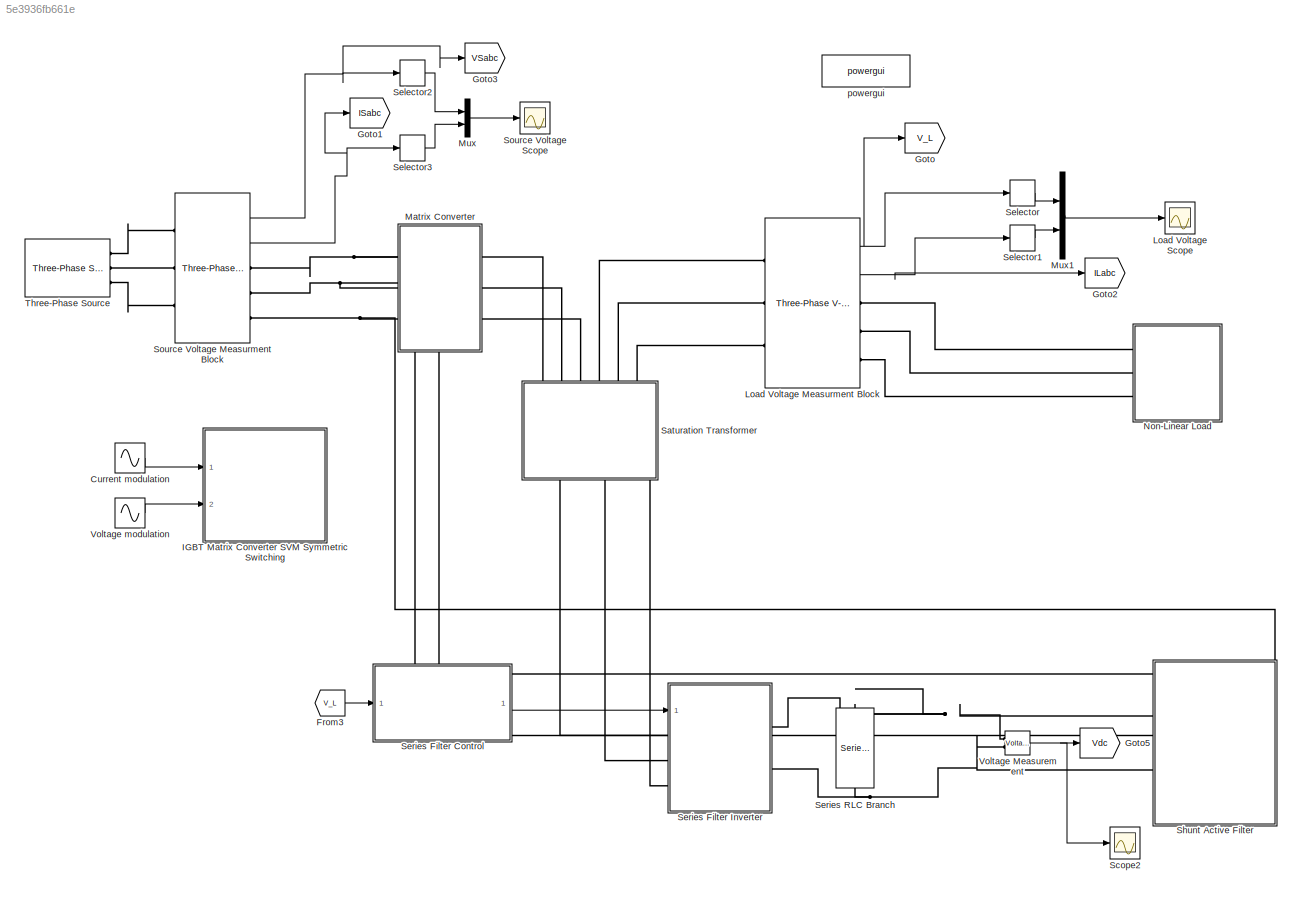
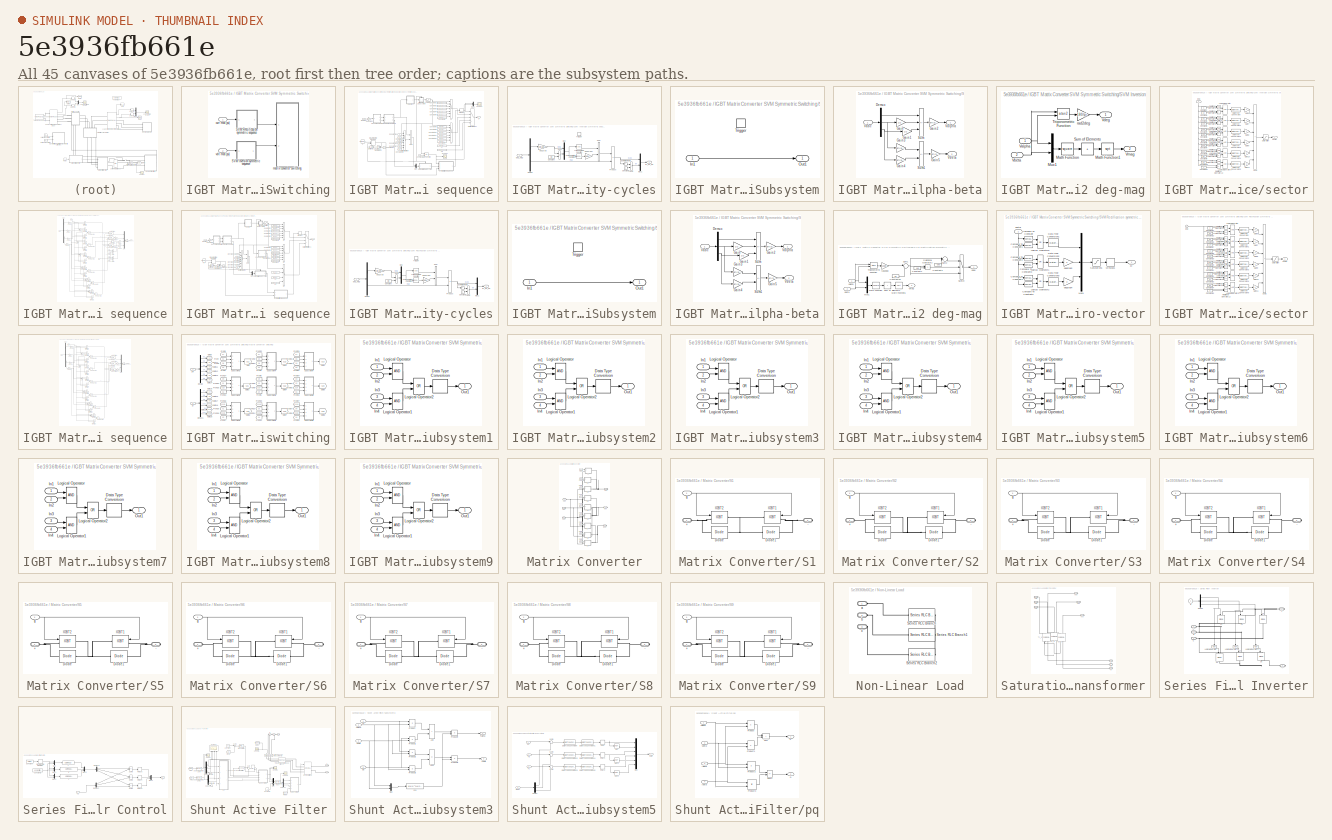
[diagram: thumbnail index - all 45 canvases of the model, root first then tree order]
MODEL slx_5e3936fb661e
KIND model
CONFIG AbsTol = auto
CONFIG EnableMultiTasking = off
CONFIG FixedStep = auto
CONFIG MaxStep = auto
CONFIG MinStep = auto
CONFIG RelTol = 1e-3
CONFIG SampleTimeConstraint = Unconstrained
CONFIG SolverName = VariableStepAuto
CONFIG StartTime = 0.0
CONFIG StopTime = 1
BLOCK [Sin] Current modulation
  Amplitude = 1*sqrt(2)/sqrt(3)
  Frequency = 2*pi*1000
  Phase = [0 -2*pi/3 2*pi/3]
  Ports = [0, 1]
  SampleTime = 0
BLOCK [From] From3
  GotoTag = V_L
  NameLocation = top
BLOCK [Goto] Goto
  GotoTag = V_L
BLOCK [Goto] Goto1
  GotoTag = ISabc
  TagVisibility = global
BLOCK [Goto] Goto2
  GotoTag = ILabc
  TagVisibility = global
BLOCK [Goto] Goto3
  GotoTag = VSabc
  TagVisibility = global
BLOCK [Goto] Goto5
  GotoTag = Vdc
  TagVisibility = global
BLOCK [SubSystem] IGBT Matrix Converter SVM Symmetric Switching
  Ports = [2]
  RequestExecContextInheritance = off
BLOCK [SubSystem] IGBT Matrix Converter SVM Symmetric Switching/SVM Inversion symmetric sequence
  Ports = [1, 1]
  RequestExecContextInheritance = off
BLOCK [SubSystem] IGBT Matrix Converter SVM Symmetric Switching/SVM Inversion symmetric sequence/Calculate duty-cycles
  Ports = [1, 1, 0, 1]
  RequestExecContextInheritance = off
  TreatAsAtomicUnit = on
BLOCK [Constant] IGBT Matrix Converter SVM Symmetric Switching/SVM Inversion symmetric sequence/Calculate duty-cycles/Constant
  Value = pi/3
BLOCK [Constant] IGBT Matrix Converter SVM Symmetric Switching/SVM Inversion symmetric sequence/Calculate duty-cycles/Constant1
BLOCK [Demux] IGBT Matrix Converter SVM Symmetric Switching/SVM Inversion symmetric sequence/Calculate duty-cycles/Demux
  Outputs = 2
  Ports = [1, 2]
BLOCK [Mux] IGBT Matrix Converter SVM Symmetric Switching/SVM Inversion symmetric sequence/Calculate duty-cycles/Mux
  DisplayOption = bar
  Inputs = 2
  Ports = [2, 1]
BLOCK [Mux] IGBT Matrix Converter SVM Symmetric Switching/SVM Inversion symmetric sequence/Calculate duty-cycles/Mux1
  DisplayOption = bar
  Inputs = 2
  Ports = [2, 1]
BLOCK [Product] IGBT Matrix Converter SVM Symmetric Switching/SVM Inversion symmetric sequence/Calculate duty-cycles/Product
  Inputs = **
  Ports = [2, 1]
  RndMeth = Zero
BLOCK [Sum] IGBT Matrix Converter SVM Symmetric Switching/SVM Inversion symmetric sequence/Calculate duty-cycles/Sum
  IconShape = rectangular
  Inputs = +-
  Ports = [2, 1]
BLOCK [Sum] IGBT Matrix Converter SVM Symmetric Switching/SVM Inversion symmetric sequence/Calculate duty-cycles/Sum of Elements
  IconShape = rectangular
  Inputs = +
  Ports = [1, 1]
BLOCK [Sum] IGBT Matrix Converter SVM Symmetric Switching/SVM Inversion symmetric sequence/Calculate duty-cycles/Sum1
  IconShape = rectangular
  Inputs = -+
  Ports = [2, 1]
BLOCK [Sum] IGBT Matrix Converter SVM Symmetric Switching/SVM Inversion symmetric sequence/Calculate duty-cycles/Sum2
  IconShape = rectangular
  Inputs = -+
  Ports = [2, 1]
BLOCK [TriggerPort] IGBT Matrix Converter SVM Symmetric Switching/SVM Inversion symmetric sequence/Calculate duty-cycles/Trigger
  Ports = []
  StatesWhenEnabling = held
  VariantControl = Variant
BLOCK [Trigonometry] IGBT Matrix Converter SVM Symmetric Switching/SVM Inversion symmetric sequence/Calculate duty-cycles/Trigonometric Function
  Operator = cos
  Ports = [1, 1]
BLOCK [Trigonometry] IGBT Matrix Converter SVM Symmetric Switching/SVM Inversion symmetric sequence/Calculate duty-cycles/Trigonometric Function1
  Ports = [1, 1]
BLOCK [Outport] IGBT Matrix Converter SVM Symmetric Switching/SVM Inversion symmetric sequence/Calculate duty-cycles/d1_d2_d0
  VectorParamsAs1DForOutWhenUnconnected = off
BLOCK [Gain] IGBT Matrix Converter SVM Symmetric Switching/SVM Inversion symmetric sequence/Calculate duty-cycles/deg2rad
  Gain = pi/180
BLOCK [Gain] IGBT Matrix Converter SVM Symmetric Switching/SVM Inversion symmetric sequence/Calculate duty-cycles/deg2rad1
  Gain = 0.5/0.866
BLOCK [Inport] IGBT Matrix Converter SVM Symmetric Switching/SVM Inversion symmetric sequence/Calculate duty-cycles/deg_mag
BLOCK [Constant] IGBT Matrix Converter SVM Symmetric Switching/SVM Inversion symmetric sequence/Constant
  Value = 2
BLOCK [Constant] IGBT Matrix Converter SVM Symmetric Switching/SVM Inversion symmetric sequence/Constant1
  Value = [1 0 0 1 0 1]
BLOCK [Constant] IGBT Matrix Converter SVM Symmetric Switching/SVM Inversion symmetric sequence/Constant10
  Value = [0 1 1 0 1 0]
BLOCK [Constant] IGBT Matrix Converter SVM Symmetric Switching/SVM Inversion symmetric sequence/Constant11
  Value = [0 1 0 1 1 0]
BLOCK [Constant] IGBT Matrix Converter SVM Symmetric Switching/SVM Inversion symmetric sequence/Constant12
  NameLocation = top
BLOCK [Constant] IGBT Matrix Converter SVM Symmetric Switching/SVM Inversion symmetric sequence/Constant13
  Value = 0
BLOCK [Constant] IGBT Matrix Converter SVM Symmetric Switching/SVM Inversion symmetric sequence/Constant14
  Value = 60
BLOCK [Constant] IGBT Matrix Converter SVM Symmetric Switching/SVM Inversion symmetric sequence/Constant15
  Value = 120
BLOCK [Constant] IGBT Matrix Converter SVM Symmetric Switching/SVM Inversion symmetric sequence/Constant16
  Value = -180
BLOCK [Constant] IGBT Matrix Converter SVM Symmetric Switching/SVM Inversion symmetric sequence/Constant17
  Value = -120
BLOCK [Constant] IGBT Matrix Converter SVM Symmetric Switching/SVM Inversion symmetric sequence/Constant18
  Value = -60
BLOCK [Constant] IGBT Matrix Converter SVM Symmetric Switching/SVM Inversion symmetric sequence/Constant19
  Value = [1 0 0 1 1 0]
BLOCK [Constant] IGBT Matrix Converter SVM Symmetric Switching/SVM Inversion symmetric sequence/Constant2
  Value = [1 0 1 0 0 1]
BLOCK [Constant] IGBT Matrix Converter SVM Symmetric Switching/SVM Inversion symmetric sequence/Constant3
  Value = [0 1 1 0 0 1]
BLOCK [Constant] IGBT Matrix Converter SVM Symmetric Switching/SVM Inversion symmetric sequence/Constant4
  Value = [0 1 1 0 1 0]
BLOCK [Constant] IGBT Matrix Converter SVM Symmetric Switching/SVM Inversion symmetric sequence/Constant5
  Value = [0 1 0 1 1 0]
BLOCK [Constant] IGBT Matrix Converter SVM Symmetric Switching/SVM Inversion symmetric sequence/Constant6
  Value = [1 0 0 1 1 0]
BLOCK [Constant] IGBT Matrix Converter SVM Symmetric Switching/SVM Inversion symmetric sequence/Constant7
  Value = [1 0 0 1 0 1]
BLOCK [Constant] IGBT Matrix Converter SVM Symmetric Switching/SVM Inversion symmetric sequence/Constant8
  Value = [1 0 1 0 0 1]
BLOCK [Constant] IGBT Matrix Converter SVM Symmetric Switching/SVM Inversion symmetric sequence/Constant9
  Value = [0 1 1 0 0 1]
BLOCK [DiscreteIntegrator] IGBT Matrix Converter SVM Symmetric Switching/SVM Inversion symmetric sequence/Discrete-Time Integrator1
  ExternalReset = rising
  ICPrevOutput = DiscIntNeverNeededParam
  ICPrevScaledInput = DiscIntNeverNeededParam
  Ports = [2, 1]
  SampleTime = 2e-6
BLOCK [Math] IGBT Matrix Converter SVM Symmetric Switching/SVM Inversion symmetric sequence/Math Function
  Operator = rem
  Ports = [2, 1]
  SignedPower = on
BLOCK [MinMax] IGBT Matrix Converter SVM Symmetric Switching/SVM Inversion symmetric sequence/MinMax
  Function = max
  Ports = [1, 1]
BLOCK [MultiPortSwitch] IGBT Matrix Converter SVM Symmetric Switching/SVM Inversion symmetric sequence/Multiport Switch
  InputSameDT = off
  Inputs = 6
  Ports = [7, 1]
  SaturateOnIntegerOverflow = off
BLOCK [MultiPortSwitch] IGBT Matrix Converter SVM Symmetric Switching/SVM Inversion symmetric sequence/Multiport Switch1
  InputSameDT = off
  Inputs = 4
  Ports = [5, 1]
  SaturateOnIntegerOverflow = off
BLOCK [Mux] IGBT Matrix Converter SVM Symmetric Switching/SVM Inversion symmetric sequence/Mux
  DisplayOption = bar
  Inputs = 2
  Ports = [2, 1]
BLOCK [Mux] IGBT Matrix Converter SVM Symmetric Switching/SVM Inversion symmetric sequence/Mux1
  DisplayOption = bar
  Inputs = 2
  Ports = [2, 1]
BLOCK [RelationalOperator] IGBT Matrix Converter SVM Symmetric Switching/SVM Inversion symmetric sequence/Relational Operator13
  NameLocation = top
  Ports = [2, 1]
BLOCK [Saturate] IGBT Matrix Converter SVM Symmetric Switching/SVM Inversion symmetric sequence/Saturation
  LowerLimit = 1
  UpperLimit = 6
BLOCK [Scope] IGBT Matrix Converter SVM Symmetric Switching/SVM Inversion symmetric sequence/Scope1
  Floating = off
  NumInputPorts = 1
  Ports = [1]
  ScopeSpecificationString = C++SS(StrPVP('Location','[188, 365, 512, 604]'),StrPVP('Open','off'),MxPVP('AxesTitles',54,'struct(''axes1'',''%<SignalLabel>'')'),StrPVP('ShowLegends','off'),StrPVP('LimitDataPoints','off'),StrPVP('DataFormat','Array'),StrPVP('Decimation','1'),StrPVP('BlockParamSampleInput','off'))
BLOCK [Scope] IGBT Matrix Converter SVM Symmetric Switching/SVM Inversion symmetric sequence/Scope2
  Floating = off
  NumInputPorts = 1
  Ports = [1]
  ScopeSpecificationString = C++SS(StrPVP('Location','[188, 365, 512, 604]'),StrPVP('Open','off'),MxPVP('AxesTitles',54,'struct(''axes1'',''%<SignalLabel>'')'),StrPVP('ShowLegends','off'),StrPVP('LimitDataPoints','off'),StrPVP('DataFormat','Array'),StrPVP('Decimation','1'),StrPVP('BlockParamSampleInput','off'))
BLOCK [Sum] IGBT Matrix Converter SVM Symmetric Switching/SVM Inversion symmetric sequence/Sum
  IconShape = rectangular
  Inputs = +-
  Ports = [2, 1]
BLOCK [SubSystem] IGBT Matrix Converter SVM Symmetric Switching/SVM Inversion symmetric sequence/Triggered Subsystem
  Ports = [1, 1, 0, 1]
  RequestExecContextInheritance = off
  TreatAsAtomicUnit = on
BLOCK [Inport] IGBT Matrix Converter SVM Symmetric Switching/SVM Inversion symmetric sequence/Triggered Subsystem/In1
BLOCK [Outport] IGBT Matrix Converter SVM Symmetric Switching/SVM Inversion symmetric sequence/Triggered Subsystem/Out1
  VectorParamsAs1DForOutWhenUnconnected = off
BLOCK [TriggerPort] IGBT Matrix Converter SVM Symmetric Switching/SVM Inversion symmetric sequence/Triggered Subsystem/Trigger
  Ports = []
  StatesWhenEnabling = held
  VariantControl = Variant
BLOCK [UnitDelay] IGBT Matrix Converter SVM Symmetric Switching/SVM Inversion symmetric sequence/Unit Delay1
  HasFrameUpgradeWarning = on
  NameLocation = top
  SampleTime = 2e-6
BLOCK [MultiPortSwitch] IGBT Matrix Converter SVM Symmetric Switching/SVM Inversion symmetric sequence/V1
  InputSameDT = off
  Inputs = 6
  Ports = [7, 1]
  SaturateOnIntegerOverflow = off
BLOCK [MultiPortSwitch] IGBT Matrix Converter SVM Symmetric Switching/SVM Inversion symmetric sequence/V2
  InputSameDT = off
  Inputs = 6
  Ports = [7, 1]
  SaturateOnIntegerOverflow = off
BLOCK [Constant] IGBT Matrix Converter SVM Symmetric Switching/SVM Inversion symmetric sequence/V7
  Value = [1 0 1 0 1 0]
BLOCK [Constant] IGBT Matrix Converter SVM Symmetric Switching/SVM Inversion symmetric sequence/V8
  Value = [0 1 0 1 0 1]
BLOCK [SubSystem] IGBT Matrix Converter SVM Symmetric Switching/SVM Inversion symmetric sequence/abc 2 alpha-beta
  Ports = [1, 2]
  RequestExecContextInheritance = off
BLOCK [Demux] IGBT Matrix Converter SVM Symmetric Switching/SVM Inversion symmetric sequence/abc 2 alpha-beta/Demux
  DisplayOption = none
  Outputs = 3
  Ports = [1, 3]
BLOCK [Gain] IGBT Matrix Converter SVM Symmetric Switching/SVM Inversion symmetric sequence/abc 2 alpha-beta/Gain
  Gain = 1/2
  OutDataTypeStr = Inherit: Same as input
  ParamDataTypeStr = Inherit: Same as input
  SaturateOnIntegerOverflow = on
BLOCK [Gain] IGBT Matrix Converter SVM Symmetric Switching/SVM Inversion symmetric sequence/abc 2 alpha-beta/Gain1
  Gain = 1/2
  OutDataTypeStr = Inherit: Same as input
  ParamDataTypeStr = Inherit: Same as input
  SaturateOnIntegerOverflow = on
BLOCK [Gain] IGBT Matrix Converter SVM Symmetric Switching/SVM Inversion symmetric sequence/abc 2 alpha-beta/Gain2
  Gain = sqrt(2/3)
  OutDataTypeStr = Inherit: Same as input
  ParamDataTypeStr = Inherit: Same as input
  SaturateOnIntegerOverflow = on
BLOCK [Gain] IGBT Matrix Converter SVM Symmetric Switching/SVM Inversion symmetric sequence/abc 2 alpha-beta/Gain3
  Gain = sqrt(3)/2
  OutDataTypeStr = Inherit: Same as input
  ParamDataTypeStr = Inherit: Same as input
  SaturateOnIntegerOverflow = on
BLOCK [Gain] IGBT Matrix Converter SVM Symmetric Switching/SVM Inversion symmetric sequence/abc 2 alpha-beta/Gain4
  Gain = sqrt(3)/2
  OutDataTypeStr = Inherit: Same as input
  ParamDataTypeStr = Inherit: Same as input
  SaturateOnIntegerOverflow = on
BLOCK [Gain] IGBT Matrix Converter SVM Symmetric Switching/SVM Inversion symmetric sequence/abc 2 alpha-beta/Gain5
  Gain = sqrt(2/3)
  OutDataTypeStr = Inherit: Same as input
  ParamDataTypeStr = Inherit: Same as input
  SaturateOnIntegerOverflow = on
BLOCK [Sum] IGBT Matrix Converter SVM Symmetric Switching/SVM Inversion symmetric sequence/abc 2 alpha-beta/Sum
  IconShape = rectangular
  InputSameDT = on
  Inputs = +--
  OutDataTypeStr = Inherit: Same as first input
  Ports = [3, 1]
  SaturateOnIntegerOverflow = on
BLOCK [Sum] IGBT Matrix Converter SVM Symmetric Switching/SVM Inversion symmetric sequence/abc 2 alpha-beta/Sum1
  IconShape = rectangular
  InputSameDT = on
  Inputs = +-
  OutDataTypeStr = Inherit: Same as first input
  Ports = [2, 1]
  SaturateOnIntegerOverflow = on
BLOCK [Inport] IGBT Matrix Converter SVM Symmetric Switching/SVM Inversion symmetric sequence/abc 2 alpha-beta/Vabc
BLOCK [Outport] IGBT Matrix Converter SVM Symmetric Switching/SVM Inversion symmetric sequence/abc 2 alpha-beta/Valpha
  VectorParamsAs1DForOutWhenUnconnected = off
BLOCK [Outport] IGBT Matrix Converter SVM Symmetric Switching/SVM Inversion symmetric sequence/abc 2 alpha-beta/Vbeta
  Port = 2
  VectorParamsAs1DForOutWhenUnconnected = off
BLOCK [SubSystem] IGBT Matrix Converter SVM Symmetric Switching/SVM Inversion symmetric sequence/alpha-beta 2 deg-mag
  Ports = [2, 2]
  RequestExecContextInheritance = off
BLOCK [Math] IGBT Matrix Converter SVM Symmetric Switching/SVM Inversion symmetric sequence/alpha-beta 2 deg-mag/Math Function
  Operator = square
  Ports = [1, 1]
  SignedPower = on
BLOCK [Math] IGBT Matrix Converter SVM Symmetric Switching/SVM Inversion symmetric sequence/alpha-beta 2 deg-mag/Math Function1
  Operator = sqrt
  Ports = [1, 1]
  SignedPower = on
BLOCK [Mux] IGBT Matrix Converter SVM Symmetric Switching/SVM Inversion symmetric sequence/alpha-beta 2 deg-mag/Mux1
  DisplayOption = bar
  Inputs = 2
  Ports = [2, 1]
BLOCK [Sum] IGBT Matrix Converter SVM Symmetric Switching/SVM Inversion symmetric sequence/alpha-beta 2 deg-mag/Sum of Elements
  IconShape = rectangular
  Inputs = +
  Ports = [1, 1]
BLOCK [Trigonometry] IGBT Matrix Converter SVM Symmetric Switching/SVM Inversion symmetric sequence/alpha-beta 2 deg-mag/Trigonometric Function
  Operator = atan2
  Ports = [2, 1]
BLOCK [Inport] IGBT Matrix Converter SVM Symmetric Switching/SVM Inversion symmetric sequence/alpha-beta 2 deg-mag/Valpha
BLOCK [Inport] IGBT Matrix Converter SVM Symmetric Switching/SVM Inversion symmetric sequence/alpha-beta 2 deg-mag/Vbeta
  Port = 2
BLOCK [Outport] IGBT Matrix Converter SVM Symmetric Switching/SVM Inversion symmetric sequence/alpha-beta 2 deg-mag/Vdeg
  VectorParamsAs1DForOutWhenUnconnected = off
BLOCK [Outport] IGBT Matrix Converter SVM Symmetric Switching/SVM Inversion symmetric sequence/alpha-beta 2 deg-mag/Vmag
  Port = 2
  VectorParamsAs1DForOutWhenUnconnected = off
BLOCK [Gain] IGBT Matrix Converter SVM Symmetric Switching/SVM Inversion symmetric sequence/alpha-beta 2 deg-mag/rad2deg
  Gain = 180/pi
  OutDataTypeStr = Inherit: Same as input
  ParamDataTypeStr = Inherit: Same as input
  SaturateOnIntegerOverflow = on
BLOCK [Gain] IGBT Matrix Converter SVM Symmetric Switching/SVM Inversion symmetric sequence/deg2rad1
  Gain = 0.866
BLOCK [Constant] IGBT Matrix Converter SVM Symmetric Switching/SVM Inversion symmetric sequence/fc
  Value = switching_freq
BLOCK [Outport] IGBT Matrix Converter SVM Symmetric Switching/SVM Inversion symmetric sequence/g
  VectorParamsAs1DForOutWhenUnconnected = off
BLOCK [Inport] IGBT Matrix Converter SVM Symmetric Switching/SVM Inversion symmetric sequence/mod (pu)
BLOCK [SubSystem] IGBT Matrix Converter SVM Symmetric Switching/SVM Inversion symmetric sequence/sector
  Ports = [1, 1]
  RequestExecContextInheritance = off
BLOCK [Constant] IGBT Matrix Converter SVM Symmetric Switching/SVM Inversion symmetric sequence/sector/Constant
  Value = 0
BLOCK [Constant] IGBT Matrix Converter SVM Symmetric Switching/SVM Inversion symmetric sequence/sector/Constant1
  Value = 60
BLOCK [Constant] IGBT Matrix Converter SVM Symmetric Switching/SVM Inversion symmetric sequence/sector/Constant10
  Value = -60
BLOCK [Constant] IGBT Matrix Converter SVM Symmetric Switching/SVM Inversion symmetric sequence/sector/Constant11
  Value = 0
BLOCK [Constant] IGBT Matrix Converter SVM Symmetric Switching/SVM Inversion symmetric sequence/sector/Constant2
  Value = 60
BLOCK [Constant] IGBT Matrix Converter SVM Symmetric Switching/SVM Inversion symmetric sequence/sector/Constant3
  Value = 120
BLOCK [Constant] IGBT Matrix Converter SVM Symmetric Switching/SVM Inversion symmetric sequence/sector/Constant4
  Value = 120
BLOCK [Constant] IGBT Matrix Converter SVM Symmetric Switching/SVM Inversion symmetric sequence/sector/Constant5
  Value = 180
BLOCK [Constant] IGBT Matrix Converter SVM Symmetric Switching/SVM Inversion symmetric sequence/sector/Constant6
  Value = -180
BLOCK [Constant] IGBT Matrix Converter SVM Symmetric Switching/SVM Inversion symmetric sequence/sector/Constant7
  Value = -120
BLOCK [Constant] IGBT Matrix Converter SVM Symmetric Switching/SVM Inversion symmetric sequence/sector/Constant8
  Value = -120
BLOCK [Constant] IGBT Matrix Converter SVM Symmetric Switching/SVM Inversion symmetric sequence/sector/Constant9
  Value = -60
BLOCK [DataTypeConversion] IGBT Matrix Converter SVM Symmetric Switching/SVM Inversion symmetric sequence/sector/Data Type Conversion
BLOCK [DataTypeConversion] IGBT Matrix Converter SVM Symmetric Switching/SVM Inversion symmetric sequence/sector/Data Type Conversion1
BLOCK [DataTypeConversion] IGBT Matrix Converter SVM Symmetric Switching/SVM Inversion symmetric sequence/sector/Data Type Conversion2
BLOCK [DataTypeConversion] IGBT Matrix Converter SVM Symmetric Switching/SVM Inversion symmetric sequence/sector/Data Type Conversion3
BLOCK [DataTypeConversion] IGBT Matrix Converter SVM Symmetric Switching/SVM Inversion symmetric sequence/sector/Data Type Conversion4
BLOCK [DataTypeConversion] IGBT Matrix Converter SVM Symmetric Switching/SVM Inversion symmetric sequence/sector/Data Type Conversion5
BLOCK [Gain] IGBT Matrix Converter SVM Symmetric Switching/SVM Inversion symmetric sequence/sector/Gain10
  Gain = 5
  OutDataTypeStr = Inherit: Same as input
  ParamDataTypeStr = Inherit: Same as input
  SaturateOnIntegerOverflow = on
BLOCK [Gain] IGBT Matrix Converter SVM Symmetric Switching/SVM Inversion symmetric sequence/sector/Gain11
  Gain = 6
  OutDataTypeStr = Inherit: Same as input
  ParamDataTypeStr = Inherit: Same as input
  SaturateOnIntegerOverflow = on
BLOCK [Gain] IGBT Matrix Converter SVM Symmetric Switching/SVM Inversion symmetric sequence/sector/Gain6
  OutDataTypeStr = Inherit: Same as input
  ParamDataTypeStr = Inherit: Same as input
  SaturateOnIntegerOverflow = on
BLOCK [Gain] IGBT Matrix Converter SVM Symmetric Switching/SVM Inversion symmetric sequence/sector/Gain7
  Gain = 2
  OutDataTypeStr = Inherit: Same as input
  ParamDataTypeStr = Inherit: Same as input
  SaturateOnIntegerOverflow = on
BLOCK [Gain] IGBT Matrix Converter SVM Symmetric Switching/SVM Inversion symmetric sequence/sector/Gain8
  Gain = 3
  OutDataTypeStr = Inherit: Same as input
  ParamDataTypeStr = Inherit: Same as input
  SaturateOnIntegerOverflow = on
BLOCK [Gain] IGBT Matrix Converter SVM Symmetric Switching/SVM Inversion symmetric sequence/sector/Gain9
  Gain = 4
  OutDataTypeStr = Inherit: Same as input
  ParamDataTypeStr = Inherit: Same as input
  SaturateOnIntegerOverflow = on
BLOCK [Logic] IGBT Matrix Converter SVM Symmetric Switching/SVM Inversion symmetric sequence/sector/Logical Operator
  Ports = [2, 1]
BLOCK [Logic] IGBT Matrix Converter SVM Symmetric Switching/SVM Inversion symmetric sequence/sector/Logical Operator1
  Ports = [2, 1]
BLOCK [Logic] IGBT Matrix Converter SVM Symmetric Switching/SVM Inversion symmetric sequence/sector/Logical Operator2
  Ports = [2, 1]
BLOCK [Logic] IGBT Matrix Converter SVM Symmetric Switching/SVM Inversion symmetric sequence/sector/Logical Operator3
  Ports = [2, 1]
BLOCK [Logic] IGBT Matrix Converter SVM Symmetric Switching/SVM Inversion symmetric sequence/sector/Logical Operator4
  Ports = [2, 1]
BLOCK [Logic] IGBT Matrix Converter SVM Symmetric Switching/SVM Inversion symmetric sequence/sector/Logical Operator5
  Ports = [2, 1]
BLOCK [RelationalOperator] IGBT Matrix Converter SVM Symmetric Switching/SVM Inversion symmetric sequence/sector/Relational Operator1
  Operator = <
  Ports = [2, 1]
BLOCK [RelationalOperator] IGBT Matrix Converter SVM Symmetric Switching/SVM Inversion symmetric sequence/sector/Relational Operator10
  Ports = [2, 1]
BLOCK [RelationalOperator] IGBT Matrix Converter SVM Symmetric Switching/SVM Inversion symmetric sequence/sector/Relational Operator11
  Ports = [2, 1]
BLOCK [RelationalOperator] IGBT Matrix Converter SVM Symmetric Switching/SVM Inversion symmetric sequence/sector/Relational Operator12
  Operator = <
  Ports = [2, 1]
BLOCK [RelationalOperator] IGBT Matrix Converter SVM Symmetric Switching/SVM Inversion symmetric sequence/sector/Relational Operator2
  Ports = [2, 1]
BLOCK [RelationalOperator] IGBT Matrix Converter SVM Symmetric Switching/SVM Inversion symmetric sequence/sector/Relational Operator3
  Operator = <
  Ports = [2, 1]
BLOCK [RelationalOperator] IGBT Matrix Converter SVM Symmetric Switching/SVM Inversion symmetric sequence/sector/Relational Operator4
  Ports = [2, 1]
BLOCK [RelationalOperator] IGBT Matrix Converter SVM Symmetric Switching/SVM Inversion symmetric sequence/sector/Relational Operator5
  Operator = <
  Ports = [2, 1]
BLOCK [RelationalOperator] IGBT Matrix Converter SVM Symmetric Switching/SVM Inversion symmetric sequence/sector/Relational Operator6
  Ports = [2, 1]
BLOCK [RelationalOperator] IGBT Matrix Converter SVM Symmetric Switching/SVM Inversion symmetric sequence/sector/Relational Operator7
  Operator = <
  Ports = [2, 1]
BLOCK [RelationalOperator] IGBT Matrix Converter SVM Symmetric Switching/SVM Inversion symmetric sequence/sector/Relational Operator8
  Ports = [2, 1]
BLOCK [RelationalOperator] IGBT Matrix Converter SVM Symmetric Switching/SVM Inversion symmetric sequence/sector/Relational Operator9
  Operator = <
  Ports = [2, 1]
BLOCK [Saturate] IGBT Matrix Converter SVM Symmetric Switching/SVM Inversion symmetric sequence/sector/Saturation
  LowerLimit = 1
  UpperLimit = 6
BLOCK [Sum] IGBT Matrix Converter SVM Symmetric Switching/SVM Inversion symmetric sequence/sector/Sum2
  IconShape = rectangular
  InputSameDT = on
  Inputs = ++++++
  OutDataTypeStr = Inherit: Same as first input
  Ports = [6, 1]
  SaturateOnIntegerOverflow = on
BLOCK [Inport] IGBT Matrix Converter SVM Symmetric Switching/SVM Inversion symmetric sequence/sector/deg
  NameLocation = right
BLOCK [Outport] IGBT Matrix Converter SVM Symmetric Switching/SVM Inversion symmetric sequence/sector/sector
  VectorParamsAs1DForOutWhenUnconnected = off
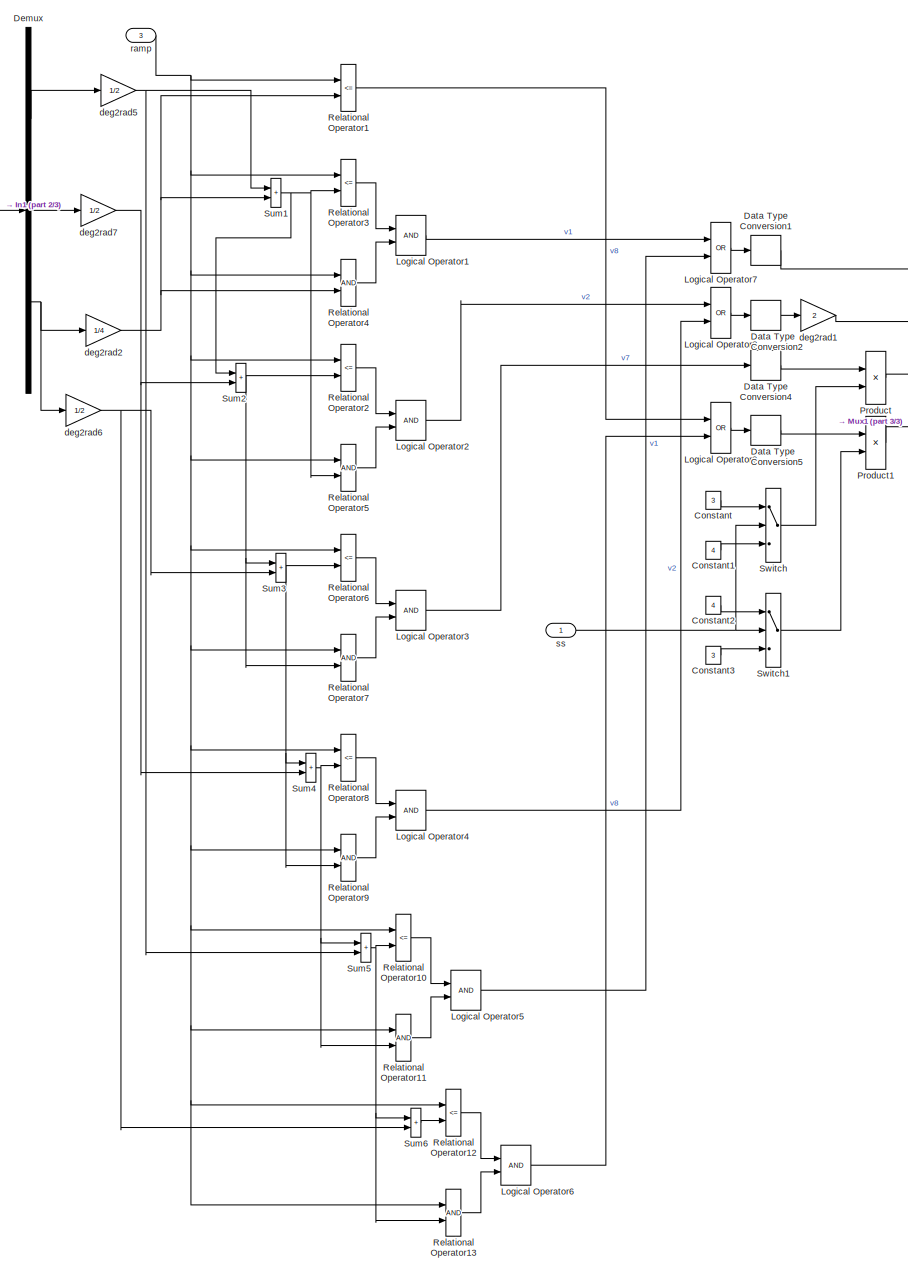
[diagram: IGBT Matrix Converter SVM Symmetric Switching/SVM Inversion symmetric sequence/symmetric sequence - part 1/3, most of the canvas]
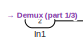
[diagram: IGBT Matrix Converter SVM Symmetric Switching/SVM Inversion symmetric sequence/symmetric sequence - part 2/3, top left region]
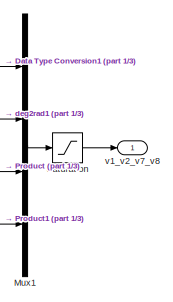
[diagram: IGBT Matrix Converter SVM Symmetric Switching/SVM Inversion symmetric sequence/symmetric sequence - part 3/3, top right region]
BLOCK [SubSystem] IGBT Matrix Converter SVM Symmetric Switching/SVM Inversion symmetric sequence/symmetric sequence
  Ports = [3, 1]
  RequestExecContextInheritance = off
BLOCK [Constant] IGBT Matrix Converter SVM Symmetric Switching/SVM Inversion symmetric sequence/symmetric sequence/Constant
  Value = 3
BLOCK [Constant] IGBT Matrix Converter SVM Symmetric Switching/SVM Inversion symmetric sequence/symmetric sequence/Constant1
  Value = 4
BLOCK [Constant] IGBT Matrix Converter SVM Symmetric Switching/SVM Inversion symmetric sequence/symmetric sequence/Constant2
  Value = 4
BLOCK [Constant] IGBT Matrix Converter SVM Symmetric Switching/SVM Inversion symmetric sequence/symmetric sequence/Constant3
  Value = 3
BLOCK [DataTypeConversion] IGBT Matrix Converter SVM Symmetric Switching/SVM Inversion symmetric sequence/symmetric sequence/Data Type Conversion1
  OutDataTypeStr = double
  RndMeth = Floor
  SaturateOnIntegerOverflow = off
BLOCK [DataTypeConversion] IGBT Matrix Converter SVM Symmetric Switching/SVM Inversion symmetric sequence/symmetric sequence/Data Type Conversion2
  OutDataTypeStr = double
  RndMeth = Floor
  SaturateOnIntegerOverflow = off
BLOCK [DataTypeConversion] IGBT Matrix Converter SVM Symmetric Switching/SVM Inversion symmetric sequence/symmetric sequence/Data Type Conversion4
  OutDataTypeStr = double
  RndMeth = Floor
  SaturateOnIntegerOverflow = off
BLOCK [DataTypeConversion] IGBT Matrix Converter SVM Symmetric Switching/SVM Inversion symmetric sequence/symmetric sequence/Data Type Conversion5
  OutDataTypeStr = double
  RndMeth = Floor
  SaturateOnIntegerOverflow = off
BLOCK [Demux] IGBT Matrix Converter SVM Symmetric Switching/SVM Inversion symmetric sequence/symmetric sequence/Demux
  Outputs = 3
  Ports = [1, 3]
BLOCK [Inport] IGBT Matrix Converter SVM Symmetric Switching/SVM Inversion symmetric sequence/symmetric sequence/In1
  Port = 2
BLOCK [Logic] IGBT Matrix Converter SVM Symmetric Switching/SVM Inversion symmetric sequence/symmetric sequence/Logical Operator1
  AllPortsSameDT = off
  OutDataTypeStr = boolean
  Ports = [2, 1]
BLOCK [Logic] IGBT Matrix Converter SVM Symmetric Switching/SVM Inversion symmetric sequence/symmetric sequence/Logical Operator2
  AllPortsSameDT = off
  OutDataTypeStr = boolean
  Ports = [2, 1]
BLOCK [Logic] IGBT Matrix Converter SVM Symmetric Switching/SVM Inversion symmetric sequence/symmetric sequence/Logical Operator3
  AllPortsSameDT = off
  OutDataTypeStr = boolean
  Ports = [2, 1]
BLOCK [Logic] IGBT Matrix Converter SVM Symmetric Switching/SVM Inversion symmetric sequence/symmetric sequence/Logical Operator4
  AllPortsSameDT = off
  OutDataTypeStr = boolean
  Ports = [2, 1]
BLOCK [Logic] IGBT Matrix Converter SVM Symmetric Switching/SVM Inversion symmetric sequence/symmetric sequence/Logical Operator5
  AllPortsSameDT = off
  OutDataTypeStr = boolean
  Ports = [2, 1]
BLOCK [Logic] IGBT Matrix Converter SVM Symmetric Switching/SVM Inversion symmetric sequence/symmetric sequence/Logical Operator6
  AllPortsSameDT = off
  OutDataTypeStr = boolean
  Ports = [2, 1]
BLOCK [Logic] IGBT Matrix Converter SVM Symmetric Switching/SVM Inversion symmetric sequence/symmetric sequence/Logical Operator7
  AllPortsSameDT = off
  Operator = OR
  OutDataTypeStr = boolean
  Ports = [2, 1]
BLOCK [Logic] IGBT Matrix Converter SVM Symmetric Switching/SVM Inversion symmetric sequence/symmetric sequence/Logical Operator8
  AllPortsSameDT = off
  Operator = OR
  OutDataTypeStr = boolean
  Ports = [2, 1]
BLOCK [Logic] IGBT Matrix Converter SVM Symmetric Switching/SVM Inversion symmetric sequence/symmetric sequence/Logical Operator9
  AllPortsSameDT = off
  Operator = OR
  OutDataTypeStr = boolean
  Ports = [2, 1]
BLOCK [Mux] IGBT Matrix Converter SVM Symmetric Switching/SVM Inversion symmetric sequence/symmetric sequence/Mux1
  DisplayOption = bar
  Ports = [4, 1]
BLOCK [Product] IGBT Matrix Converter SVM Symmetric Switching/SVM Inversion symmetric sequence/symmetric sequence/Product
  Ports = [2, 1]
  RndMeth = Zero
BLOCK [Product] IGBT Matrix Converter SVM Symmetric Switching/SVM Inversion symmetric sequence/symmetric sequence/Product1
  Ports = [2, 1]
  RndMeth = Zero
BLOCK [RelationalOperator] IGBT Matrix Converter SVM Symmetric Switching/SVM Inversion symmetric sequence/symmetric sequence/Relational Operator1
  Operator = <=
  Ports = [2, 1]
BLOCK [RelationalOperator] IGBT Matrix Converter SVM Symmetric Switching/SVM Inversion symmetric sequence/symmetric sequence/Relational Operator10
  Operator = <=
  Ports = [2, 1]
BLOCK [RelationalOperator] IGBT Matrix Converter SVM Symmetric Switching/SVM Inversion symmetric sequence/symmetric sequence/Relational Operator11
  Ports = [2, 1]
BLOCK [RelationalOperator] IGBT Matrix Converter SVM Symmetric Switching/SVM Inversion symmetric sequence/symmetric sequence/Relational Operator12
  Operator = <=
  Ports = [2, 1]
BLOCK [RelationalOperator] IGBT Matrix Converter SVM Symmetric Switching/SVM Inversion symmetric sequence/symmetric sequence/Relational Operator13
  Ports = [2, 1]
BLOCK [RelationalOperator] IGBT Matrix Converter SVM Symmetric Switching/SVM Inversion symmetric sequence/symmetric sequence/Relational Operator2
  Operator = <=
  Ports = [2, 1]
BLOCK [RelationalOperator] IGBT Matrix Converter SVM Symmetric Switching/SVM Inversion symmetric sequence/symmetric sequence/Relational Operator3
  Operator = <=
  Ports = [2, 1]
BLOCK [RelationalOperator] IGBT Matrix Converter SVM Symmetric Switching/SVM Inversion symmetric sequence/symmetric sequence/Relational Operator4
  Ports = [2, 1]
BLOCK [RelationalOperator] IGBT Matrix Converter SVM Symmetric Switching/SVM Inversion symmetric sequence/symmetric sequence/Relational Operator5
  Ports = [2, 1]
BLOCK [RelationalOperator] IGBT Matrix Converter SVM Symmetric Switching/SVM Inversion symmetric sequence/symmetric sequence/Relational Operator6
  Operator = <=
  Ports = [2, 1]
BLOCK [RelationalOperator] IGBT Matrix Converter SVM Symmetric Switching/SVM Inversion symmetric sequence/symmetric sequence/Relational Operator7
  Ports = [2, 1]
BLOCK [RelationalOperator] IGBT Matrix Converter SVM Symmetric Switching/SVM Inversion symmetric sequence/symmetric sequence/Relational Operator8
  Operator = <=
  Ports = [2, 1]
BLOCK [RelationalOperator] IGBT Matrix Converter SVM Symmetric Switching/SVM Inversion symmetric sequence/symmetric sequence/Relational Operator9
  Ports = [2, 1]
BLOCK [Saturate] IGBT Matrix Converter SVM Symmetric Switching/SVM Inversion symmetric sequence/symmetric sequence/Saturation
  LowerLimit = 1
  UpperLimit = 4
BLOCK [Sum] IGBT Matrix Converter SVM Symmetric Switching/SVM Inversion symmetric sequence/symmetric sequence/Sum1
  IconShape = rectangular
  Ports = [2, 1]
BLOCK [Sum] IGBT Matrix Converter SVM Symmetric Switching/SVM Inversion symmetric sequence/symmetric sequence/Sum2
  IconShape = rectangular
  Ports = [2, 1]
BLOCK [Sum] IGBT Matrix Converter SVM Symmetric Switching/SVM Inversion symmetric sequence/symmetric sequence/Sum3
  IconShape = rectangular
  Ports = [2, 1]
BLOCK [Sum] IGBT Matrix Converter SVM Symmetric Switching/SVM Inversion symmetric sequence/symmetric sequence/Sum4
  IconShape = rectangular
  Ports = [2, 1]
BLOCK [Sum] IGBT Matrix Converter SVM Symmetric Switching/SVM Inversion symmetric sequence/symmetric sequence/Sum5
  IconShape = rectangular
  Ports = [2, 1]
BLOCK [Sum] IGBT Matrix Converter SVM Symmetric Switching/SVM Inversion symmetric sequence/symmetric sequence/Sum6
  IconShape = rectangular
  Ports = [2, 1]
BLOCK [Switch] IGBT Matrix Converter SVM Symmetric Switching/SVM Inversion symmetric sequence/symmetric sequence/Switch
  Criteria = u2 ~= 0
  InputSameDT = off
  SaturateOnIntegerOverflow = off
BLOCK [Switch] IGBT Matrix Converter SVM Symmetric Switching/SVM Inversion symmetric sequence/symmetric sequence/Switch1
  Criteria = u2 ~= 0
  InputSameDT = off
  SaturateOnIntegerOverflow = off
BLOCK [Gain] IGBT Matrix Converter SVM Symmetric Switching/SVM Inversion symmetric sequence/symmetric sequence/deg2rad1
  Gain = 2
BLOCK [Gain] IGBT Matrix Converter SVM Symmetric Switching/SVM Inversion symmetric sequence/symmetric sequence/deg2rad2
  Gain = 1/4
BLOCK [Gain] IGBT Matrix Converter SVM Symmetric Switching/SVM Inversion symmetric sequence/symmetric sequence/deg2rad5
  Gain = 1/2
BLOCK [Gain] IGBT Matrix Converter SVM Symmetric Switching/SVM Inversion symmetric sequence/symmetric sequence/deg2rad6
  Gain = 1/2
BLOCK [Gain] IGBT Matrix Converter SVM Symmetric Switching/SVM Inversion symmetric sequence/symmetric sequence/deg2rad7
  Gain = 1/2
BLOCK [Inport] IGBT Matrix Converter SVM Symmetric Switching/SVM Inversion symmetric sequence/symmetric sequence/ramp
  Port = 3
BLOCK [Inport] IGBT Matrix Converter SVM Symmetric Switching/SVM Inversion symmetric sequence/symmetric sequence/ss
BLOCK [Outport] IGBT Matrix Converter SVM Symmetric Switching/SVM Inversion symmetric sequence/symmetric sequence/v1_v2_v7_v8
  VectorParamsAs1DForOutWhenUnconnected = off
BLOCK [SubSystem] IGBT Matrix Converter SVM Symmetric Switching/SVM Rectification symmetric sequence
  Ports = [1, 1]
  RequestExecContextInheritance = off
BLOCK [SubSystem] IGBT Matrix Converter SVM Symmetric Switching/SVM Rectification symmetric sequence/Calculate duty-cycles
  Ports = [1, 1, 0, 1]
  RequestExecContextInheritance = off
  TreatAsAtomicUnit = on
BLOCK [Constant] IGBT Matrix Converter SVM Symmetric Switching/SVM Rectification symmetric sequence/Calculate duty-cycles/Constant
  Value = pi/3
BLOCK [Constant] IGBT Matrix Converter SVM Symmetric Switching/SVM Rectification symmetric sequence/Calculate duty-cycles/Constant1
BLOCK [Demux] IGBT Matrix Converter SVM Symmetric Switching/SVM Rectification symmetric sequence/Calculate duty-cycles/Demux
  Outputs = 2
  Ports = [1, 2]
BLOCK [Mux] IGBT Matrix Converter SVM Symmetric Switching/SVM Rectification symmetric sequence/Calculate duty-cycles/Mux
  DisplayOption = bar
  Inputs = 2
  Ports = [2, 1]
BLOCK [Mux] IGBT Matrix Converter SVM Symmetric Switching/SVM Rectification symmetric sequence/Calculate duty-cycles/Mux1
  DisplayOption = bar
  Inputs = 2
  Ports = [2, 1]
BLOCK [Product] IGBT Matrix Converter SVM Symmetric Switching/SVM Rectification symmetric sequence/Calculate duty-cycles/Product
  Inputs = **
  Ports = [2, 1]
  RndMeth = Zero
BLOCK [Sum] IGBT Matrix Converter SVM Symmetric Switching/SVM Rectification symmetric sequence/Calculate duty-cycles/Sum
  IconShape = rectangular
  Inputs = +-
  Ports = [2, 1]
BLOCK [Sum] IGBT Matrix Converter SVM Symmetric Switching/SVM Rectification symmetric sequence/Calculate duty-cycles/Sum of Elements
  IconShape = rectangular
  Inputs = +
  Ports = [1, 1]
BLOCK [Sum] IGBT Matrix Converter SVM Symmetric Switching/SVM Rectification symmetric sequence/Calculate duty-cycles/Sum1
  IconShape = rectangular
  Inputs = -+
  Ports = [2, 1]
BLOCK [Sum] IGBT Matrix Converter SVM Symmetric Switching/SVM Rectification symmetric sequence/Calculate duty-cycles/Sum2
  IconShape = rectangular
  Inputs = -+
  Ports = [2, 1]
BLOCK [TriggerPort] IGBT Matrix Converter SVM Symmetric Switching/SVM Rectification symmetric sequence/Calculate duty-cycles/Trigger
  Ports = []
  StatesWhenEnabling = held
  VariantControl = Variant
BLOCK [Trigonometry] IGBT Matrix Converter SVM Symmetric Switching/SVM Rectification symmetric sequence/Calculate duty-cycles/Trigonometric Function
  Operator = cos
  Ports = [1, 1]
BLOCK [Trigonometry] IGBT Matrix Converter SVM Symmetric Switching/SVM Rectification symmetric sequence/Calculate duty-cycles/Trigonometric Function1
  Ports = [1, 1]
BLOCK [Outport] IGBT Matrix Converter SVM Symmetric Switching/SVM Rectification symmetric sequence/Calculate duty-cycles/d1_d2_d0
  VectorParamsAs1DForOutWhenUnconnected = off
BLOCK [Gain] IGBT Matrix Converter SVM Symmetric Switching/SVM Rectification symmetric sequence/Calculate duty-cycles/deg2rad
  Gain = pi/180
BLOCK [Gain] IGBT Matrix Converter SVM Symmetric Switching/SVM Rectification symmetric sequence/Calculate duty-cycles/deg2rad1
  Gain = 0.5/0.866
BLOCK [Inport] IGBT Matrix Converter SVM Symmetric Switching/SVM Rectification symmetric sequence/Calculate duty-cycles/deg_mag
BLOCK [Constant] IGBT Matrix Converter SVM Symmetric Switching/SVM Rectification symmetric sequence/Constant1
  Value = [1 0 0 1 0 0]
BLOCK [Constant] IGBT Matrix Converter SVM Symmetric Switching/SVM Rectification symmetric sequence/Constant10
  Value = [0 1 1 0 0 0]
BLOCK [Constant] IGBT Matrix Converter SVM Symmetric Switching/SVM Rectification symmetric sequence/Constant11
  Value = [0 1 0 0 1 0]
BLOCK [Constant] IGBT Matrix Converter SVM Symmetric Switching/SVM Rectification symmetric sequence/Constant12
  NameLocation = top
BLOCK [Constant] IGBT Matrix Converter SVM Symmetric Switching/SVM Rectification symmetric sequence/Constant13
  Value = 0
BLOCK [Constant] IGBT Matrix Converter SVM Symmetric Switching/SVM Rectification symmetric sequence/Constant14
  Value = 60
BLOCK [Constant] IGBT Matrix Converter SVM Symmetric Switching/SVM Rectification symmetric sequence/Constant15
  Value = 120
BLOCK [Constant] IGBT Matrix Converter SVM Symmetric Switching/SVM Rectification symmetric sequence/Constant16
  Value = 180
BLOCK [Constant] IGBT Matrix Converter SVM Symmetric Switching/SVM Rectification symmetric sequence/Constant17
  Value = -120
BLOCK [Constant] IGBT Matrix Converter SVM Symmetric Switching/SVM Rectification symmetric sequence/Constant18
  Value = -60
BLOCK [Constant] IGBT Matrix Converter SVM Symmetric Switching/SVM Rectification symmetric sequence/Constant19
  Value = [0 0 0 1 1 0]
BLOCK [Constant] IGBT Matrix Converter SVM Symmetric Switching/SVM Rectification symmetric sequence/Constant2
  Value = [1 0 0 0 0 1]
BLOCK [Constant] IGBT Matrix Converter SVM Symmetric Switching/SVM Rectification symmetric sequence/Constant3
  Value = [0 0 1 0 0 1]
BLOCK [Constant] IGBT Matrix Converter SVM Symmetric Switching/SVM Rectification symmetric sequence/Constant4
  Value = [0 1 1 0 0 0]
BLOCK [Constant] IGBT Matrix Converter SVM Symmetric Switching/SVM Rectification symmetric sequence/Constant5
  Value = [0 1 0 0 1 0]
BLOCK [Constant] IGBT Matrix Converter SVM Symmetric Switching/SVM Rectification symmetric sequence/Constant6
  Value = [0 0 0 1 1 0]
BLOCK [Constant] IGBT Matrix Converter SVM Symmetric Switching/SVM Rectification symmetric sequence/Constant7
  Value = [1 0 0 1 0 0]
BLOCK [Constant] IGBT Matrix Converter SVM Symmetric Switching/SVM Rectification symmetric sequence/Constant8
  Value = [1 0 0 0 0 1]
BLOCK [Constant] IGBT Matrix Converter SVM Symmetric Switching/SVM Rectification symmetric sequence/Constant9
  Value = [0 0 1 0 0 1]
BLOCK [DiscreteIntegrator] IGBT Matrix Converter SVM Symmetric Switching/SVM Rectification symmetric sequence/Discrete-Time Integrator1
  ExternalReset = rising
  ICPrevOutput = DiscIntNeverNeededParam
  ICPrevScaledInput = DiscIntNeverNeededParam
  Ports = [2, 1]
  SampleTime = 2e-6
BLOCK [MinMax] IGBT Matrix Converter SVM Symmetric Switching/SVM Rectification symmetric sequence/MinMax
  Function = max
  Ports = [1, 1]
BLOCK [MultiPortSwitch] IGBT Matrix Converter SVM Symmetric Switching/SVM Rectification symmetric sequence/Multiport Switch
  InputSameDT = off
  Inputs = 6
  Ports = [7, 1]
  SaturateOnIntegerOverflow = off
BLOCK [MultiPortSwitch] IGBT Matrix Converter SVM Symmetric Switching/SVM Rectification symmetric sequence/Multiport Switch1
  InputSameDT = off
  Ports = [4, 1]
  SaturateOnIntegerOverflow = off
BLOCK [Mux] IGBT Matrix Converter SVM Symmetric Switching/SVM Rectification symmetric sequence/Mux
  DisplayOption = bar
  Inputs = 2
  Ports = [2, 1]
BLOCK [RelationalOperator] IGBT Matrix Converter SVM Symmetric Switching/SVM Rectification symmetric sequence/Relational Operator13
  NameLocation = top
  Ports = [2, 1]
BLOCK [Saturate] IGBT Matrix Converter SVM Symmetric Switching/SVM Rectification symmetric sequence/Saturation
  LowerLimit = 1
  UpperLimit = 6
BLOCK [Sum] IGBT Matrix Converter SVM Symmetric Switching/SVM Rectification symmetric sequence/Sum
  IconShape = rectangular
  Inputs = +-
  Ports = [2, 1]
BLOCK [SubSystem] IGBT Matrix Converter SVM Symmetric Switching/SVM Rectification symmetric sequence/Triggered Subsystem
  Ports = [1, 1, 0, 1]
  RequestExecContextInheritance = off
  TreatAsAtomicUnit = on
BLOCK [Inport] IGBT Matrix Converter SVM Symmetric Switching/SVM Rectification symmetric sequence/Triggered Subsystem/In1
BLOCK [Outport] IGBT Matrix Converter SVM Symmetric Switching/SVM Rectification symmetric sequence/Triggered Subsystem/Out1
  VectorParamsAs1DForOutWhenUnconnected = off
BLOCK [TriggerPort] IGBT Matrix Converter SVM Symmetric Switching/SVM Rectification symmetric sequence/Triggered Subsystem/Trigger
  Ports = []
  StatesWhenEnabling = held
  VariantControl = Variant
BLOCK [UnitDelay] IGBT Matrix Converter SVM Symmetric Switching/SVM Rectification symmetric sequence/Unit Delay1
  HasFrameUpgradeWarning = on
  NameLocation = top
  SampleTime = 2e-6
BLOCK [MultiPortSwitch] IGBT Matrix Converter SVM Symmetric Switching/SVM Rectification symmetric sequence/V0
  InputSameDT = off
  Ports = [4, 1]
  SaturateOnIntegerOverflow = off
BLOCK [MultiPortSwitch] IGBT Matrix Converter SVM Symmetric Switching/SVM Rectification symmetric sequence/V1
  InputSameDT = off
  Inputs = 6
  Ports = [7, 1]
  SaturateOnIntegerOverflow = off
BLOCK [MultiPortSwitch] IGBT Matrix Converter SVM Symmetric Switching/SVM Rectification symmetric sequence/V2
  InputSameDT = off
  Inputs = 6
  Ports = [7, 1]
  SaturateOnIntegerOverflow = off
BLOCK [Constant] IGBT Matrix Converter SVM Symmetric Switching/SVM Rectification symmetric sequence/V3
  Value = [0 0 1 1 0 0]
BLOCK [Constant] IGBT Matrix Converter SVM Symmetric Switching/SVM Rectification symmetric sequence/V7
  Value = [1 1 0 0 0 0]
BLOCK [Constant] IGBT Matrix Converter SVM Symmetric Switching/SVM Rectification symmetric sequence/V8
  Value = [0 0 0 0 1 1]
BLOCK [SubSystem] IGBT Matrix Converter SVM Symmetric Switching/SVM Rectification symmetric sequence/abc 2 alpha-beta
  Ports = [1, 2]
  RequestExecContextInheritance = off
BLOCK [Demux] IGBT Matrix Converter SVM Symmetric Switching/SVM Rectification symmetric sequence/abc 2 alpha-beta/Demux
  DisplayOption = none
  Outputs = 3
  Ports = [1, 3]
BLOCK [Gain] IGBT Matrix Converter SVM Symmetric Switching/SVM Rectification symmetric sequence/abc 2 alpha-beta/Gain
  Gain = 1/2
  OutDataTypeStr = Inherit: Same as input
  ParamDataTypeStr = Inherit: Same as input
  SaturateOnIntegerOverflow = on
BLOCK [Gain] IGBT Matrix Converter SVM Symmetric Switching/SVM Rectification symmetric sequence/abc 2 alpha-beta/Gain1
  Gain = 1/2
  OutDataTypeStr = Inherit: Same as input
  ParamDataTypeStr = Inherit: Same as input
  SaturateOnIntegerOverflow = on
BLOCK [Gain] IGBT Matrix Converter SVM Symmetric Switching/SVM Rectification symmetric sequence/abc 2 alpha-beta/Gain2
  Gain = sqrt(2/3)
  OutDataTypeStr = Inherit: Same as input
  ParamDataTypeStr = Inherit: Same as input
  SaturateOnIntegerOverflow = on
BLOCK [Gain] IGBT Matrix Converter SVM Symmetric Switching/SVM Rectification symmetric sequence/abc 2 alpha-beta/Gain3
  Gain = sqrt(3)/2
  OutDataTypeStr = Inherit: Same as input
  ParamDataTypeStr = Inherit: Same as input
  SaturateOnIntegerOverflow = on
BLOCK [Gain] IGBT Matrix Converter SVM Symmetric Switching/SVM Rectification symmetric sequence/abc 2 alpha-beta/Gain4
  Gain = sqrt(3)/2
  OutDataTypeStr = Inherit: Same as input
  ParamDataTypeStr = Inherit: Same as input
  SaturateOnIntegerOverflow = on
BLOCK [Gain] IGBT Matrix Converter SVM Symmetric Switching/SVM Rectification symmetric sequence/abc 2 alpha-beta/Gain5
  Gain = sqrt(2/3)
  OutDataTypeStr = Inherit: Same as input
  ParamDataTypeStr = Inherit: Same as input
  SaturateOnIntegerOverflow = on
BLOCK [Sum] IGBT Matrix Converter SVM Symmetric Switching/SVM Rectification symmetric sequence/abc 2 alpha-beta/Sum
  IconShape = rectangular
  InputSameDT = on
  Inputs = +--
  OutDataTypeStr = Inherit: Same as first input
  Ports = [3, 1]
  SaturateOnIntegerOverflow = on
BLOCK [Sum] IGBT Matrix Converter SVM Symmetric Switching/SVM Rectification symmetric sequence/abc 2 alpha-beta/Sum1
  IconShape = rectangular
  InputSameDT = on
  Inputs = +-
  OutDataTypeStr = Inherit: Same as first input
  Ports = [2, 1]
  SaturateOnIntegerOverflow = on
BLOCK [Inport] IGBT Matrix Converter SVM Symmetric Switching/SVM Rectification symmetric sequence/abc 2 alpha-beta/Vabc
BLOCK [Outport] IGBT Matrix Converter SVM Symmetric Switching/SVM Rectification symmetric sequence/abc 2 alpha-beta/Valpha
  VectorParamsAs1DForOutWhenUnconnected = off
BLOCK [Outport] IGBT Matrix Converter SVM Symmetric Switching/SVM Rectification symmetric sequence/abc 2 alpha-beta/Vbeta
  Port = 2
  VectorParamsAs1DForOutWhenUnconnected = off
BLOCK [SubSystem] IGBT Matrix Converter SVM Symmetric Switching/SVM Rectification symmetric sequence/alpha-beta 2 deg-mag
  Ports = [2, 2]
  RequestExecContextInheritance = off
BLOCK [Constant] IGBT Matrix Converter SVM Symmetric Switching/SVM Rectification symmetric sequence/alpha-beta 2 deg-mag/Constant1
  Value = 180
BLOCK [Constant] IGBT Matrix Converter SVM Symmetric Switching/SVM Rectification symmetric sequence/alpha-beta 2 deg-mag/Constant2
  Value = -360
BLOCK [Constant] IGBT Matrix Converter SVM Symmetric Switching/SVM Rectification symmetric sequence/alpha-beta 2 deg-mag/Constant20
  Value = 30
BLOCK [Math] IGBT Matrix Converter SVM Symmetric Switching/SVM Rectification symmetric sequence/alpha-beta 2 deg-mag/Math Function
  Operator = square
  Ports = [1, 1]
  SignedPower = on
BLOCK [Math] IGBT Matrix Converter SVM Symmetric Switching/SVM Rectification symmetric sequence/alpha-beta 2 deg-mag/Math Function1
  Operator = sqrt
  Ports = [1, 1]
  SignedPower = on
BLOCK [Mux] IGBT Matrix Converter SVM Symmetric Switching/SVM Rectification symmetric sequence/alpha-beta 2 deg-mag/Mux1
  DisplayOption = bar
  Inputs = 2
  Ports = [2, 1]
BLOCK [RelationalOperator] IGBT Matrix Converter SVM Symmetric Switching/SVM Rectification symmetric sequence/alpha-beta 2 deg-mag/Relational Operator2
  Operator = >
  Ports = [2, 1]
BLOCK [Sum] IGBT Matrix Converter SVM Symmetric Switching/SVM Rectification symmetric sequence/alpha-beta 2 deg-mag/Sum of Elements
  IconShape = rectangular
  Inputs = +
  Ports = [1, 1]
BLOCK [Sum] IGBT Matrix Converter SVM Symmetric Switching/SVM Rectification symmetric sequence/alpha-beta 2 deg-mag/Sum1
  Inputs = |++
  Ports = [2, 1]
BLOCK [Sum] IGBT Matrix Converter SVM Symmetric Switching/SVM Rectification symmetric sequence/alpha-beta 2 deg-mag/Sum2
  Inputs = |++
  Ports = [2, 1]
BLOCK [Switch] IGBT Matrix Converter SVM Symmetric Switching/SVM Rectification symmetric sequence/alpha-beta 2 deg-mag/Switch
  Criteria = u2 ~= 0
  InputSameDT = off
  SaturateOnIntegerOverflow = off
BLOCK [Trigonometry] IGBT Matrix Converter SVM Symmetric Switching/SVM Rectification symmetric sequence/alpha-beta 2 deg-mag/Trigonometric Function
  Operator = atan2
  Ports = [2, 1]
BLOCK [Inport] IGBT Matrix Converter SVM Symmetric Switching/SVM Rectification symmetric sequence/alpha-beta 2 deg-mag/Valpha
BLOCK [Inport] IGBT Matrix Converter SVM Symmetric Switching/SVM Rectification symmetric sequence/alpha-beta 2 deg-mag/Vbeta
  Port = 2
BLOCK [Outport] IGBT Matrix Converter SVM Symmetric Switching/SVM Rectification symmetric sequence/alpha-beta 2 deg-mag/Vdeg
  VectorParamsAs1DForOutWhenUnconnected = off
BLOCK [Outport] IGBT Matrix Converter SVM Symmetric Switching/SVM Rectification symmetric sequence/alpha-beta 2 deg-mag/Vmag
  Port = 2
  VectorParamsAs1DForOutWhenUnconnected = off
BLOCK [Gain] IGBT Matrix Converter SVM Symmetric Switching/SVM Rectification symmetric sequence/alpha-beta 2 deg-mag/rad2deg
  Gain = 180/pi
  OutDataTypeStr = Inherit: Same as input
  ParamDataTypeStr = Inherit: Same as input
  SaturateOnIntegerOverflow = on
BLOCK [SubSystem] IGBT Matrix Converter SVM Symmetric Switching/SVM Rectification symmetric sequence/choose zero-vector
  NameLocation = top
  Ports = [1, 1]
  RequestExecContextInheritance = off
BLOCK [Reference] IGBT Matrix Converter SVM Symmetric Switching/SVM Rectification symmetric sequence/choose zero-vector/Compare To Constant  REF=simulink/Logic and Bit
Operations/Compare
To Constant
  Ports = [1, 1]
  SourceBlock = simulink/Logic and Bit\nOperations/Compare\nTo Constant
  SourceProductBaseCode = SL
  SourceType = Compare To Constant
BLOCK [Reference] IGBT Matrix Converter SVM Symmetric Switching/SVM Rectification symmetric sequence/choose zero-vector/Compare To Constant1  REF=simulink/Logic and Bit
Operations/Compare
To Constant
  Ports = [1, 1]
  SourceBlock = simulink/Logic and Bit\nOperations/Compare\nTo Constant
  SourceProductBaseCode = SL
  SourceType = Compare To Constant
BLOCK [Reference] IGBT Matrix Converter SVM Symmetric Switching/SVM Rectification symmetric sequence/choose zero-vector/Compare To Constant2  REF=simulink/Logic and Bit
Operations/Compare
To Constant
  Ports = [1, 1]
  SourceBlock = simulink/Logic and Bit\nOperations/Compare\nTo Constant
  SourceProductBaseCode = SL
  SourceType = Compare To Constant
BLOCK [Reference] IGBT Matrix Converter SVM Symmetric Switching/SVM Rectification symmetric sequence/choose zero-vector/Compare To Constant3  REF=simulink/Logic and Bit
Operations/Compare
To Constant
  Ports = [1, 1]
  SourceBlock = simulink/Logic and Bit\nOperations/Compare\nTo Constant
  SourceProductBaseCode = SL
  SourceType = Compare To Constant
BLOCK [Reference] IGBT Matrix Converter SVM Symmetric Switching/SVM Rectification symmetric sequence/choose zero-vector/Compare To Constant4  REF=simulink/Logic and Bit
Operations/Compare
To Constant
  Ports = [1, 1]
  SourceBlock = simulink/Logic and Bit\nOperations/Compare\nTo Constant
  SourceProductBaseCode = SL
  SourceType = Compare To Constant
BLOCK [Reference] IGBT Matrix Converter SVM Symmetric Switching/SVM Rectification symmetric sequence/choose zero-vector/Compare To Constant5  REF=simulink/Logic and Bit
Operations/Compare
To Constant
  Ports = [1, 1]
  SourceBlock = simulink/Logic and Bit\nOperations/Compare\nTo Constant
  SourceProductBaseCode = SL
  SourceType = Compare To Constant
BLOCK [DataTypeConversion] IGBT Matrix Converter SVM Symmetric Switching/SVM Rectification symmetric sequence/choose zero-vector/Data Type Conversion1
  OutDataTypeStr = double
  RndMeth = Floor
  SaturateOnIntegerOverflow = off
BLOCK [DataTypeConversion] IGBT Matrix Converter SVM Symmetric Switching/SVM Rectification symmetric sequence/choose zero-vector/Data Type Conversion2
  OutDataTypeStr = double
  RndMeth = Floor
  SaturateOnIntegerOverflow = off
BLOCK [DataTypeConversion] IGBT Matrix Converter SVM Symmetric Switching/SVM Rectification symmetric sequence/choose zero-vector/Data Type Conversion3
  OutDataTypeStr = double
  RndMeth = Floor
  SaturateOnIntegerOverflow = off
BLOCK [Logic] IGBT Matrix Converter SVM Symmetric Switching/SVM Rectification symmetric sequence/choose zero-vector/Logical Operator1
  AllPortsSameDT = off
  Operator = OR
  OutDataTypeStr = boolean
  Ports = [2, 1]
BLOCK [Logic] IGBT Matrix Converter SVM Symmetric Switching/SVM Rectification symmetric sequence/choose zero-vector/Logical Operator2
  AllPortsSameDT = off
  Operator = OR
  OutDataTypeStr = boolean
  Ports = [2, 1]
BLOCK [Logic] IGBT Matrix Converter SVM Symmetric Switching/SVM Rectification symmetric sequence/choose zero-vector/Logical Operator8
  AllPortsSameDT = off
  Operator = OR
  OutDataTypeStr = boolean
  Ports = [2, 1]
BLOCK [MinMax] IGBT Matrix Converter SVM Symmetric Switching/SVM Rectification symmetric sequence/choose zero-vector/MinMax1
  Function = max
  Ports = [1, 1]
BLOCK [Mux] IGBT Matrix Converter SVM Symmetric Switching/SVM Rectification symmetric sequence/choose zero-vector/Mux1
  DisplayOption = bar
  Inputs = 3
  Ports = [3, 1]
BLOCK [Saturate] IGBT Matrix Converter SVM Symmetric Switching/SVM Rectification symmetric sequence/choose zero-vector/Saturation1
  LowerLimit = 1
  UpperLimit = 3
BLOCK [Gain] IGBT Matrix Converter SVM Symmetric Switching/SVM Rectification symmetric sequence/choose zero-vector/deg2rad2
  Gain = 2
BLOCK [Gain] IGBT Matrix Converter SVM Symmetric Switching/SVM Rectification symmetric sequence/choose zero-vector/deg2rad4
  Gain = 3
BLOCK [Inport] IGBT Matrix Converter SVM Symmetric Switching/SVM Rectification symmetric sequence/choose zero-vector/sector
  NameLocation = right
BLOCK [Outport] IGBT Matrix Converter SVM Symmetric Switching/SVM Rectification symmetric sequence/choose zero-vector/zv
  VectorParamsAs1DForOutWhenUnconnected = off
BLOCK [Gain] IGBT Matrix Converter SVM Symmetric Switching/SVM Rectification symmetric sequence/deg2rad1
  Gain = 0.866
BLOCK [Constant] IGBT Matrix Converter SVM Symmetric Switching/SVM Rectification symmetric sequence/fc
  Value = switching_freq
BLOCK [Outport] IGBT Matrix Converter SVM Symmetric Switching/SVM Rectification symmetric sequence/g
  VectorParamsAs1DForOutWhenUnconnected = off
BLOCK [Inport] IGBT Matrix Converter SVM Symmetric Switching/SVM Rectification symmetric sequence/mod (pu)
BLOCK [SubSystem] IGBT Matrix Converter SVM Symmetric Switching/SVM Rectification symmetric sequence/sector
  Ports = [1, 1]
  RequestExecContextInheritance = off
BLOCK [Constant] IGBT Matrix Converter SVM Symmetric Switching/SVM Rectification symmetric sequence/sector/Constant12
  Value = 0
BLOCK [Constant] IGBT Matrix Converter SVM Symmetric Switching/SVM Rectification symmetric sequence/sector/Constant13
  Value = 60
BLOCK [Constant] IGBT Matrix Converter SVM Symmetric Switching/SVM Rectification symmetric sequence/sector/Constant14
  Value = -60
BLOCK [Constant] IGBT Matrix Converter SVM Symmetric Switching/SVM Rectification symmetric sequence/sector/Constant15
  Value = 0
BLOCK [Constant] IGBT Matrix Converter SVM Symmetric Switching/SVM Rectification symmetric sequence/sector/Constant16
  Value = 60
BLOCK [Constant] IGBT Matrix Converter SVM Symmetric Switching/SVM Rectification symmetric sequence/sector/Constant17
  Value = 120
BLOCK [Constant] IGBT Matrix Converter SVM Symmetric Switching/SVM Rectification symmetric sequence/sector/Constant18
  Value = 120
BLOCK [Constant] IGBT Matrix Converter SVM Symmetric Switching/SVM Rectification symmetric sequence/sector/Constant19
  Value = 180
BLOCK [Constant] IGBT Matrix Converter SVM Symmetric Switching/SVM Rectification symmetric sequence/sector/Constant20
  Value = -180
BLOCK [Constant] IGBT Matrix Converter SVM Symmetric Switching/SVM Rectification symmetric sequence/sector/Constant21
  Value = -120
BLOCK [Constant] IGBT Matrix Converter SVM Symmetric Switching/SVM Rectification symmetric sequence/sector/Constant22
  Value = -120
BLOCK [Constant] IGBT Matrix Converter SVM Symmetric Switching/SVM Rectification symmetric sequence/sector/Constant23
  Value = -60
BLOCK [DataTypeConversion] IGBT Matrix Converter SVM Symmetric Switching/SVM Rectification symmetric sequence/sector/Data Type Conversion
BLOCK [DataTypeConversion] IGBT Matrix Converter SVM Symmetric Switching/SVM Rectification symmetric sequence/sector/Data Type Conversion1
BLOCK [DataTypeConversion] IGBT Matrix Converter SVM Symmetric Switching/SVM Rectification symmetric sequence/sector/Data Type Conversion2
BLOCK [DataTypeConversion] IGBT Matrix Converter SVM Symmetric Switching/SVM Rectification symmetric sequence/sector/Data Type Conversion3
BLOCK [DataTypeConversion] IGBT Matrix Converter SVM Symmetric Switching/SVM Rectification symmetric sequence/sector/Data Type Conversion4
BLOCK [DataTypeConversion] IGBT Matrix Converter SVM Symmetric Switching/SVM Rectification symmetric sequence/sector/Data Type Conversion5
BLOCK [Gain] IGBT Matrix Converter SVM Symmetric Switching/SVM Rectification symmetric sequence/sector/Gain10
  Gain = 5
  OutDataTypeStr = Inherit: Same as input
  ParamDataTypeStr = Inherit: Same as input
  SaturateOnIntegerOverflow = on
BLOCK [Gain] IGBT Matrix Converter SVM Symmetric Switching/SVM Rectification symmetric sequence/sector/Gain11
  Gain = 6
  OutDataTypeStr = Inherit: Same as input
  ParamDataTypeStr = Inherit: Same as input
  SaturateOnIntegerOverflow = on
BLOCK [Gain] IGBT Matrix Converter SVM Symmetric Switching/SVM Rectification symmetric sequence/sector/Gain6
  OutDataTypeStr = Inherit: Same as input
  ParamDataTypeStr = Inherit: Same as input
  SaturateOnIntegerOverflow = on
BLOCK [Gain] IGBT Matrix Converter SVM Symmetric Switching/SVM Rectification symmetric sequence/sector/Gain7
  Gain = 2
  OutDataTypeStr = Inherit: Same as input
  ParamDataTypeStr = Inherit: Same as input
  SaturateOnIntegerOverflow = on
BLOCK [Gain] IGBT Matrix Converter SVM Symmetric Switching/SVM Rectification symmetric sequence/sector/Gain8
  Gain = 3
  OutDataTypeStr = Inherit: Same as input
  ParamDataTypeStr = Inherit: Same as input
  SaturateOnIntegerOverflow = on
BLOCK [Gain] IGBT Matrix Converter SVM Symmetric Switching/SVM Rectification symmetric sequence/sector/Gain9
  Gain = 4
  OutDataTypeStr = Inherit: Same as input
  ParamDataTypeStr = Inherit: Same as input
  SaturateOnIntegerOverflow = on
BLOCK [Logic] IGBT Matrix Converter SVM Symmetric Switching/SVM Rectification symmetric sequence/sector/Logical Operator
  Ports = [2, 1]
BLOCK [Logic] IGBT Matrix Converter SVM Symmetric Switching/SVM Rectification symmetric sequence/sector/Logical Operator1
  Ports = [2, 1]
BLOCK [Logic] IGBT Matrix Converter SVM Symmetric Switching/SVM Rectification symmetric sequence/sector/Logical Operator2
  Ports = [2, 1]
BLOCK [Logic] IGBT Matrix Converter SVM Symmetric Switching/SVM Rectification symmetric sequence/sector/Logical Operator3
  Ports = [2, 1]
BLOCK [Logic] IGBT Matrix Converter SVM Symmetric Switching/SVM Rectification symmetric sequence/sector/Logical Operator4
  Ports = [2, 1]
BLOCK [Logic] IGBT Matrix Converter SVM Symmetric Switching/SVM Rectification symmetric sequence/sector/Logical Operator5
  Ports = [2, 1]
BLOCK [RelationalOperator] IGBT Matrix Converter SVM Symmetric Switching/SVM Rectification symmetric sequence/sector/Relational Operator1
  Operator = <=
  Ports = [2, 1]
BLOCK [RelationalOperator] IGBT Matrix Converter SVM Symmetric Switching/SVM Rectification symmetric sequence/sector/Relational Operator10
  Operator = >
  Ports = [2, 1]
BLOCK [RelationalOperator] IGBT Matrix Converter SVM Symmetric Switching/SVM Rectification symmetric sequence/sector/Relational Operator11
  Operator = >
  Ports = [2, 1]
BLOCK [RelationalOperator] IGBT Matrix Converter SVM Symmetric Switching/SVM Rectification symmetric sequence/sector/Relational Operator12
  Operator = <=
  Ports = [2, 1]
BLOCK [RelationalOperator] IGBT Matrix Converter SVM Symmetric Switching/SVM Rectification symmetric sequence/sector/Relational Operator2
  Operator = >
  Ports = [2, 1]
BLOCK [RelationalOperator] IGBT Matrix Converter SVM Symmetric Switching/SVM Rectification symmetric sequence/sector/Relational Operator3
  Operator = <=
  Ports = [2, 1]
BLOCK [RelationalOperator] IGBT Matrix Converter SVM Symmetric Switching/SVM Rectification symmetric sequence/sector/Relational Operator4
  Operator = >
  Ports = [2, 1]
BLOCK [RelationalOperator] IGBT Matrix Converter SVM Symmetric Switching/SVM Rectification symmetric sequence/sector/Relational Operator5
  Operator = <=
  Ports = [2, 1]
BLOCK [RelationalOperator] IGBT Matrix Converter SVM Symmetric Switching/SVM Rectification symmetric sequence/sector/Relational Operator6
  Operator = >
  Ports = [2, 1]
BLOCK [RelationalOperator] IGBT Matrix Converter SVM Symmetric Switching/SVM Rectification symmetric sequence/sector/Relational Operator7
  Operator = <=
  Ports = [2, 1]
BLOCK [RelationalOperator] IGBT Matrix Converter SVM Symmetric Switching/SVM Rectification symmetric sequence/sector/Relational Operator8
  Operator = >
  Ports = [2, 1]
BLOCK [RelationalOperator] IGBT Matrix Converter SVM Symmetric Switching/SVM Rectification symmetric sequence/sector/Relational Operator9
  Operator = <=
  Ports = [2, 1]
BLOCK [Saturate] IGBT Matrix Converter SVM Symmetric Switching/SVM Rectification symmetric sequence/sector/Saturation
  LowerLimit = 1
  UpperLimit = 6
BLOCK [Sum] IGBT Matrix Converter SVM Symmetric Switching/SVM Rectification symmetric sequence/sector/Sum2
  IconShape = rectangular
  InputSameDT = on
  Inputs = ++++++
  OutDataTypeStr = Inherit: Same as first input
  Ports = [6, 1]
  SaturateOnIntegerOverflow = on
BLOCK [Inport] IGBT Matrix Converter SVM Symmetric Switching/SVM Rectification symmetric sequence/sector/deg
  NameLocation = top
BLOCK [Outport] IGBT Matrix Converter SVM Symmetric Switching/SVM Rectification symmetric sequence/sector/sector
  VectorParamsAs1DForOutWhenUnconnected = off
BLOCK [SubSystem] IGBT Matrix Converter SVM Symmetric Switching/SVM Rectification symmetric sequence/symmetric sequence
  Ports = [2, 1]
  RequestExecContextInheritance = off
BLOCK [DataTypeConversion] IGBT Matrix Converter SVM Symmetric Switching/SVM Rectification symmetric sequence/symmetric sequence/Data Type Conversion1
  OutDataTypeStr = double
  RndMeth = Floor
  SaturateOnIntegerOverflow = off
BLOCK [DataTypeConversion] IGBT Matrix Converter SVM Symmetric Switching/SVM Rectification symmetric sequence/symmetric sequence/Data Type Conversion2
  OutDataTypeStr = double
  RndMeth = Floor
  SaturateOnIntegerOverflow = off
BLOCK [DataTypeConversion] IGBT Matrix Converter SVM Symmetric Switching/SVM Rectification symmetric sequence/symmetric sequence/Data Type Conversion5
  OutDataTypeStr = double
  RndMeth = Floor
  SaturateOnIntegerOverflow = off
BLOCK [Demux] IGBT Matrix Converter SVM Symmetric Switching/SVM Rectification symmetric sequence/symmetric sequence/Demux
  Outputs = 3
  Ports = [1, 3]
BLOCK [Inport] IGBT Matrix Converter SVM Symmetric Switching/SVM Rectification symmetric sequence/symmetric sequence/In1
BLOCK [Logic] IGBT Matrix Converter SVM Symmetric Switching/SVM Rectification symmetric sequence/symmetric sequence/Logical Operator1
  AllPortsSameDT = off
  OutDataTypeStr = boolean
  Ports = [2, 1]
BLOCK [Logic] IGBT Matrix Converter SVM Symmetric Switching/SVM Rectification symmetric sequence/symmetric sequence/Logical Operator2
  AllPortsSameDT = off
  OutDataTypeStr = boolean
  Ports = [2, 1]
BLOCK [Logic] IGBT Matrix Converter SVM Symmetric Switching/SVM Rectification symmetric sequence/symmetric sequence/Logical Operator3
  AllPortsSameDT = off
  OutDataTypeStr = boolean
  Ports = [2, 1]
BLOCK [Logic] IGBT Matrix Converter SVM Symmetric Switching/SVM Rectification symmetric sequence/symmetric sequence/Logical Operator4
  AllPortsSameDT = off
  OutDataTypeStr = boolean
  Ports = [2, 1]
BLOCK [Logic] IGBT Matrix Converter SVM Symmetric Switching/SVM Rectification symmetric sequence/symmetric sequence/Logical Operator5
  AllPortsSameDT = off
  OutDataTypeStr = boolean
  Ports = [2, 1]
BLOCK [Logic] IGBT Matrix Converter SVM Symmetric Switching/SVM Rectification symmetric sequence/symmetric sequence/Logical Operator6
  AllPortsSameDT = off
  OutDataTypeStr = boolean
  Ports = [2, 1]
BLOCK [Logic] IGBT Matrix Converter SVM Symmetric Switching/SVM Rectification symmetric sequence/symmetric sequence/Logical Operator7
  AllPortsSameDT = off
  Operator = OR
  OutDataTypeStr = boolean
  Ports = [2, 1]
BLOCK [Logic] IGBT Matrix Converter SVM Symmetric Switching/SVM Rectification symmetric sequence/symmetric sequence/Logical Operator8
  AllPortsSameDT = off
  Operator = OR
  OutDataTypeStr = boolean
  Ports = [2, 1]
BLOCK [Logic] IGBT Matrix Converter SVM Symmetric Switching/SVM Rectification symmetric sequence/symmetric sequence/Logical Operator9
  AllPortsSameDT = off
  Inputs = 3
  Operator = OR
  OutDataTypeStr = boolean
  Ports = [3, 1]
BLOCK [Mux] IGBT Matrix Converter SVM Symmetric Switching/SVM Rectification symmetric sequence/symmetric sequence/Mux1
  DisplayOption = bar
  Inputs = 3
  Ports = [3, 1]
BLOCK [RelationalOperator] IGBT Matrix Converter SVM Symmetric Switching/SVM Rectification symmetric sequence/symmetric sequence/Relational Operator1
  Operator = <=
  Ports = [2, 1]
BLOCK [RelationalOperator] IGBT Matrix Converter SVM Symmetric Switching/SVM Rectification symmetric sequence/symmetric sequence/Relational Operator10
  Operator = <=
  Ports = [2, 1]
BLOCK [RelationalOperator] IGBT Matrix Converter SVM Symmetric Switching/SVM Rectification symmetric sequence/symmetric sequence/Relational Operator11
  Ports = [2, 1]
BLOCK [RelationalOperator] IGBT Matrix Converter SVM Symmetric Switching/SVM Rectification symmetric sequence/symmetric sequence/Relational Operator12
  Operator = <=
  Ports = [2, 1]
BLOCK [RelationalOperator] IGBT Matrix Converter SVM Symmetric Switching/SVM Rectification symmetric sequence/symmetric sequence/Relational Operator13
  Ports = [2, 1]
BLOCK [RelationalOperator] IGBT Matrix Converter SVM Symmetric Switching/SVM Rectification symmetric sequence/symmetric sequence/Relational Operator2
  Operator = <=
  Ports = [2, 1]
BLOCK [RelationalOperator] IGBT Matrix Converter SVM Symmetric Switching/SVM Rectification symmetric sequence/symmetric sequence/Relational Operator3
  Operator = <=
  Ports = [2, 1]
BLOCK [RelationalOperator] IGBT Matrix Converter SVM Symmetric Switching/SVM Rectification symmetric sequence/symmetric sequence/Relational Operator4
  Ports = [2, 1]
BLOCK [RelationalOperator] IGBT Matrix Converter SVM Symmetric Switching/SVM Rectification symmetric sequence/symmetric sequence/Relational Operator5
  Ports = [2, 1]
BLOCK [RelationalOperator] IGBT Matrix Converter SVM Symmetric Switching/SVM Rectification symmetric sequence/symmetric sequence/Relational Operator6
  Operator = <=
  Ports = [2, 1]
BLOCK [RelationalOperator] IGBT Matrix Converter SVM Symmetric Switching/SVM Rectification symmetric sequence/symmetric sequence/Relational Operator7
  Ports = [2, 1]
BLOCK [RelationalOperator] IGBT Matrix Converter SVM Symmetric Switching/SVM Rectification symmetric sequence/symmetric sequence/Relational Operator8
  Operator = <=
  Ports = [2, 1]
BLOCK [RelationalOperator] IGBT Matrix Converter SVM Symmetric Switching/SVM Rectification symmetric sequence/symmetric sequence/Relational Operator9
  Ports = [2, 1]
BLOCK [Saturate] IGBT Matrix Converter SVM Symmetric Switching/SVM Rectification symmetric sequence/symmetric sequence/Saturation
  LowerLimit = 1
  UpperLimit = 3
BLOCK [Sum] IGBT Matrix Converter SVM Symmetric Switching/SVM Rectification symmetric sequence/symmetric sequence/Sum1
  IconShape = rectangular
  Ports = [2, 1]
BLOCK [Sum] IGBT Matrix Converter SVM Symmetric Switching/SVM Rectification symmetric sequence/symmetric sequence/Sum2
  IconShape = rectangular
  Ports = [2, 1]
BLOCK [Sum] IGBT Matrix Converter SVM Symmetric Switching/SVM Rectification symmetric sequence/symmetric sequence/Sum3
  IconShape = rectangular
  Ports = [2, 1]
BLOCK [Sum] IGBT Matrix Converter SVM Symmetric Switching/SVM Rectification symmetric sequence/symmetric sequence/Sum4
  IconShape = rectangular
  Ports = [2, 1]
BLOCK [Sum] IGBT Matrix Converter SVM Symmetric Switching/SVM Rectification symmetric sequence/symmetric sequence/Sum5
  IconShape = rectangular
  Ports = [2, 1]
BLOCK [Sum] IGBT Matrix Converter SVM Symmetric Switching/SVM Rectification symmetric sequence/symmetric sequence/Sum6
  IconShape = rectangular
  Ports = [2, 1]
BLOCK [Gain] IGBT Matrix Converter SVM Symmetric Switching/SVM Rectification symmetric sequence/symmetric sequence/deg2rad1
  Gain = 2
BLOCK [Gain] IGBT Matrix Converter SVM Symmetric Switching/SVM Rectification symmetric sequence/symmetric sequence/deg2rad2
  Gain = 1/4
BLOCK [Gain] IGBT Matrix Converter SVM Symmetric Switching/SVM Rectification symmetric sequence/symmetric sequence/deg2rad4
  Gain = 3
BLOCK [Gain] IGBT Matrix Converter SVM Symmetric Switching/SVM Rectification symmetric sequence/symmetric sequence/deg2rad5
  Gain = 1/2
BLOCK [Gain] IGBT Matrix Converter SVM Symmetric Switching/SVM Rectification symmetric sequence/symmetric sequence/deg2rad6
  Gain = 1/2
BLOCK [Gain] IGBT Matrix Converter SVM Symmetric Switching/SVM Rectification symmetric sequence/symmetric sequence/deg2rad7
  Gain = 1/2
BLOCK [Inport] IGBT Matrix Converter SVM Symmetric Switching/SVM Rectification symmetric sequence/symmetric sequence/ramp
  Port = 2
BLOCK [Outport] IGBT Matrix Converter SVM Symmetric Switching/SVM Rectification symmetric sequence/symmetric sequence/v1_v2_v0
  VectorParamsAs1DForOutWhenUnconnected = off
BLOCK [Inport] IGBT Matrix Converter SVM Symmetric Switching/curr mod (pu)
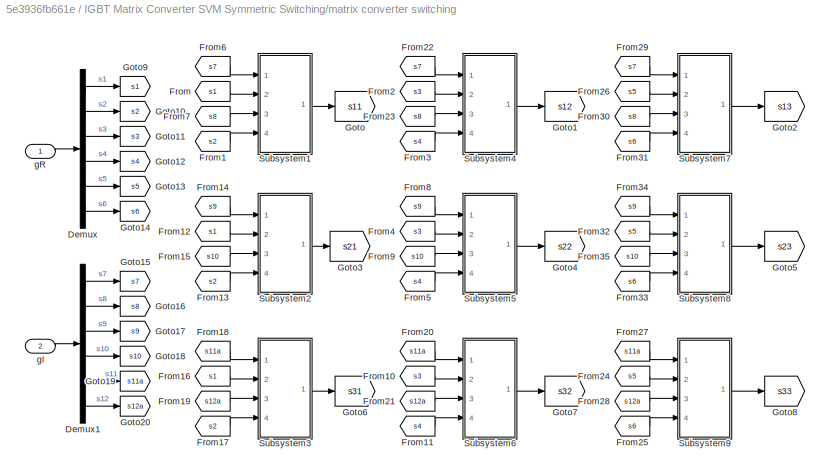
BLOCK [SubSystem] IGBT Matrix Converter SVM Symmetric Switching/matrix converter switching
  Ports = [2]
  RequestExecContextInheritance = off
BLOCK [Demux] IGBT Matrix Converter SVM Symmetric Switching/matrix converter switching/Demux
  Outputs = 6
  Ports = [1, 6]
BLOCK [Demux] IGBT Matrix Converter SVM Symmetric Switching/matrix converter switching/Demux1
  Outputs = 6
  Ports = [1, 6]
BLOCK [From] IGBT Matrix Converter SVM Symmetric Switching/matrix converter switching/From
  CloseFcn = tagdialog Close
  GotoTag = s1
  TagVisibility = global
BLOCK [From] IGBT Matrix Converter SVM Symmetric Switching/matrix converter switching/From1
  CloseFcn = tagdialog Close
  GotoTag = s2
  TagVisibility = global
BLOCK [From] IGBT Matrix Converter SVM Symmetric Switching/matrix converter switching/From10
  CloseFcn = tagdialog Close
  GotoTag = s3
  TagVisibility = global
BLOCK [From] IGBT Matrix Converter SVM Symmetric Switching/matrix converter switching/From11
  CloseFcn = tagdialog Close
  GotoTag = s4
  TagVisibility = global
BLOCK [From] IGBT Matrix Converter SVM Symmetric Switching/matrix converter switching/From12
  CloseFcn = tagdialog Close
  GotoTag = s1
  TagVisibility = global
BLOCK [From] IGBT Matrix Converter SVM Symmetric Switching/matrix converter switching/From13
  CloseFcn = tagdialog Close
  GotoTag = s2
  TagVisibility = global
BLOCK [From] IGBT Matrix Converter SVM Symmetric Switching/matrix converter switching/From14
  CloseFcn = tagdialog Close
  GotoTag = s9
  TagVisibility = global
BLOCK [From] IGBT Matrix Converter SVM Symmetric Switching/matrix converter switching/From15
  CloseFcn = tagdialog Close
  GotoTag = s10
  TagVisibility = global
BLOCK [From] IGBT Matrix Converter SVM Symmetric Switching/matrix converter switching/From16
  CloseFcn = tagdialog Close
  GotoTag = s1
  TagVisibility = global
BLOCK [From] IGBT Matrix Converter SVM Symmetric Switching/matrix converter switching/From17
  CloseFcn = tagdialog Close
  GotoTag = s2
  TagVisibility = global
BLOCK [From] IGBT Matrix Converter SVM Symmetric Switching/matrix converter switching/From18
  CloseFcn = tagdialog Close
  GotoTag = s11a
  TagVisibility = global
BLOCK [From] IGBT Matrix Converter SVM Symmetric Switching/matrix converter switching/From19
  CloseFcn = tagdialog Close
  GotoTag = s12a
  TagVisibility = global
BLOCK [From] IGBT Matrix Converter SVM Symmetric Switching/matrix converter switching/From2
  CloseFcn = tagdialog Close
  GotoTag = s3
  TagVisibility = global
BLOCK [From] IGBT Matrix Converter SVM Symmetric Switching/matrix converter switching/From20
  CloseFcn = tagdialog Close
  GotoTag = s11a
  TagVisibility = global
BLOCK [From] IGBT Matrix Converter SVM Symmetric Switching/matrix converter switching/From21
  CloseFcn = tagdialog Close
  GotoTag = s12a
  TagVisibility = global
BLOCK [From] IGBT Matrix Converter SVM Symmetric Switching/matrix converter switching/From22
  CloseFcn = tagdialog Close
  GotoTag = s7
  TagVisibility = global
BLOCK [From] IGBT Matrix Converter SVM Symmetric Switching/matrix converter switching/From23
  CloseFcn = tagdialog Close
  GotoTag = s8
  TagVisibility = global
BLOCK [From] IGBT Matrix Converter SVM Symmetric Switching/matrix converter switching/From24
  CloseFcn = tagdialog Close
  GotoTag = s5
  TagVisibility = global
BLOCK [From] IGBT Matrix Converter SVM Symmetric Switching/matrix converter switching/From25
  CloseFcn = tagdialog Close
  GotoTag = s6
  TagVisibility = global
BLOCK [From] IGBT Matrix Converter SVM Symmetric Switching/matrix converter switching/From26
  CloseFcn = tagdialog Close
  GotoTag = s5
  TagVisibility = global
BLOCK [From] IGBT Matrix Converter SVM Symmetric Switching/matrix converter switching/From27
  CloseFcn = tagdialog Close
  GotoTag = s11a
  TagVisibility = global
BLOCK [From] IGBT Matrix Converter SVM Symmetric Switching/matrix converter switching/From28
  CloseFcn = tagdialog Close
  GotoTag = s12a
  TagVisibility = global
BLOCK [From] IGBT Matrix Converter SVM Symmetric Switching/matrix converter switching/From29
  CloseFcn = tagdialog Close
  GotoTag = s7
  TagVisibility = global
BLOCK [From] IGBT Matrix Converter SVM Symmetric Switching/matrix converter switching/From3
  CloseFcn = tagdialog Close
  GotoTag = s4
  TagVisibility = global
BLOCK [From] IGBT Matrix Converter SVM Symmetric Switching/matrix converter switching/From30
  CloseFcn = tagdialog Close
  GotoTag = s8
  TagVisibility = global
BLOCK [From] IGBT Matrix Converter SVM Symmetric Switching/matrix converter switching/From31
  CloseFcn = tagdialog Close
  GotoTag = s6
  TagVisibility = global
BLOCK [From] IGBT Matrix Converter SVM Symmetric Switching/matrix converter switching/From32
  CloseFcn = tagdialog Close
  GotoTag = s5
  TagVisibility = global
BLOCK [From] IGBT Matrix Converter SVM Symmetric Switching/matrix converter switching/From33
  CloseFcn = tagdialog Close
  GotoTag = s6
  TagVisibility = global
BLOCK [From] IGBT Matrix Converter SVM Symmetric Switching/matrix converter switching/From34
  CloseFcn = tagdialog Close
  GotoTag = s9
  TagVisibility = global
BLOCK [From] IGBT Matrix Converter SVM Symmetric Switching/matrix converter switching/From35
  CloseFcn = tagdialog Close
  GotoTag = s10
  TagVisibility = global
BLOCK [From] IGBT Matrix Converter SVM Symmetric Switching/matrix converter switching/From4
  CloseFcn = tagdialog Close
  GotoTag = s3
  TagVisibility = global
BLOCK [From] IGBT Matrix Converter SVM Symmetric Switching/matrix converter switching/From5
  CloseFcn = tagdialog Close
  GotoTag = s4
  TagVisibility = global
BLOCK [From] IGBT Matrix Converter SVM Symmetric Switching/matrix converter switching/From6
  CloseFcn = tagdialog Close
  GotoTag = s7
  TagVisibility = global
BLOCK [From] IGBT Matrix Converter SVM Symmetric Switching/matrix converter switching/From7
  CloseFcn = tagdialog Close
  GotoTag = s8
  TagVisibility = global
BLOCK [From] IGBT Matrix Converter SVM Symmetric Switching/matrix converter switching/From8
  CloseFcn = tagdialog Close
  GotoTag = s9
  TagVisibility = global
BLOCK [From] IGBT Matrix Converter SVM Symmetric Switching/matrix converter switching/From9
  CloseFcn = tagdialog Close
  GotoTag = s10
  TagVisibility = global
BLOCK [Goto] IGBT Matrix Converter SVM Symmetric Switching/matrix converter switching/Goto
  GotoTag = s11
  TagVisibility = global
BLOCK [Goto] IGBT Matrix Converter SVM Symmetric Switching/matrix converter switching/Goto1
  GotoTag = s12
  TagVisibility = global
BLOCK [Goto] IGBT Matrix Converter SVM Symmetric Switching/matrix converter switching/Goto10
  GotoTag = s2
  TagVisibility = global
BLOCK [Goto] IGBT Matrix Converter SVM Symmetric Switching/matrix converter switching/Goto11
  GotoTag = s3
  TagVisibility = global
BLOCK [Goto] IGBT Matrix Converter SVM Symmetric Switching/matrix converter switching/Goto12
  GotoTag = s4
  TagVisibility = global
BLOCK [Goto] IGBT Matrix Converter SVM Symmetric Switching/matrix converter switching/Goto13
  GotoTag = s5
  TagVisibility = global
BLOCK [Goto] IGBT Matrix Converter SVM Symmetric Switching/matrix converter switching/Goto14
  GotoTag = s6
  TagVisibility = global
BLOCK [Goto] IGBT Matrix Converter SVM Symmetric Switching/matrix converter switching/Goto15
  GotoTag = s7
  TagVisibility = global
BLOCK [Goto] IGBT Matrix Converter SVM Symmetric Switching/matrix converter switching/Goto16
  GotoTag = s8
  TagVisibility = global
BLOCK [Goto] IGBT Matrix Converter SVM Symmetric Switching/matrix converter switching/Goto17
  GotoTag = s9
  TagVisibility = global
BLOCK [Goto] IGBT Matrix Converter SVM Symmetric Switching/matrix converter switching/Goto18
  GotoTag = s10
  TagVisibility = global
BLOCK [Goto] IGBT Matrix Converter SVM Symmetric Switching/matrix converter switching/Goto19
  GotoTag = s11a
  TagVisibility = global
BLOCK [Goto] IGBT Matrix Converter SVM Symmetric Switching/matrix converter switching/Goto2
  GotoTag = s13
  TagVisibility = global
BLOCK [Goto] IGBT Matrix Converter SVM Symmetric Switching/matrix converter switching/Goto20
  GotoTag = s12a
  TagVisibility = global
BLOCK [Goto] IGBT Matrix Converter SVM Symmetric Switching/matrix converter switching/Goto3
  GotoTag = s21
  TagVisibility = global
BLOCK [Goto] IGBT Matrix Converter SVM Symmetric Switching/matrix converter switching/Goto4
  GotoTag = s22
  TagVisibility = global
BLOCK [Goto] IGBT Matrix Converter SVM Symmetric Switching/matrix converter switching/Goto5
  GotoTag = s23
  TagVisibility = global
BLOCK [Goto] IGBT Matrix Converter SVM Symmetric Switching/matrix converter switching/Goto6
  GotoTag = s31
  TagVisibility = global
BLOCK [Goto] IGBT Matrix Converter SVM Symmetric Switching/matrix converter switching/Goto7
  GotoTag = s32
  TagVisibility = global
BLOCK [Goto] IGBT Matrix Converter SVM Symmetric Switching/matrix converter switching/Goto8
  GotoTag = s33
  TagVisibility = global
BLOCK [Goto] IGBT Matrix Converter SVM Symmetric Switching/matrix converter switching/Goto9
  GotoTag = s1
  TagVisibility = global
BLOCK [SubSystem] IGBT Matrix Converter SVM Symmetric Switching/matrix converter switching/Subsystem1
  Ports = [4, 1]
  RequestExecContextInheritance = off
BLOCK [DataTypeConversion] IGBT Matrix Converter SVM Symmetric Switching/matrix converter switching/Subsystem1/Data Type Conversion
  OutDataTypeStr = double
  RndMeth = Floor
  SaturateOnIntegerOverflow = off
BLOCK [Inport] IGBT Matrix Converter SVM Symmetric Switching/matrix converter switching/Subsystem1/In1
BLOCK [Inport] IGBT Matrix Converter SVM Symmetric Switching/matrix converter switching/Subsystem1/In2
  Port = 2
BLOCK [Inport] IGBT Matrix Converter SVM Symmetric Switching/matrix converter switching/Subsystem1/In3
  Port = 3
BLOCK [Inport] IGBT Matrix Converter SVM Symmetric Switching/matrix converter switching/Subsystem1/In4
  Port = 4
BLOCK [Logic] IGBT Matrix Converter SVM Symmetric Switching/matrix converter switching/Subsystem1/Logical Operator
  AllPortsSameDT = off
  OutDataTypeStr = boolean
  Ports = [2, 1]
BLOCK [Logic] IGBT Matrix Converter SVM Symmetric Switching/matrix converter switching/Subsystem1/Logical Operator1
  AllPortsSameDT = off
  OutDataTypeStr = boolean
  Ports = [2, 1]
BLOCK [Logic] IGBT Matrix Converter SVM Symmetric Switching/matrix converter switching/Subsystem1/Logical Operator2
  AllPortsSameDT = off
  Operator = OR
  OutDataTypeStr = boolean
  Ports = [2, 1]
BLOCK [Outport] IGBT Matrix Converter SVM Symmetric Switching/matrix converter switching/Subsystem1/Out1
  VectorParamsAs1DForOutWhenUnconnected = off
BLOCK [SubSystem] IGBT Matrix Converter SVM Symmetric Switching/matrix converter switching/Subsystem2
  Ports = [4, 1]
  RequestExecContextInheritance = off
BLOCK [DataTypeConversion] IGBT Matrix Converter SVM Symmetric Switching/matrix converter switching/Subsystem2/Data Type Conversion
  OutDataTypeStr = double
  RndMeth = Floor
  SaturateOnIntegerOverflow = off
BLOCK [Inport] IGBT Matrix Converter SVM Symmetric Switching/matrix converter switching/Subsystem2/In1
BLOCK [Inport] IGBT Matrix Converter SVM Symmetric Switching/matrix converter switching/Subsystem2/In2
  Port = 2
BLOCK [Inport] IGBT Matrix Converter SVM Symmetric Switching/matrix converter switching/Subsystem2/In3
  Port = 3
BLOCK [Inport] IGBT Matrix Converter SVM Symmetric Switching/matrix converter switching/Subsystem2/In4
  Port = 4
BLOCK [Logic] IGBT Matrix Converter SVM Symmetric Switching/matrix converter switching/Subsystem2/Logical Operator
  AllPortsSameDT = off
  OutDataTypeStr = boolean
  Ports = [2, 1]
BLOCK [Logic] IGBT Matrix Converter SVM Symmetric Switching/matrix converter switching/Subsystem2/Logical Operator1
  AllPortsSameDT = off
  OutDataTypeStr = boolean
  Ports = [2, 1]
BLOCK [Logic] IGBT Matrix Converter SVM Symmetric Switching/matrix converter switching/Subsystem2/Logical Operator2
  AllPortsSameDT = off
  Operator = OR
  OutDataTypeStr = boolean
  Ports = [2, 1]
BLOCK [Outport] IGBT Matrix Converter SVM Symmetric Switching/matrix converter switching/Subsystem2/Out1
  VectorParamsAs1DForOutWhenUnconnected = off
BLOCK [SubSystem] IGBT Matrix Converter SVM Symmetric Switching/matrix converter switching/Subsystem3
  Ports = [4, 1]
  RequestExecContextInheritance = off
BLOCK [DataTypeConversion] IGBT Matrix Converter SVM Symmetric Switching/matrix converter switching/Subsystem3/Data Type Conversion
  OutDataTypeStr = double
  RndMeth = Floor
  SaturateOnIntegerOverflow = off
BLOCK [Inport] IGBT Matrix Converter SVM Symmetric Switching/matrix converter switching/Subsystem3/In1
BLOCK [Inport] IGBT Matrix Converter SVM Symmetric Switching/matrix converter switching/Subsystem3/In2
  Port = 2
BLOCK [Inport] IGBT Matrix Converter SVM Symmetric Switching/matrix converter switching/Subsystem3/In3
  Port = 3
BLOCK [Inport] IGBT Matrix Converter SVM Symmetric Switching/matrix converter switching/Subsystem3/In4
  Port = 4
BLOCK [Logic] IGBT Matrix Converter SVM Symmetric Switching/matrix converter switching/Subsystem3/Logical Operator
  AllPortsSameDT = off
  OutDataTypeStr = boolean
  Ports = [2, 1]
BLOCK [Logic] IGBT Matrix Converter SVM Symmetric Switching/matrix converter switching/Subsystem3/Logical Operator1
  AllPortsSameDT = off
  OutDataTypeStr = boolean
  Ports = [2, 1]
BLOCK [Logic] IGBT Matrix Converter SVM Symmetric Switching/matrix converter switching/Subsystem3/Logical Operator2
  AllPortsSameDT = off
  Operator = OR
  OutDataTypeStr = boolean
  Ports = [2, 1]
BLOCK [Outport] IGBT Matrix Converter SVM Symmetric Switching/matrix converter switching/Subsystem3/Out1
  VectorParamsAs1DForOutWhenUnconnected = off
BLOCK [SubSystem] IGBT Matrix Converter SVM Symmetric Switching/matrix converter switching/Subsystem4
  Ports = [4, 1]
  RequestExecContextInheritance = off
BLOCK [DataTypeConversion] IGBT Matrix Converter SVM Symmetric Switching/matrix converter switching/Subsystem4/Data Type Conversion
  OutDataTypeStr = double
  RndMeth = Floor
  SaturateOnIntegerOverflow = off
BLOCK [Inport] IGBT Matrix Converter SVM Symmetric Switching/matrix converter switching/Subsystem4/In1
BLOCK [Inport] IGBT Matrix Converter SVM Symmetric Switching/matrix converter switching/Subsystem4/In2
  Port = 2
BLOCK [Inport] IGBT Matrix Converter SVM Symmetric Switching/matrix converter switching/Subsystem4/In3
  Port = 3
BLOCK [Inport] IGBT Matrix Converter SVM Symmetric Switching/matrix converter switching/Subsystem4/In4
  Port = 4
BLOCK [Logic] IGBT Matrix Converter SVM Symmetric Switching/matrix converter switching/Subsystem4/Logical Operator
  AllPortsSameDT = off
  OutDataTypeStr = boolean
  Ports = [2, 1]
BLOCK [Logic] IGBT Matrix Converter SVM Symmetric Switching/matrix converter switching/Subsystem4/Logical Operator1
  AllPortsSameDT = off
  OutDataTypeStr = boolean
  Ports = [2, 1]
BLOCK [Logic] IGBT Matrix Converter SVM Symmetric Switching/matrix converter switching/Subsystem4/Logical Operator2
  AllPortsSameDT = off
  Operator = OR
  OutDataTypeStr = boolean
  Ports = [2, 1]
BLOCK [Outport] IGBT Matrix Converter SVM Symmetric Switching/matrix converter switching/Subsystem4/Out1
  VectorParamsAs1DForOutWhenUnconnected = off
BLOCK [SubSystem] IGBT Matrix Converter SVM Symmetric Switching/matrix converter switching/Subsystem5
  Ports = [4, 1]
  RequestExecContextInheritance = off
BLOCK [DataTypeConversion] IGBT Matrix Converter SVM Symmetric Switching/matrix converter switching/Subsystem5/Data Type Conversion
  OutDataTypeStr = double
  RndMeth = Floor
  SaturateOnIntegerOverflow = off
BLOCK [Inport] IGBT Matrix Converter SVM Symmetric Switching/matrix converter switching/Subsystem5/In1
BLOCK [Inport] IGBT Matrix Converter SVM Symmetric Switching/matrix converter switching/Subsystem5/In2
  Port = 2
BLOCK [Inport] IGBT Matrix Converter SVM Symmetric Switching/matrix converter switching/Subsystem5/In3
  Port = 3
BLOCK [Inport] IGBT Matrix Converter SVM Symmetric Switching/matrix converter switching/Subsystem5/In4
  Port = 4
BLOCK [Logic] IGBT Matrix Converter SVM Symmetric Switching/matrix converter switching/Subsystem5/Logical Operator
  AllPortsSameDT = off
  OutDataTypeStr = boolean
  Ports = [2, 1]
BLOCK [Logic] IGBT Matrix Converter SVM Symmetric Switching/matrix converter switching/Subsystem5/Logical Operator1
  AllPortsSameDT = off
  OutDataTypeStr = boolean
  Ports = [2, 1]
BLOCK [Logic] IGBT Matrix Converter SVM Symmetric Switching/matrix converter switching/Subsystem5/Logical Operator2
  AllPortsSameDT = off
  Operator = OR
  OutDataTypeStr = boolean
  Ports = [2, 1]
BLOCK [Outport] IGBT Matrix Converter SVM Symmetric Switching/matrix converter switching/Subsystem5/Out1
  VectorParamsAs1DForOutWhenUnconnected = off
BLOCK [SubSystem] IGBT Matrix Converter SVM Symmetric Switching/matrix converter switching/Subsystem6
  Ports = [4, 1]
  RequestExecContextInheritance = off
BLOCK [DataTypeConversion] IGBT Matrix Converter SVM Symmetric Switching/matrix converter switching/Subsystem6/Data Type Conversion
  OutDataTypeStr = double
  RndMeth = Floor
  SaturateOnIntegerOverflow = off
BLOCK [Inport] IGBT Matrix Converter SVM Symmetric Switching/matrix converter switching/Subsystem6/In1
BLOCK [Inport] IGBT Matrix Converter SVM Symmetric Switching/matrix converter switching/Subsystem6/In2
  Port = 2
BLOCK [Inport] IGBT Matrix Converter SVM Symmetric Switching/matrix converter switching/Subsystem6/In3
  Port = 3
BLOCK [Inport] IGBT Matrix Converter SVM Symmetric Switching/matrix converter switching/Subsystem6/In4
  Port = 4
BLOCK [Logic] IGBT Matrix Converter SVM Symmetric Switching/matrix converter switching/Subsystem6/Logical Operator
  AllPortsSameDT = off
  OutDataTypeStr = boolean
  Ports = [2, 1]
BLOCK [Logic] IGBT Matrix Converter SVM Symmetric Switching/matrix converter switching/Subsystem6/Logical Operator1
  AllPortsSameDT = off
  OutDataTypeStr = boolean
  Ports = [2, 1]
BLOCK [Logic] IGBT Matrix Converter SVM Symmetric Switching/matrix converter switching/Subsystem6/Logical Operator2
  AllPortsSameDT = off
  Operator = OR
  OutDataTypeStr = boolean
  Ports = [2, 1]
BLOCK [Outport] IGBT Matrix Converter SVM Symmetric Switching/matrix converter switching/Subsystem6/Out1
  VectorParamsAs1DForOutWhenUnconnected = off
BLOCK [SubSystem] IGBT Matrix Converter SVM Symmetric Switching/matrix converter switching/Subsystem7
  Ports = [4, 1]
  RequestExecContextInheritance = off
BLOCK [DataTypeConversion] IGBT Matrix Converter SVM Symmetric Switching/matrix converter switching/Subsystem7/Data Type Conversion
  OutDataTypeStr = double
  RndMeth = Floor
  SaturateOnIntegerOverflow = off
BLOCK [Inport] IGBT Matrix Converter SVM Symmetric Switching/matrix converter switching/Subsystem7/In1
BLOCK [Inport] IGBT Matrix Converter SVM Symmetric Switching/matrix converter switching/Subsystem7/In2
  Port = 2
BLOCK [Inport] IGBT Matrix Converter SVM Symmetric Switching/matrix converter switching/Subsystem7/In3
  Port = 3
BLOCK [Inport] IGBT Matrix Converter SVM Symmetric Switching/matrix converter switching/Subsystem7/In4
  Port = 4
BLOCK [Logic] IGBT Matrix Converter SVM Symmetric Switching/matrix converter switching/Subsystem7/Logical Operator
  AllPortsSameDT = off
  OutDataTypeStr = boolean
  Ports = [2, 1]
BLOCK [Logic] IGBT Matrix Converter SVM Symmetric Switching/matrix converter switching/Subsystem7/Logical Operator1
  AllPortsSameDT = off
  OutDataTypeStr = boolean
  Ports = [2, 1]
BLOCK [Logic] IGBT Matrix Converter SVM Symmetric Switching/matrix converter switching/Subsystem7/Logical Operator2
  AllPortsSameDT = off
  Operator = OR
  OutDataTypeStr = boolean
  Ports = [2, 1]
BLOCK [Outport] IGBT Matrix Converter SVM Symmetric Switching/matrix converter switching/Subsystem7/Out1
  VectorParamsAs1DForOutWhenUnconnected = off
BLOCK [SubSystem] IGBT Matrix Converter SVM Symmetric Switching/matrix converter switching/Subsystem8
  Ports = [4, 1]
  RequestExecContextInheritance = off
BLOCK [DataTypeConversion] IGBT Matrix Converter SVM Symmetric Switching/matrix converter switching/Subsystem8/Data Type Conversion
  OutDataTypeStr = double
  RndMeth = Floor
  SaturateOnIntegerOverflow = off
BLOCK [Inport] IGBT Matrix Converter SVM Symmetric Switching/matrix converter switching/Subsystem8/In1
BLOCK [Inport] IGBT Matrix Converter SVM Symmetric Switching/matrix converter switching/Subsystem8/In2
  Port = 2
BLOCK [Inport] IGBT Matrix Converter SVM Symmetric Switching/matrix converter switching/Subsystem8/In3
  Port = 3
BLOCK [Inport] IGBT Matrix Converter SVM Symmetric Switching/matrix converter switching/Subsystem8/In4
  Port = 4
BLOCK [Logic] IGBT Matrix Converter SVM Symmetric Switching/matrix converter switching/Subsystem8/Logical Operator
  AllPortsSameDT = off
  OutDataTypeStr = boolean
  Ports = [2, 1]
BLOCK [Logic] IGBT Matrix Converter SVM Symmetric Switching/matrix converter switching/Subsystem8/Logical Operator1
  AllPortsSameDT = off
  OutDataTypeStr = boolean
  Ports = [2, 1]
BLOCK [Logic] IGBT Matrix Converter SVM Symmetric Switching/matrix converter switching/Subsystem8/Logical Operator2
  AllPortsSameDT = off
  Operator = OR
  OutDataTypeStr = boolean
  Ports = [2, 1]
BLOCK [Outport] IGBT Matrix Converter SVM Symmetric Switching/matrix converter switching/Subsystem8/Out1
  VectorParamsAs1DForOutWhenUnconnected = off
BLOCK [SubSystem] IGBT Matrix Converter SVM Symmetric Switching/matrix converter switching/Subsystem9
  Ports = [4, 1]
  RequestExecContextInheritance = off
BLOCK [DataTypeConversion] IGBT Matrix Converter SVM Symmetric Switching/matrix converter switching/Subsystem9/Data Type Conversion
  OutDataTypeStr = double
  RndMeth = Floor
  SaturateOnIntegerOverflow = off
BLOCK [Inport] IGBT Matrix Converter SVM Symmetric Switching/matrix converter switching/Subsystem9/In1
BLOCK [Inport] IGBT Matrix Converter SVM Symmetric Switching/matrix converter switching/Subsystem9/In2
  Port = 2
BLOCK [Inport] IGBT Matrix Converter SVM Symmetric Switching/matrix converter switching/Subsystem9/In3
  Port = 3
BLOCK [Inport] IGBT Matrix Converter SVM Symmetric Switching/matrix converter switching/Subsystem9/In4
  Port = 4
BLOCK [Logic] IGBT Matrix Converter SVM Symmetric Switching/matrix converter switching/Subsystem9/Logical Operator
  AllPortsSameDT = off
  OutDataTypeStr = boolean
  Ports = [2, 1]
BLOCK [Logic] IGBT Matrix Converter SVM Symmetric Switching/matrix converter switching/Subsystem9/Logical Operator1
  AllPortsSameDT = off
  OutDataTypeStr = boolean
  Ports = [2, 1]
BLOCK [Logic] IGBT Matrix Converter SVM Symmetric Switching/matrix converter switching/Subsystem9/Logical Operator2
  AllPortsSameDT = off
  Operator = OR
  OutDataTypeStr = boolean
  Ports = [2, 1]
BLOCK [Outport] IGBT Matrix Converter SVM Symmetric Switching/matrix converter switching/Subsystem9/Out1
  VectorParamsAs1DForOutWhenUnconnected = off
BLOCK [Inport] IGBT Matrix Converter SVM Symmetric Switching/matrix converter switching/gI
  Port = 2
BLOCK [Inport] IGBT Matrix Converter SVM Symmetric Switching/matrix converter switching/gR
BLOCK [Inport] IGBT Matrix Converter SVM Symmetric Switching/volt mod (pu)
  Port = 2
BLOCK [Reference] Load Voltage Measurment Block  REF=spsThreePhaseVIMeasurementLib/Three-Phase
V-I Measurement
  Ports = [0, 2, 0, 0, 0, 3, 3]
  SourceBlock = spsThreePhaseVIMeasurementLib/Three-Phase\nV-I Measurement
  SourceProductBaseCode = PS
  SourceType = Three-Phase VI Measurement
BLOCK [Scope] Load Voltage Scope
  Floating = off
  NumInputPorts = 1
  Ports = [1]
  ScopeSpecificationString = Simulink.scopes.TimeScopeBlockCfg('CurrentConfiguration', extmgr.ConfigurationSet(extmgr.Configuration('Core','General UI',true),extmgr.Configuration('Core','Source UI',true),extmgr.Configuration('Sources','WiredSimulink',true,'DataLoggingVariableName','ScopeData1','DataLogging',true,'DataLoggingDecimateData',true),extmgr.Configuration('Visuals','Time Domain',true,'SerializedDisplays',{struct('Min...<+1562ch>
BLOCK [SubSystem] Matrix Converter
  Ports = [0, 0, 0, 0, 0, 3, 3]
  RequestExecContextInheritance = off
BLOCK [From] Matrix Converter/From
  CloseFcn = tagdialog Close
  GotoTag = s11
  TagVisibility = global
BLOCK [From] Matrix Converter/From1
  CloseFcn = tagdialog Close
  GotoTag = s12
  TagVisibility = global
BLOCK [From] Matrix Converter/From2
  CloseFcn = tagdialog Close
  GotoTag = s13
  TagVisibility = global
BLOCK [From] Matrix Converter/From3
  CloseFcn = tagdialog Close
  GotoTag = s21
  TagVisibility = global
BLOCK [From] Matrix Converter/From4
  CloseFcn = tagdialog Close
  GotoTag = s22
  TagVisibility = global
BLOCK [From] Matrix Converter/From5
  CloseFcn = tagdialog Close
  GotoTag = s23
  TagVisibility = global
BLOCK [From] Matrix Converter/From6
  CloseFcn = tagdialog Close
  GotoTag = s31
  TagVisibility = global
BLOCK [From] Matrix Converter/From7
  CloseFcn = tagdialog Close
  GotoTag = s32
  TagVisibility = global
BLOCK [From] Matrix Converter/From8
  CloseFcn = tagdialog Close
  GotoTag = s33
  TagVisibility = global
BLOCK [SubSystem] Matrix Converter/S1
  Ports = [1, 0, 0, 0, 0, 1, 1]
  RequestExecContextInheritance = off
BLOCK [PMIOPort] Matrix Converter/S1/+
  Side = Left
BLOCK [PMIOPort] Matrix Converter/S1/-
  Port = 2
  Side = Right
BLOCK [Reference] Matrix Converter/S1/Diode  REF=spsDiodeLib/Diode
  NameLocation = top
  Ports = [0, 0, 0, 0, 0, 1, 1]
  SourceBlock = spsDiodeLib/Diode
  SourceProductBaseCode = PS
  SourceType = Diode
BLOCK [Reference] Matrix Converter/S1/Diode1  REF=spsDiodeLib/Diode
  Ports = [0, 0, 0, 0, 0, 1, 1]
  SourceBlock = spsDiodeLib/Diode
  SourceProductBaseCode = PS
  SourceType = Diode
BLOCK [Reference] Matrix Converter/S1/IGBT1  REF=spsIGBTLib/IGBT
  NameLocation = top
  Ports = [1, 0, 0, 0, 0, 1, 1]
  SourceBlock = spsIGBTLib/IGBT
  SourceProductBaseCode = PS
  SourceType = IGBT
BLOCK [Reference] Matrix Converter/S1/IGBT2  REF=spsIGBTLib/IGBT
  NameLocation = top
  Ports = [1, 0, 0, 0, 0, 1, 1]
  SourceBlock = spsIGBTLib/IGBT
  SourceProductBaseCode = PS
  SourceType = IGBT
BLOCK [Inport] Matrix Converter/S1/g
BLOCK [SubSystem] Matrix Converter/S2
  Ports = [1, 0, 0, 0, 0, 1, 1]
  RequestExecContextInheritance = off
BLOCK [PMIOPort] Matrix Converter/S2/+
  Side = Left
BLOCK [PMIOPort] Matrix Converter/S2/-
  Port = 2
  Side = Right
BLOCK [Reference] Matrix Converter/S2/Diode  REF=spsDiodeLib/Diode
  NameLocation = top
  Ports = [0, 0, 0, 0, 0, 1, 1]
  SourceBlock = spsDiodeLib/Diode
  SourceProductBaseCode = PS
  SourceType = Diode
BLOCK [Reference] Matrix Converter/S2/Diode1  REF=spsDiodeLib/Diode
  Ports = [0, 0, 0, 0, 0, 1, 1]
  SourceBlock = spsDiodeLib/Diode
  SourceProductBaseCode = PS
  SourceType = Diode
BLOCK [Reference] Matrix Converter/S2/IGBT1  REF=spsIGBTLib/IGBT
  NameLocation = top
  Ports = [1, 0, 0, 0, 0, 1, 1]
  SourceBlock = spsIGBTLib/IGBT
  SourceProductBaseCode = PS
  SourceType = IGBT
BLOCK [Reference] Matrix Converter/S2/IGBT2  REF=spsIGBTLib/IGBT
  NameLocation = top
  Ports = [1, 0, 0, 0, 0, 1, 1]
  SourceBlock = spsIGBTLib/IGBT
  SourceProductBaseCode = PS
  SourceType = IGBT
BLOCK [Inport] Matrix Converter/S2/g
BLOCK [SubSystem] Matrix Converter/S3
  Ports = [1, 0, 0, 0, 0, 1, 1]
  RequestExecContextInheritance = off
BLOCK [PMIOPort] Matrix Converter/S3/+
  Side = Left
BLOCK [PMIOPort] Matrix Converter/S3/-
  Port = 2
  Side = Right
BLOCK [Reference] Matrix Converter/S3/Diode  REF=spsDiodeLib/Diode
  NameLocation = top
  Ports = [0, 0, 0, 0, 0, 1, 1]
  SourceBlock = spsDiodeLib/Diode
  SourceProductBaseCode = PS
  SourceType = Diode
BLOCK [Reference] Matrix Converter/S3/Diode1  REF=spsDiodeLib/Diode
  Ports = [0, 0, 0, 0, 0, 1, 1]
  SourceBlock = spsDiodeLib/Diode
  SourceProductBaseCode = PS
  SourceType = Diode
BLOCK [Reference] Matrix Converter/S3/IGBT1  REF=spsIGBTLib/IGBT
  NameLocation = top
  Ports = [1, 0, 0, 0, 0, 1, 1]
  SourceBlock = spsIGBTLib/IGBT
  SourceProductBaseCode = PS
  SourceType = IGBT
BLOCK [Reference] Matrix Converter/S3/IGBT2  REF=spsIGBTLib/IGBT
  NameLocation = top
  Ports = [1, 0, 0, 0, 0, 1, 1]
  SourceBlock = spsIGBTLib/IGBT
  SourceProductBaseCode = PS
  SourceType = IGBT
BLOCK [Inport] Matrix Converter/S3/g
BLOCK [SubSystem] Matrix Converter/S4
  Ports = [1, 0, 0, 0, 0, 1, 1]
  RequestExecContextInheritance = off
BLOCK [PMIOPort] Matrix Converter/S4/+
  Side = Left
BLOCK [PMIOPort] Matrix Converter/S4/-
  Port = 2
  Side = Right
BLOCK [Reference] Matrix Converter/S4/Diode  REF=spsDiodeLib/Diode
  NameLocation = top
  Ports = [0, 0, 0, 0, 0, 1, 1]
  SourceBlock = spsDiodeLib/Diode
  SourceProductBaseCode = PS
  SourceType = Diode
BLOCK [Reference] Matrix Converter/S4/Diode1  REF=spsDiodeLib/Diode
  Ports = [0, 0, 0, 0, 0, 1, 1]
  SourceBlock = spsDiodeLib/Diode
  SourceProductBaseCode = PS
  SourceType = Diode
BLOCK [Reference] Matrix Converter/S4/IGBT1  REF=spsIGBTLib/IGBT
  NameLocation = top
  Ports = [1, 0, 0, 0, 0, 1, 1]
  SourceBlock = spsIGBTLib/IGBT
  SourceProductBaseCode = PS
  SourceType = IGBT
BLOCK [Reference] Matrix Converter/S4/IGBT2  REF=spsIGBTLib/IGBT
  NameLocation = top
  Ports = [1, 0, 0, 0, 0, 1, 1]
  SourceBlock = spsIGBTLib/IGBT
  SourceProductBaseCode = PS
  SourceType = IGBT
BLOCK [Inport] Matrix Converter/S4/g
BLOCK [SubSystem] Matrix Converter/S5
  Ports = [1, 0, 0, 0, 0, 1, 1]
  RequestExecContextInheritance = off
BLOCK [PMIOPort] Matrix Converter/S5/+
  Side = Left
BLOCK [PMIOPort] Matrix Converter/S5/-
  Port = 2
  Side = Right
BLOCK [Reference] Matrix Converter/S5/Diode  REF=spsDiodeLib/Diode
  NameLocation = top
  Ports = [0, 0, 0, 0, 0, 1, 1]
  SourceBlock = spsDiodeLib/Diode
  SourceProductBaseCode = PS
  SourceType = Diode
BLOCK [Reference] Matrix Converter/S5/Diode1  REF=spsDiodeLib/Diode
  Ports = [0, 0, 0, 0, 0, 1, 1]
  SourceBlock = spsDiodeLib/Diode
  SourceProductBaseCode = PS
  SourceType = Diode
BLOCK [Reference] Matrix Converter/S5/IGBT1  REF=spsIGBTLib/IGBT
  NameLocation = top
  Ports = [1, 0, 0, 0, 0, 1, 1]
  SourceBlock = spsIGBTLib/IGBT
  SourceProductBaseCode = PS
  SourceType = IGBT
BLOCK [Reference] Matrix Converter/S5/IGBT2  REF=spsIGBTLib/IGBT
  NameLocation = top
  Ports = [1, 0, 0, 0, 0, 1, 1]
  SourceBlock = spsIGBTLib/IGBT
  SourceProductBaseCode = PS
  SourceType = IGBT
BLOCK [Inport] Matrix Converter/S5/g
BLOCK [SubSystem] Matrix Converter/S6
  Ports = [1, 0, 0, 0, 0, 1, 1]
  RequestExecContextInheritance = off
BLOCK [PMIOPort] Matrix Converter/S6/+
  Side = Left
BLOCK [PMIOPort] Matrix Converter/S6/-
  Port = 2
  Side = Right
BLOCK [Reference] Matrix Converter/S6/Diode  REF=spsDiodeLib/Diode
  NameLocation = top
  Ports = [0, 0, 0, 0, 0, 1, 1]
  SourceBlock = spsDiodeLib/Diode
  SourceProductBaseCode = PS
  SourceType = Diode
BLOCK [Reference] Matrix Converter/S6/Diode1  REF=spsDiodeLib/Diode
  Ports = [0, 0, 0, 0, 0, 1, 1]
  SourceBlock = spsDiodeLib/Diode
  SourceProductBaseCode = PS
  SourceType = Diode
BLOCK [Reference] Matrix Converter/S6/IGBT1  REF=spsIGBTLib/IGBT
  NameLocation = top
  Ports = [1, 0, 0, 0, 0, 1, 1]
  SourceBlock = spsIGBTLib/IGBT
  SourceProductBaseCode = PS
  SourceType = IGBT
BLOCK [Reference] Matrix Converter/S6/IGBT2  REF=spsIGBTLib/IGBT
  NameLocation = top
  Ports = [1, 0, 0, 0, 0, 1, 1]
  SourceBlock = spsIGBTLib/IGBT
  SourceProductBaseCode = PS
  SourceType = IGBT
BLOCK [Inport] Matrix Converter/S6/g
BLOCK [SubSystem] Matrix Converter/S7
  Ports = [1, 0, 0, 0, 0, 1, 1]
  RequestExecContextInheritance = off
BLOCK [PMIOPort] Matrix Converter/S7/+
  Side = Left
BLOCK [PMIOPort] Matrix Converter/S7/-
  Port = 2
  Side = Right
BLOCK [Reference] Matrix Converter/S7/Diode  REF=spsDiodeLib/Diode
  NameLocation = top
  Ports = [0, 0, 0, 0, 0, 1, 1]
  SourceBlock = spsDiodeLib/Diode
  SourceProductBaseCode = PS
  SourceType = Diode
BLOCK [Reference] Matrix Converter/S7/Diode1  REF=spsDiodeLib/Diode
  Ports = [0, 0, 0, 0, 0, 1, 1]
  SourceBlock = spsDiodeLib/Diode
  SourceProductBaseCode = PS
  SourceType = Diode
BLOCK [Reference] Matrix Converter/S7/IGBT1  REF=spsIGBTLib/IGBT
  NameLocation = top
  Ports = [1, 0, 0, 0, 0, 1, 1]
  SourceBlock = spsIGBTLib/IGBT
  SourceProductBaseCode = PS
  SourceType = IGBT
BLOCK [Reference] Matrix Converter/S7/IGBT2  REF=spsIGBTLib/IGBT
  NameLocation = top
  Ports = [1, 0, 0, 0, 0, 1, 1]
  SourceBlock = spsIGBTLib/IGBT
  SourceProductBaseCode = PS
  SourceType = IGBT
BLOCK [Inport] Matrix Converter/S7/g
BLOCK [SubSystem] Matrix Converter/S8
  Ports = [1, 0, 0, 0, 0, 1, 1]
  RequestExecContextInheritance = off
BLOCK [PMIOPort] Matrix Converter/S8/+
  Side = Left
BLOCK [PMIOPort] Matrix Converter/S8/-
  Port = 2
  Side = Right
BLOCK [Reference] Matrix Converter/S8/Diode  REF=spsDiodeLib/Diode
  NameLocation = top
  Ports = [0, 0, 0, 0, 0, 1, 1]
  SourceBlock = spsDiodeLib/Diode
  SourceProductBaseCode = PS
  SourceType = Diode
BLOCK [Reference] Matrix Converter/S8/Diode1  REF=spsDiodeLib/Diode
  Ports = [0, 0, 0, 0, 0, 1, 1]
  SourceBlock = spsDiodeLib/Diode
  SourceProductBaseCode = PS
  SourceType = Diode
BLOCK [Reference] Matrix Converter/S8/IGBT1  REF=spsIGBTLib/IGBT
  NameLocation = top
  Ports = [1, 0, 0, 0, 0, 1, 1]
  SourceBlock = spsIGBTLib/IGBT
  SourceProductBaseCode = PS
  SourceType = IGBT
BLOCK [Reference] Matrix Converter/S8/IGBT2  REF=spsIGBTLib/IGBT
  NameLocation = top
  Ports = [1, 0, 0, 0, 0, 1, 1]
  SourceBlock = spsIGBTLib/IGBT
  SourceProductBaseCode = PS
  SourceType = IGBT
BLOCK [Inport] Matrix Converter/S8/g
BLOCK [SubSystem] Matrix Converter/S9
  Ports = [1, 0, 0, 0, 0, 1, 1]
  RequestExecContextInheritance = off
BLOCK [PMIOPort] Matrix Converter/S9/+
  Side = Left
BLOCK [PMIOPort] Matrix Converter/S9/-
  Port = 2
  Side = Right
BLOCK [Reference] Matrix Converter/S9/Diode  REF=spsDiodeLib/Diode
  NameLocation = top
  Ports = [0, 0, 0, 0, 0, 1, 1]
  SourceBlock = spsDiodeLib/Diode
  SourceProductBaseCode = PS
  SourceType = Diode
BLOCK [Reference] Matrix Converter/S9/Diode1  REF=spsDiodeLib/Diode
  Ports = [0, 0, 0, 0, 0, 1, 1]
  SourceBlock = spsDiodeLib/Diode
  SourceProductBaseCode = PS
  SourceType = Diode
BLOCK [Reference] Matrix Converter/S9/IGBT1  REF=spsIGBTLib/IGBT
  NameLocation = top
  Ports = [1, 0, 0, 0, 0, 1, 1]
  SourceBlock = spsIGBTLib/IGBT
  SourceProductBaseCode = PS
  SourceType = IGBT
BLOCK [Reference] Matrix Converter/S9/IGBT2  REF=spsIGBTLib/IGBT
  NameLocation = top
  Ports = [1, 0, 0, 0, 0, 1, 1]
  SourceBlock = spsIGBTLib/IGBT
  SourceProductBaseCode = PS
  SourceType = IGBT
BLOCK [Inport] Matrix Converter/S9/g
BLOCK [PMIOPort] Matrix Converter/Vao
  Side = Right
BLOCK [PMIOPort] Matrix Converter/Vas
  Port = 2
  Side = Left
BLOCK [PMIOPort] Matrix Converter/Vbo
  Port = 3
  Side = Right
BLOCK [PMIOPort] Matrix Converter/Vbs
  Port = 4
  Side = Left
BLOCK [PMIOPort] Matrix Converter/Vco
  Port = 6
  Side = Right
BLOCK [PMIOPort] Matrix Converter/Vcs
  Port = 5
  Side = Left
BLOCK [Mux] Mux
  DisplayOption = bar
  Inputs = 2
  Ports = [2, 1]
BLOCK [Mux] Mux1
  DisplayOption = bar
  Inputs = 2
  Ports = [2, 1]
BLOCK [SubSystem] Non-Linear Load
  Ports = [0, 0, 0, 0, 0, 3]
  RequestExecContextInheritance = off
BLOCK [Reference] Non-Linear Load/Series RLC Branch  REF=spsSeriesRLCBranchLib/Series RLC Branch
  Ports = [0, 0, 0, 0, 0, 1, 1]
  SourceBlock = spsSeriesRLCBranchLib/Series RLC Branch
  SourceProductBaseCode = PS
  SourceType = Series RLC Branch
BLOCK [Reference] Non-Linear Load/Series RLC Branch1  REF=spsSeriesRLCBranchLib/Series RLC Branch
  Ports = [0, 0, 0, 0, 0, 1, 1]
  SourceBlock = spsSeriesRLCBranchLib/Series RLC Branch
  SourceProductBaseCode = PS
  SourceType = Series RLC Branch
BLOCK [Reference] Non-Linear Load/Series RLC Branch2  REF=spsSeriesRLCBranchLib/Series RLC Branch
  Ports = [0, 0, 0, 0, 0, 1, 1]
  SourceBlock = spsSeriesRLCBranchLib/Series RLC Branch
  SourceProductBaseCode = PS
  SourceType = Series RLC Branch
BLOCK [PMIOPort] Non-Linear Load/a
  Side = Left
BLOCK [PMIOPort] Non-Linear Load/b
  Port = 2
  Side = Left
BLOCK [PMIOPort] Non-Linear Load/c
  Port = 3
  Side = Left
BLOCK [SubSystem] Saturation Transformer
  NameLocation = right
  Ports = [0, 0, 0, 0, 0, 3, 6]
  RequestExecContextInheritance = off
BLOCK [PMIOPort] Saturation Transformer/A
  Side = Left
BLOCK [PMIOPort] Saturation Transformer/B
  Port = 2
  Side = Left
BLOCK [PMIOPort] Saturation Transformer/C
  Port = 3
  Side = Left
BLOCK [Reference] Saturation Transformer/Tc_a  REF=spsSaturableTransformerLib/Saturable Transformer
  NameLocation = right
  Ports = [0, 0, 0, 0, 0, 2, 2]
  SourceBlock = spsSaturableTransformerLib/Saturable Transformer
  SourceProductBaseCode = PS
  SourceType = Saturable Transformer
BLOCK [Reference] Saturation Transformer/Tc_b  REF=spsSaturableTransformerLib/Saturable Transformer
  NameLocation = right
  Ports = [0, 0, 0, 0, 0, 2, 2]
  SourceBlock = spsSaturableTransformerLib/Saturable Transformer
  SourceProductBaseCode = PS
  SourceType = Saturable Transformer
BLOCK [Reference] Saturation Transformer/Tc_c  REF=spsSaturableTransformerLib/Saturable Transformer
  NameLocation = right
  Ports = [0, 0, 0, 0, 0, 2, 2]
  SourceBlock = spsSaturableTransformerLib/Saturable Transformer
  SourceProductBaseCode = PS
  SourceType = Saturable Transformer
BLOCK [PMIOPort] Saturation Transformer/Vain
  Port = 4
  Side = Right
BLOCK [PMIOPort] Saturation Transformer/Vao
  Port = 7
  Side = Right
BLOCK [PMIOPort] Saturation Transformer/Vbin
  Port = 5
  Side = Right
BLOCK [PMIOPort] Saturation Transformer/Vbo
  Port = 8
  Side = Right
BLOCK [PMIOPort] Saturation Transformer/Vcin
  Port = 6
  Side = Right
BLOCK [PMIOPort] Saturation Transformer/Vco
  Port = 9
  Side = Right
BLOCK [Scope] Scope2
  Floating = off
  NumInputPorts = 1
  Ports = [1]
  ScopeSpecificationString = Simulink.scopes.TimeScopeBlockCfg('CurrentConfiguration', extmgr.ConfigurationSet(extmgr.Configuration('Core','General UI',true),extmgr.Configuration('Core','Source UI',true),extmgr.Configuration('Sources','WiredSimulink',true,'DataLoggingVariableName','ScopeData3'),extmgr.Configuration('Visuals','Time Domain',true,'SerializedDisplays',{struct('MinYLimReal','698.66962','MaxYLimReal','700.14782','Y...<+1436ch>
BLOCK [Selector] Selector
  IndexOptions = Index vector (dialog)
  Indices = 1
  InputPortWidth = 3
  OutputSizes = 1
  Ports = [1, 1]
BLOCK [Selector] Selector1
  IndexOptions = Index vector (dialog)
  Indices = 1
  InputPortWidth = 3
  OutputSizes = 1
  Ports = [1, 1]
BLOCK [Selector] Selector2
  IndexOptions = Index vector (dialog)
  Indices = 1
  InputPortWidth = 3
  OutputSizes = 1
  Ports = [1, 1]
BLOCK [Selector] Selector3
  IndexOptions = Index vector (dialog)
  Indices = 1
  InputPortWidth = 3
  OutputSizes = 1
  Ports = [1, 1]
BLOCK [SubSystem] Series Filter Control
  NameLocation = top
  Ports = [1, 1]
  RequestExecContextInheritance = off
BLOCK [Fcn] Series Filter Control/A
  Expr = u(2)*sin(u(1))
BLOCK [Fcn] Series Filter Control/B
  Expr = u(2)*sin(u(1)-2*pi/3)
BLOCK [Fcn] Series Filter Control/C
  Expr = u(2)*sin(u(1)+2*pi/3)
BLOCK [Constant] Series Filter Control/Constant
  Value = 2*pi*50
BLOCK [Constant] Series Filter Control/Constant1
  Value = 400*sqrt(2/3)
BLOCK [Demux] Series Filter Control/Demux2
  Outputs = 3
  Ports = [1, 3]
BLOCK [Demux] Series Filter Control/Demux3
  Outputs = 3
  Ports = [1, 3]
BLOCK [DiscreteIntegrator] Series Filter Control/Discrete-Time Integrator
  ICPrevOutput = DiscIntNeverNeededParam
  ICPrevScaledInput = DiscIntNeverNeededParam
  Ports = [1, 1]
  SampleTime = 2e-6
BLOCK [Mux] Series Filter Control/Mux
  DisplayOption = bar
  Inputs = 2
  Ports = [2, 1]
BLOCK [Mux] Series Filter Control/Mux1
  DisplayOption = bar
  Inputs = 2
  Ports = [2, 1]
BLOCK [Mux] Series Filter Control/Mux2
  DisplayOption = bar
  Inputs = 2
  Ports = [2, 1]
BLOCK [Mux] Series Filter Control/Mux3
  DisplayOption = bar
  Inputs = 3
  Ports = [3, 1]
BLOCK [Mux] Series Filter Control/Mux4
  DisplayOption = bar
  Inputs = 3
  Ports = [3, 1]
BLOCK [Relay] Series Filter Control/Relay3
  OffSwitchValue = -1
  OnSwitchValue = 1
BLOCK [Relay] Series Filter Control/Relay4
  OffSwitchValue = -1
  OnSwitchValue = 1
BLOCK [Relay] Series Filter Control/Relay5
  OffSwitchValue = -1
  OnSwitchValue = 1
BLOCK [Sum] Series Filter Control/Sum3
  IconShape = rectangular
  Inputs = +-
  Ports = [2, 1]
BLOCK [Sum] Series Filter Control/Sum4
  IconShape = rectangular
  Inputs = +-
  Ports = [2, 1]
BLOCK [Sum] Series Filter Control/Sum5
  IconShape = rectangular
  Inputs = +-
  Ports = [2, 1]
BLOCK [Outport] Series Filter Control/V*
BLOCK [Inport] Series Filter Control/VL
BLOCK [SubSystem] Series Filter Inverter
  Ports = [1, 0, 0, 0, 0, 3, 2]
  RequestExecContextInheritance = off
BLOCK [PMIOPort] Series Filter Inverter/+
  Side = Right
BLOCK [PMIOPort] Series Filter Inverter/-
  Port = 2
  Side = Right
BLOCK [PMIOPort] Series Filter Inverter/A
  Port = 3
  Side = Left
BLOCK [PMIOPort] Series Filter Inverter/B
  Port = 4
  Side = Left
BLOCK [PMIOPort] Series Filter Inverter/C
  Port = 5
  Side = Left
BLOCK [Demux] Series Filter Inverter/Demux
  DisplayOption = none
  NameLocation = top
  Outputs = 3
  Ports = [1, 3]
BLOCK [Logic] Series Filter Inverter/Logical Operator
  AllPortsSameDT = off
  NameLocation = left
  Operator = NOT
  OutDataTypeStr = boolean
  Ports = [1, 1]
BLOCK [Logic] Series Filter Inverter/Logical Operator1
  AllPortsSameDT = off
  NameLocation = left
  Operator = NOT
  OutDataTypeStr = boolean
  Ports = [1, 1]
BLOCK [Logic] Series Filter Inverter/Logical Operator2
  AllPortsSameDT = off
  NameLocation = left
  Operator = NOT
  OutDataTypeStr = boolean
  Ports = [1, 1]
BLOCK [Inport] Series Filter Inverter/g
  NameLocation = top
BLOCK [Reference] Series Filter Inverter/s1  REF=spsIGBTDiodeLib/IGBT//Diode
  NameLocation = left
  Ports = [1, 0, 0, 0, 0, 1, 1]
  SourceBlock = spsIGBTDiodeLib/IGBT//Diode
  SourceProductBaseCode = PS
  SourceType = IGBT/Diode
BLOCK [Reference] Series Filter Inverter/s2  REF=spsIGBTDiodeLib/IGBT//Diode
  NameLocation = left
  Ports = [1, 0, 0, 0, 0, 1, 1]
  SourceBlock = spsIGBTDiodeLib/IGBT//Diode
  SourceProductBaseCode = PS
  SourceType = IGBT/Diode
BLOCK [Reference] Series Filter Inverter/s3  REF=spsIGBTDiodeLib/IGBT//Diode
  NameLocation = left
  Ports = [1, 0, 0, 0, 0, 1, 1]
  SourceBlock = spsIGBTDiodeLib/IGBT//Diode
  SourceProductBaseCode = PS
  SourceType = IGBT/Diode
BLOCK [Reference] Series Filter Inverter/s4  REF=spsIGBTDiodeLib/IGBT//Diode
  NameLocation = left
  Ports = [1, 0, 0, 0, 0, 1, 1]
  SourceBlock = spsIGBTDiodeLib/IGBT//Diode
  SourceProductBaseCode = PS
  SourceType = IGBT/Diode
BLOCK [Reference] Series Filter Inverter/s5  REF=spsIGBTDiodeLib/IGBT//Diode
  NameLocation = left
  Ports = [1, 0, 0, 0, 0, 1, 1]
  SourceBlock = spsIGBTDiodeLib/IGBT//Diode
  SourceProductBaseCode = PS
  SourceType = IGBT/Diode
BLOCK [Reference] Series Filter Inverter/s6  REF=spsIGBTDiodeLib/IGBT//Diode
  NameLocation = left
  Ports = [1, 0, 0, 0, 0, 1, 1]
  SourceBlock = spsIGBTDiodeLib/IGBT//Diode
  SourceProductBaseCode = PS
  SourceType = IGBT/Diode
BLOCK [Reference] Series RLC Branch  REF=spsSeriesRLCBranchLib/Series RLC Branch
  NameLocation = left
  Ports = [0, 0, 0, 0, 0, 1, 1]
  SourceBlock = spsSeriesRLCBranchLib/Series RLC Branch
  SourceProductBaseCode = PS
  SourceType = Series RLC Branch
BLOCK [SubSystem] Shunt Active Filter
  PortSchema = {"entries":[{"content":{"sides":[{"content":{"connectorIds":[]},"type":"ConnectorPlacement.EquallySpacedRectSide","uuid":"661bd002-34f2-471b-8915-a7d9af4edb84"},{"content":{"connectorIds":["RConn1","RConn2"],"side":"RIGHT"},"type":"ConnectorPlacement.EquallySpacedRectSide","uuid":"4a3a3177-9c19-4181-9982-d76e774c7df0"},{"content":{"connectorIds":["LConn1","LConn2","LConn3"],"side":"TOP"},"type":"C...<+272ch>
  Ports = [0, 0, 0, 0, 0, 3, 2]
  RequestExecContextInheritance = off
BLOCK [PMIOPort] Shunt Active Filter/+
  Port = 4
  Side = Right
BLOCK [PMIOPort] Shunt Active Filter/-
  Port = 5
  Side = Right
BLOCK [Reference] Shunt Active Filter/Alpha-Beta-Zero to abc  REF=spsAlphaBetaZerotoabcLib/Alpha-Beta-Zero
to abc
  Ports = [1, 1]
  SourceBlock = spsAlphaBetaZerotoabcLib/Alpha-Beta-Zero\nto abc
  SourceProductBaseCode = PS
  SourceType = Alpha-Beta-Zero to abc Transformation
BLOCK [Constant] Shunt Active Filter/Constant
  Value = 700
BLOCK [Constant] Shunt Active Filter/Constant1
  Value = 0
BLOCK [Demux] Shunt Active Filter/Demux
  Outputs = 3
  Ports = [1, 3]
BLOCK [Demux] Shunt Active Filter/Demux1
  Outputs = 3
  Ports = [1, 3]
BLOCK [Demux] Shunt Active Filter/Demux2
  Outputs = 3
  Ports = [1, 3]
BLOCK [From] Shunt Active Filter/From
  GotoTag = VSabc
  TagVisibility = global
BLOCK [From] Shunt Active Filter/From1
  GotoTag = ISabc
  TagVisibility = global
BLOCK [From] Shunt Active Filter/From2
  GotoTag = Vdc
  TagVisibility = global
BLOCK [From] Shunt Active Filter/From3
  GotoTag = ISabc
  TagVisibility = global
BLOCK [Goto] Shunt Active Filter/Goto4
  GotoTag = IFSabc
  NameLocation = top
  TagVisibility = global
BLOCK [Mux] Shunt Active Filter/Mux
  DisplayOption = bar
  Inputs = 3
  Ports = [3, 1]
BLOCK [Reference] Shunt Active Filter/PID Controller  REF=pid_lib/PID Controller
  Ports = [1, 1]
  SourceBlock = pid_lib/PID Controller
  SourceProductBaseCode = SL
  SourceType = PID 1dof
BLOCK [Scope] Shunt Active Filter/Scope
  Floating = off
  NumInputPorts = 2
  Ports = [2]
  ScopeSpecificationString = Simulink.scopes.TimeScopeBlockCfg('CurrentConfiguration', extmgr.ConfigurationSet(extmgr.Configuration('Core','General UI',true),extmgr.Configuration('Core','Source UI',true),extmgr.Configuration('Sources','WiredSimulink',true,'DataLoggingVariableName','ScopeData1'),extmgr.Configuration('Visuals','Time Domain',true,'SerializedDisplays',{struct('MinYLimReal','-408.24829','MaxYLimReal','408.24829','...<+2214ch>
BLOCK [Scope] Shunt Active Filter/Scope1
  Floating = off
  NameLocation = right
  NumInputPorts = 4
  Ports = [4]
  ScopeSpecificationString = Simulink.scopes.TimeScopeBlockCfg('CurrentConfiguration', extmgr.ConfigurationSet(extmgr.Configuration('Core','General UI',true),extmgr.Configuration('Core','Source UI',true),extmgr.Configuration('Sources','WiredSimulink',true,'DataLoggingVariableName','ScopeData1'),extmgr.Configuration('Visuals','Time Domain',true,'SerializedDisplays',{struct('MinYLimReal','-408.24829','MaxYLimReal','408.24829','...<+3498ch>
BLOCK [Scope] Shunt Active Filter/Scope2
  Floating = off
  NumInputPorts = 2
  Ports = [2]
  ScopeSpecificationString = Simulink.scopes.TimeScopeBlockCfg('CurrentConfiguration', extmgr.ConfigurationSet(extmgr.Configuration('Core','General UI',true),extmgr.Configuration('Core','Source UI',true),extmgr.Configuration('Sources','WiredSimulink',true,'DataLoggingVariableName','ScopeData2'),extmgr.Configuration('Visuals','Time Domain',true,'SerializedDisplays',{struct('MinYLimReal','-631.1443','MaxYLimReal','1222.48891','...<+2111ch>
BLOCK [Scope] Shunt Active Filter/Scope3
  Floating = off
  NumInputPorts = 1
  Ports = [1]
  ScopeSpecificationString = Simulink.scopes.TimeScopeBlockCfg('CurrentConfiguration', extmgr.ConfigurationSet(extmgr.Configuration('Core','General UI',true),extmgr.Configuration('Core','Source UI',true),extmgr.Configuration('Sources','WiredSimulink',true,'DataLoggingVariableName','ScopeData2'),extmgr.Configuration('Visuals','Time Domain',true,'SerializedDisplays',{struct('MinYLimReal','-1112.44176','MaxYLimReal','1275.96641'...<+1528ch>
BLOCK [Scope] Shunt Active Filter/Scope6
  Floating = off
  NameLocation = top
  NumInputPorts = 1
  Ports = [1]
  ScopeSpecificationString = Simulink.scopes.TimeScopeBlockCfg('CurrentConfiguration', extmgr.ConfigurationSet(extmgr.Configuration('Core','General UI',true),extmgr.Configuration('Core','Source UI',true),extmgr.Configuration('Sources','WiredSimulink',true,'DataLoggingVariableName','fromfilter','DataLogging',true,'DataLoggingSaveFormat','StructureWithTime'),extmgr.Configuration('Visuals','Time Domain',true,'SerializedDisplays'...<+1611ch>
BLOCK [Reference] Shunt Active Filter/Second-Order Filter  REF=spsSecondOrderFilterLib/Second-Order
Filter
  Ports = [1, 1]
  SourceBlock = spsSecondOrderFilterLib/Second-Order\nFilter
  SourceProductBaseCode = PS
  SourceType = Second-Order Filter
BLOCK [SubSystem] Shunt Active Filter/Subsystem3
  Ports = [4, 2]
  RequestExecContextInheritance = off
BLOCK [Sum] Shunt Active Filter/Subsystem3/Add
  IconShape = rectangular
  Ports = [2, 1]
BLOCK [Sum] Shunt Active Filter/Subsystem3/Add1
  IconShape = rectangular
  Inputs = +-
  Ports = [2, 1]
BLOCK [Fcn] Shunt Active Filter/Subsystem3/Fcn
  Expr = 1/(u(1)^2+u(2)^2)
BLOCK [Outport] Shunt Active Filter/Subsystem3/I*beta 
  Port = 2
  VectorParamsAs1DForOutWhenUnconnected = off
BLOCK [Mux] Shunt Active Filter/Subsystem3/Mux
  DisplayOption = bar
  Inputs = 2
  Ports = [2, 1]
BLOCK [Product] Shunt Active Filter/Subsystem3/Product
  Ports = [2, 1]
BLOCK [Product] Shunt Active Filter/Subsystem3/Product1
  Ports = [2, 1]
BLOCK [Product] Shunt Active Filter/Subsystem3/Product2
  Ports = [2, 1]
BLOCK [Product] Shunt Active Filter/Subsystem3/Product3
  Ports = [2, 1]
BLOCK [Product] Shunt Active Filter/Subsystem3/Product4
  Ports = [2, 1]
BLOCK [Product] Shunt Active Filter/Subsystem3/Product5
  Ports = [2, 1]
BLOCK [Inport] Shunt Active Filter/Subsystem3/Valpha
  Port = 2
BLOCK [Inport] Shunt Active Filter/Subsystem3/Vbeta 
  Port = 3
BLOCK [Outport] Shunt Active Filter/Subsystem3/i*alpha
  VectorParamsAs1DForOutWhenUnconnected = off
BLOCK [Inport] Shunt Active Filter/Subsystem3/pb
BLOCK [Inport] Shunt Active Filter/Subsystem3/qb
  Port = 4
BLOCK [SubSystem] Shunt Active Filter/Subsystem5
  Ports = [4, 1]
  RequestExecContextInheritance = off
BLOCK [DataTypeConversion] Shunt Active Filter/Subsystem5/Data Type Conversion
  OutDataTypeStr = double
  RndMeth = Floor
  SaturateOnIntegerOverflow = off
BLOCK [DataTypeConversion] Shunt Active Filter/Subsystem5/Data Type Conversion1
  OutDataTypeStr = boolean
  RndMeth = Floor
  SaturateOnIntegerOverflow = off
BLOCK [DataTypeConversion] Shunt Active Filter/Subsystem5/Data Type Conversion2
  OutDataTypeStr = double
  RndMeth = Floor
  SaturateOnIntegerOverflow = off
BLOCK [DataTypeConversion] Shunt Active Filter/Subsystem5/Data Type Conversion3
  OutDataTypeStr = double
  RndMeth = Floor
  SaturateOnIntegerOverflow = off
BLOCK [DataTypeConversion] Shunt Active Filter/Subsystem5/Data Type Conversion4
  OutDataTypeStr = boolean
  RndMeth = Floor
  SaturateOnIntegerOverflow = off
BLOCK [DataTypeConversion] Shunt Active Filter/Subsystem5/Data Type Conversion5
  OutDataTypeStr = boolean
  RndMeth = Floor
  SaturateOnIntegerOverflow = off
BLOCK [Demux] Shunt Active Filter/Subsystem5/Demux
  Outputs = 3
  Ports = [1, 3]
BLOCK [Inport] Shunt Active Filter/Subsystem5/I*a
BLOCK [Inport] Shunt Active Filter/Subsystem5/I*b
  Port = 2
BLOCK [Inport] Shunt Active Filter/Subsystem5/I*c
  Port = 3
BLOCK [Inport] Shunt Active Filter/Subsystem5/ISabc
  Port = 4
BLOCK [Mux] Shunt Active Filter/Subsystem5/Mux
  DisplayOption = bar
  Inputs = 6
  Ports = [6, 1]
BLOCK [Logic] Shunt Active Filter/Subsystem5/NOT
  AllPortsSameDT = off
  Operator = NOT
  OutDataTypeStr = boolean
  Ports = [1, 1]
BLOCK [Logic] Shunt Active Filter/Subsystem5/NOT1
  AllPortsSameDT = off
  Operator = NOT
  OutDataTypeStr = boolean
  Ports = [1, 1]
BLOCK [Logic] Shunt Active Filter/Subsystem5/NOT2
  AllPortsSameDT = off
  Operator = NOT
  OutDataTypeStr = boolean
  Ports = [1, 1]
BLOCK [Relay] Shunt Active Filter/Subsystem5/Relay
  OffSwitchValue = 0
  OnSwitchValue = 1
BLOCK [Relay] Shunt Active Filter/Subsystem5/Relay1
  OffSwitchValue = 0
  OnSwitchValue = 1
BLOCK [Relay] Shunt Active Filter/Subsystem5/Relay2
  OffSwitchValue = 0
  OnSwitchValue = 1
BLOCK [Sum] Shunt Active Filter/Subsystem5/Sum3
  Inputs = |+-
  Ports = [2, 1]
BLOCK [Sum] Shunt Active Filter/Subsystem5/Sum4
  Inputs = |+-
  Ports = [2, 1]
BLOCK [Sum] Shunt Active Filter/Subsystem5/Sum5
  Inputs = |+-
  Ports = [2, 1]
BLOCK [Outport] Shunt Active Filter/Subsystem5/gate 
  VectorParamsAs1DForOutWhenUnconnected = off
BLOCK [Sum] Shunt Active Filter/Sum
  Inputs = |-+
  Ports = [2, 1]
BLOCK [Sum] Shunt Active Filter/Sum1
  Inputs = +|-
  Ports = [2, 1]
BLOCK [Sum] Shunt Active Filter/Sum2
  Inputs = |-+
  Ports = [2, 1]
BLOCK [Terminator] Shunt Active Filter/Terminator1
BLOCK [Terminator] Shunt Active Filter/Terminator2
BLOCK [Reference] Shunt Active Filter/Three-Phase Series RLC Branch  REF=spsThreePhaseSeriesRLCBranchLib/Three-Phase
Series RLC Branch
  AttributesFormatString = \n
  Ports = [0, 0, 0, 0, 0, 3, 3]
  SourceBlock = spsThreePhaseSeriesRLCBranchLib/Three-Phase\nSeries RLC Branch
  SourceProductBaseCode = PS
  SourceType = Three-Phase Series RLC Branch
BLOCK [Reference] Shunt Active Filter/Three-Phase V-I Measurement2  REF=spsThreePhaseVIMeasurementLib/Three-Phase
V-I Measurement
  NameLocation = right
  Ports = [0, 1, 0, 0, 0, 3, 3]
  SourceBlock = spsThreePhaseVIMeasurementLib/Three-Phase\nV-I Measurement
  SourceProductBaseCode = PS
  SourceType = Three-Phase VI Measurement
BLOCK [Reference] Shunt Active Filter/Universal Bridge  REF=spsUniversalBridgeLib/Universal Bridge
  Ports = [1, 0, 0, 0, 0, 3, 2]
  SourceBlock = spsUniversalBridgeLib/Universal Bridge
  SourceProductBaseCode = PS
  SourceType = Universal Bridge
BLOCK [PMIOPort] Shunt Active Filter/a
  Port = 3
  Side = Left
BLOCK [Reference] Shunt Active Filter/abc to Alpha-Beta-Zero  REF=spsabctoAlphaBetaZeroLib/abc to
Alpha-Beta-Zero
  Ports = [1, 1]
  SourceBlock = spsabctoAlphaBetaZeroLib/abc to\nAlpha-Beta-Zero
  SourceProductBaseCode = PS
  SourceType = abc to Alpha-Beta-Zero Transformation
BLOCK [Reference] Shunt Active Filter/abc to Alpha-Beta-Zero1  REF=spsabctoAlphaBetaZeroLib/abc to
Alpha-Beta-Zero
  Ports = [1, 1]
  SourceBlock = spsabctoAlphaBetaZeroLib/abc to\nAlpha-Beta-Zero
  SourceProductBaseCode = PS
  SourceType = abc to Alpha-Beta-Zero Transformation
BLOCK [PMIOPort] Shunt Active Filter/b
  Port = 2
  Side = Left
BLOCK [PMIOPort] Shunt Active Filter/c
  Side = Left
BLOCK [SubSystem] Shunt Active Filter/pq
  Ports = [4, 2]
  RequestExecContextInheritance = off
BLOCK [Inport] Shunt Active Filter/pq/Ialpha
  Port = 3
BLOCK [Inport] Shunt Active Filter/pq/Ibeta
  Port = 4
BLOCK [Outport] Shunt Active Filter/pq/P
  VectorParamsAs1DForOutWhenUnconnected = off
BLOCK [Product] Shunt Active Filter/pq/Product
  Ports = [2, 1]
BLOCK [Product] Shunt Active Filter/pq/Product1
  Ports = [2, 1]
BLOCK [Product] Shunt Active Filter/pq/Product2
  Ports = [2, 1]
BLOCK [Product] Shunt Active Filter/pq/Product3
  Ports = [2, 1]
BLOCK [Outport] Shunt Active Filter/pq/Q
  Port = 2
  VectorParamsAs1DForOutWhenUnconnected = off
BLOCK [Sum] Shunt Active Filter/pq/Sum
  IconShape = rectangular
  Ports = [2, 1]
BLOCK [Sum] Shunt Active Filter/pq/Sum1
  IconShape = rectangular
  Inputs = +-
  Ports = [2, 1]
BLOCK [Inport] Shunt Active Filter/pq/Valpha
BLOCK [Inport] Shunt Active Filter/pq/Vbeta
  Port = 2
BLOCK [Reference] Source Voltage Measurment Block  REF=spsThreePhaseVIMeasurementLib/Three-Phase
V-I Measurement
  Ports = [0, 2, 0, 0, 0, 3, 3]
  SourceBlock = spsThreePhaseVIMeasurementLib/Three-Phase\nV-I Measurement
  SourceProductBaseCode = PS
  SourceType = Three-Phase VI Measurement
BLOCK [Scope] Source Voltage Scope
  Floating = off
  NumInputPorts = 1
  Ports = [1]
  ScopeSpecificationString = Simulink.scopes.TimeScopeBlockCfg('CurrentConfiguration', extmgr.ConfigurationSet(extmgr.Configuration('Core','General UI',true),extmgr.Configuration('Core','Source UI',true),extmgr.Configuration('Sources','WiredSimulink',true,'DataLoggingVariableName','ScopeData2','DataLogging',true),extmgr.Configuration('Visuals','Time Domain',true,'SerializedDisplays',{struct('MinYLimReal','-731.86671','MaxYLim...<+1547ch>
BLOCK [Reference] Three-Phase Source  REF=spsThreePhaseSourceLib/Three-Phase Source
  Ports = [0, 0, 0, 0, 0, 0, 3]
  SourceBlock = spsThreePhaseSourceLib/Three-Phase Source
  SourceProductBaseCode = PS
  SourceType = Three-Phase Source
BLOCK [Reference] Voltage Measurement  REF=spsVoltageMeasurementLib/Voltage Measurement
  Ports = [0, 1, 0, 0, 0, 2]
  SourceBlock = spsVoltageMeasurementLib/Voltage Measurement
  SourceProductBaseCode = PS
  SourceType = Voltage Measurement
  UserDataPersistent = on
BLOCK [Sin] Voltage modulation
  Amplitude = 1*sqrt(2)/sqrt(3)
  Frequency = 2*pi*1000
  Phase = [0 -2*pi/3 2*pi/3]
  Ports = [0, 1]
  SampleTime = 0
BLOCK [Reference] powergui  REF=spspowerguiLib/powergui
  Ports = []
  SourceBlock = spspowerguiLib/powergui
  SourceProductBaseCode = PS
  SourceType = PSB option menu block
LINE Current modulation:1 -> IGBT Matrix Converter SVM Symmetric Switching:1
LINE From3:1 -> Series Filter Control:1
LINE IGBT Matrix Converter SVM Symmetric Switching/SVM Inversion symmetric sequence/Calculate duty-cycles/Constant1:1 -> IGBT Matrix Converter SVM Symmetric Switching/SVM Inversion symmetric sequence/Calculate duty-cycles/Sum2:2
LINE IGBT Matrix Converter SVM Symmetric Switching/SVM Inversion symmetric sequence/Calculate duty-cycles/Constant:1 -> IGBT Matrix Converter SVM Symmetric Switching/SVM Inversion symmetric sequence/Calculate duty-cycles/Sum1:2
LINE IGBT Matrix Converter SVM Symmetric Switching/SVM Inversion symmetric sequence/Calculate duty-cycles/Demux:1 -> IGBT Matrix Converter SVM Symmetric Switching/SVM Inversion symmetric sequence/Calculate duty-cycles/deg2rad:1
LINE IGBT Matrix Converter SVM Symmetric Switching/SVM Inversion symmetric sequence/Calculate duty-cycles/Demux:2 -> IGBT Matrix Converter SVM Symmetric Switching/SVM Inversion symmetric sequence/Calculate duty-cycles/Product:2
LINE IGBT Matrix Converter SVM Symmetric Switching/SVM Inversion symmetric sequence/Calculate duty-cycles/Mux1:1 -> IGBT Matrix Converter SVM Symmetric Switching/SVM Inversion symmetric sequence/Calculate duty-cycles/d1_d2_d0:1
NET IGBT Matrix Converter SVM Symmetric Switching/SVM Inversion symmetric sequence/Calculate duty-cycles/Mux:1 -> IGBT Matrix Converter SVM Symmetric Switching/SVM Inversion symmetric sequence/Calculate duty-cycles/Trigonometric Function1:1, IGBT Matrix Converter SVM Symmetric Switching/SVM Inversion symmetric sequence/Calculate duty-cycles/Trigonometric Function:1
NET IGBT Matrix Converter SVM Symmetric Switching/SVM Inversion symmetric sequence/Calculate duty-cycles/Product:1 -> IGBT Matrix Converter SVM Symmetric Switching/SVM Inversion symmetric sequence/Calculate duty-cycles/Mux1:1, IGBT Matrix Converter SVM Symmetric Switching/SVM Inversion symmetric sequence/Calculate duty-cycles/Sum of Elements:1
LINE IGBT Matrix Converter SVM Symmetric Switching/SVM Inversion symmetric sequence/Calculate duty-cycles/Sum of Elements:1 -> IGBT Matrix Converter SVM Symmetric Switching/SVM Inversion symmetric sequence/Calculate duty-cycles/Sum2:1
LINE IGBT Matrix Converter SVM Symmetric Switching/SVM Inversion symmetric sequence/Calculate duty-cycles/Sum1:1 -> IGBT Matrix Converter SVM Symmetric Switching/SVM Inversion symmetric sequence/Calculate duty-cycles/Mux:2
LINE IGBT Matrix Converter SVM Symmetric Switching/SVM Inversion symmetric sequence/Calculate duty-cycles/Sum2:1 -> IGBT Matrix Converter SVM Symmetric Switching/SVM Inversion symmetric sequence/Calculate duty-cycles/Mux1:2
LINE IGBT Matrix Converter SVM Symmetric Switching/SVM Inversion symmetric sequence/Calculate duty-cycles/Sum:1 -> IGBT Matrix Converter SVM Symmetric Switching/SVM Inversion symmetric sequence/Calculate duty-cycles/Product:1
LINE IGBT Matrix Converter SVM Symmetric Switching/SVM Inversion symmetric sequence/Calculate duty-cycles/Trigonometric Function1:1 -> IGBT Matrix Converter SVM Symmetric Switching/SVM Inversion symmetric sequence/Calculate duty-cycles/deg2rad1:1
LINE IGBT Matrix Converter SVM Symmetric Switching/SVM Inversion symmetric sequence/Calculate duty-cycles/Trigonometric Function:1 -> IGBT Matrix Converter SVM Symmetric Switching/SVM Inversion symmetric sequence/Calculate duty-cycles/Sum:1
LINE IGBT Matrix Converter SVM Symmetric Switching/SVM Inversion symmetric sequence/Calculate duty-cycles/deg2rad1:1 -> IGBT Matrix Converter SVM Symmetric Switching/SVM Inversion symmetric sequence/Calculate duty-cycles/Sum:2
NET IGBT Matrix Converter SVM Symmetric Switching/SVM Inversion symmetric sequence/Calculate duty-cycles/deg2rad:1 -> IGBT Matrix Converter SVM Symmetric Switching/SVM Inversion symmetric sequence/Calculate duty-cycles/Mux:1, IGBT Matrix Converter SVM Symmetric Switching/SVM Inversion symmetric sequence/Calculate duty-cycles/Sum1:1
LINE IGBT Matrix Converter SVM Symmetric Switching/SVM Inversion symmetric sequence/Calculate duty-cycles/deg_mag:1 -> IGBT Matrix Converter SVM Symmetric Switching/SVM Inversion symmetric sequence/Calculate duty-cycles/Demux:1
LINE IGBT Matrix Converter SVM Symmetric Switching/SVM Inversion symmetric sequence/Calculate duty-cycles:1 -> IGBT Matrix Converter SVM Symmetric Switching/SVM Inversion symmetric sequence/symmetric sequence:2
LINE IGBT Matrix Converter SVM Symmetric Switching/SVM Inversion symmetric sequence/Constant10:1 -> IGBT Matrix Converter SVM Symmetric Switching/SVM Inversion symmetric sequence/V2:4
LINE IGBT Matrix Converter SVM Symmetric Switching/SVM Inversion symmetric sequence/Constant11:1 -> IGBT Matrix Converter SVM Symmetric Switching/SVM Inversion symmetric sequence/V2:5
LINE IGBT Matrix Converter SVM Symmetric Switching/SVM Inversion symmetric sequence/Constant12:1 -> IGBT Matrix Converter SVM Symmetric Switching/SVM Inversion symmetric sequence/Relational Operator13:2
LINE IGBT Matrix Converter SVM Symmetric Switching/SVM Inversion symmetric sequence/Constant13:1 -> IGBT Matrix Converter SVM Symmetric Switching/SVM Inversion symmetric sequence/Multiport Switch:2
LINE IGBT Matrix Converter SVM Symmetric Switching/SVM Inversion symmetric sequence/Constant14:1 -> IGBT Matrix Converter SVM Symmetric Switching/SVM Inversion symmetric sequence/Multiport Switch:3
LINE IGBT Matrix Converter SVM Symmetric Switching/SVM Inversion symmetric sequence/Constant15:1 -> IGBT Matrix Converter SVM Symmetric Switching/SVM Inversion symmetric sequence/Multiport Switch:4
LINE IGBT Matrix Converter SVM Symmetric Switching/SVM Inversion symmetric sequence/Constant16:1 -> IGBT Matrix Converter SVM Symmetric Switching/SVM Inversion symmetric sequence/Multiport Switch:5
LINE IGBT Matrix Converter SVM Symmetric Switching/SVM Inversion symmetric sequence/Constant17:1 -> IGBT Matrix Converter SVM Symmetric Switching/SVM Inversion symmetric sequence/Multiport Switch:6
LINE IGBT Matrix Converter SVM Symmetric Switching/SVM Inversion symmetric sequence/Constant18:1 -> IGBT Matrix Converter SVM Symmetric Switching/SVM Inversion symmetric sequence/Multiport Switch:7
LINE IGBT Matrix Converter SVM Symmetric Switching/SVM Inversion symmetric sequence/Constant19:1 -> IGBT Matrix Converter SVM Symmetric Switching/SVM Inversion symmetric sequence/V2:6
LINE IGBT Matrix Converter SVM Symmetric Switching/SVM Inversion symmetric sequence/Constant1:1 -> IGBT Matrix Converter SVM Symmetric Switching/SVM Inversion symmetric sequence/V1:2
LINE IGBT Matrix Converter SVM Symmetric Switching/SVM Inversion symmetric sequence/Constant2:1 -> IGBT Matrix Converter SVM Symmetric Switching/SVM Inversion symmetric sequence/V1:3
LINE IGBT Matrix Converter SVM Symmetric Switching/SVM Inversion symmetric sequence/Constant3:1 -> IGBT Matrix Converter SVM Symmetric Switching/SVM Inversion symmetric sequence/V1:4
LINE IGBT Matrix Converter SVM Symmetric Switching/SVM Inversion symmetric sequence/Constant4:1 -> IGBT Matrix Converter SVM Symmetric Switching/SVM Inversion symmetric sequence/V1:5
LINE IGBT Matrix Converter SVM Symmetric Switching/SVM Inversion symmetric sequence/Constant5:1 -> IGBT Matrix Converter SVM Symmetric Switching/SVM Inversion symmetric sequence/V1:6
LINE IGBT Matrix Converter SVM Symmetric Switching/SVM Inversion symmetric sequence/Constant6:1 -> IGBT Matrix Converter SVM Symmetric Switching/SVM Inversion symmetric sequence/V1:7
LINE IGBT Matrix Converter SVM Symmetric Switching/SVM Inversion symmetric sequence/Constant7:1 -> IGBT Matrix Converter SVM Symmetric Switching/SVM Inversion symmetric sequence/V2:7
LINE IGBT Matrix Converter SVM Symmetric Switching/SVM Inversion symmetric sequence/Constant8:1 -> IGBT Matrix Converter SVM Symmetric Switching/SVM Inversion symmetric sequence/V2:2
LINE IGBT Matrix Converter SVM Symmetric Switching/SVM Inversion symmetric sequence/Constant9:1 -> IGBT Matrix Converter SVM Symmetric Switching/SVM Inversion symmetric sequence/V2:3
LINE IGBT Matrix Converter SVM Symmetric Switching/SVM Inversion symmetric sequence/Constant:1 -> IGBT Matrix Converter SVM Symmetric Switching/SVM Inversion symmetric sequence/Math Function:2
NET IGBT Matrix Converter SVM Symmetric Switching/SVM Inversion symmetric sequence/Discrete-Time Integrator1:1 -> IGBT Matrix Converter SVM Symmetric Switching/SVM Inversion symmetric sequence/Relational Operator13:1, IGBT Matrix Converter SVM Symmetric Switching/SVM Inversion symmetric sequence/symmetric sequence:3
NET IGBT Matrix Converter SVM Symmetric Switching/SVM Inversion symmetric sequence/Math Function:1 -> IGBT Matrix Converter SVM Symmetric Switching/SVM Inversion symmetric sequence/Mux1:2, IGBT Matrix Converter SVM Symmetric Switching/SVM Inversion symmetric sequence/Scope1:1, IGBT Matrix Converter SVM Symmetric Switching/SVM Inversion symmetric sequence/symmetric sequence:1
NET IGBT Matrix Converter SVM Symmetric Switching/SVM Inversion symmetric sequence/MinMax:1 -> IGBT Matrix Converter SVM Symmetric Switching/SVM Inversion symmetric sequence/Multiport Switch1:1, IGBT Matrix Converter SVM Symmetric Switching/SVM Inversion symmetric sequence/Mux1:1
LINE IGBT Matrix Converter SVM Symmetric Switching/SVM Inversion symmetric sequence/Multiport Switch1:1 -> IGBT Matrix Converter SVM Symmetric Switching/SVM Inversion symmetric sequence/g:1
LINE IGBT Matrix Converter SVM Symmetric Switching/SVM Inversion symmetric sequence/Multiport Switch:1 -> IGBT Matrix Converter SVM Symmetric Switching/SVM Inversion symmetric sequence/Sum:2
LINE IGBT Matrix Converter SVM Symmetric Switching/SVM Inversion symmetric sequence/Mux1:1 -> IGBT Matrix Converter SVM Symmetric Switching/SVM Inversion symmetric sequence/Scope2:1
LINE IGBT Matrix Converter SVM Symmetric Switching/SVM Inversion symmetric sequence/Mux:1 -> IGBT Matrix Converter SVM Symmetric Switching/SVM Inversion symmetric sequence/Calculate duty-cycles:1
LINE IGBT Matrix Converter SVM Symmetric Switching/SVM Inversion symmetric sequence/Relational Operator13:1 -> IGBT Matrix Converter SVM Symmetric Switching/SVM Inversion symmetric sequence/Unit Delay1:1
NET IGBT Matrix Converter SVM Symmetric Switching/SVM Inversion symmetric sequence/Saturation:1 -> IGBT Matrix Converter SVM Symmetric Switching/SVM Inversion symmetric sequence/Math Function:1, IGBT Matrix Converter SVM Symmetric Switching/SVM Inversion symmetric sequence/Multiport Switch:1, IGBT Matrix Converter SVM Symmetric Switching/SVM Inversion symmetric sequence/V1:1, IGBT Matrix Converter SVM Symmetric Switching/SVM Inversion symmetric sequence/V2:1
LINE IGBT Matrix Converter SVM Symmetric Switching/SVM Inversion symmetric sequence/Sum:1 -> IGBT Matrix Converter SVM Symmetric Switching/SVM Inversion symmetric sequence/Mux:1
LINE IGBT Matrix Converter SVM Symmetric Switching/SVM Inversion symmetric sequence/Triggered Subsystem/In1:1 -> IGBT Matrix Converter SVM Symmetric Switching/SVM Inversion symmetric sequence/Triggered Subsystem/Out1:1
LINE IGBT Matrix Converter SVM Symmetric Switching/SVM Inversion symmetric sequence/Triggered Subsystem:1 -> IGBT Matrix Converter SVM Symmetric Switching/SVM Inversion symmetric sequence/Saturation:1
NET IGBT Matrix Converter SVM Symmetric Switching/SVM Inversion symmetric sequence/Unit Delay1:1 -> IGBT Matrix Converter SVM Symmetric Switching/SVM Inversion symmetric sequence/Calculate duty-cycles:trigger, IGBT Matrix Converter SVM Symmetric Switching/SVM Inversion symmetric sequence/Discrete-Time Integrator1:2, IGBT Matrix Converter SVM Symmetric Switching/SVM Inversion symmetric sequence/Triggered Subsystem:trigger
LINE IGBT Matrix Converter SVM Symmetric Switching/SVM Inversion symmetric sequence/V1:1 -> IGBT Matrix Converter SVM Symmetric Switching/SVM Inversion symmetric sequence/Multiport Switch1:2
LINE IGBT Matrix Converter SVM Symmetric Switching/SVM Inversion symmetric sequence/V2:1 -> IGBT Matrix Converter SVM Symmetric Switching/SVM Inversion symmetric sequence/Multiport Switch1:3
LINE IGBT Matrix Converter SVM Symmetric Switching/SVM Inversion symmetric sequence/V7:1 -> IGBT Matrix Converter SVM Symmetric Switching/SVM Inversion symmetric sequence/Multiport Switch1:4
LINE IGBT Matrix Converter SVM Symmetric Switching/SVM Inversion symmetric sequence/V8:1 -> IGBT Matrix Converter SVM Symmetric Switching/SVM Inversion symmetric sequence/Multiport Switch1:5
LINE IGBT Matrix Converter SVM Symmetric Switching/SVM Inversion symmetric sequence/abc 2 alpha-beta/Demux:1 -> IGBT Matrix Converter SVM Symmetric Switching/SVM Inversion symmetric sequence/abc 2 alpha-beta/Sum:1
NET IGBT Matrix Converter SVM Symmetric Switching/SVM Inversion symmetric sequence/abc 2 alpha-beta/Demux:2 -> IGBT Matrix Converter SVM Symmetric Switching/SVM Inversion symmetric sequence/abc 2 alpha-beta/Gain3:1, IGBT Matrix Converter SVM Symmetric Switching/SVM Inversion symmetric sequence/abc 2 alpha-beta/Gain:1
NET IGBT Matrix Converter SVM Symmetric Switching/SVM Inversion symmetric sequence/abc 2 alpha-beta/Demux:3 -> IGBT Matrix Converter SVM Symmetric Switching/SVM Inversion symmetric sequence/abc 2 alpha-beta/Gain1:1, IGBT Matrix Converter SVM Symmetric Switching/SVM Inversion symmetric sequence/abc 2 alpha-beta/Gain4:1
LINE IGBT Matrix Converter SVM Symmetric Switching/SVM Inversion symmetric sequence/abc 2 alpha-beta/Gain1:1 -> IGBT Matrix Converter SVM Symmetric Switching/SVM Inversion symmetric sequence/abc 2 alpha-beta/Sum:3
LINE IGBT Matrix Converter SVM Symmetric Switching/SVM Inversion symmetric sequence/abc 2 alpha-beta/Gain2:1 -> IGBT Matrix Converter SVM Symmetric Switching/SVM Inversion symmetric sequence/abc 2 alpha-beta/Valpha:1
LINE IGBT Matrix Converter SVM Symmetric Switching/SVM Inversion symmetric sequence/abc 2 alpha-beta/Gain3:1 -> IGBT Matrix Converter SVM Symmetric Switching/SVM Inversion symmetric sequence/abc 2 alpha-beta/Sum1:1
LINE IGBT Matrix Converter SVM Symmetric Switching/SVM Inversion symmetric sequence/abc 2 alpha-beta/Gain4:1 -> IGBT Matrix Converter SVM Symmetric Switching/SVM Inversion symmetric sequence/abc 2 alpha-beta/Sum1:2
LINE IGBT Matrix Converter SVM Symmetric Switching/SVM Inversion symmetric sequence/abc 2 alpha-beta/Gain5:1 -> IGBT Matrix Converter SVM Symmetric Switching/SVM Inversion symmetric sequence/abc 2 alpha-beta/Vbeta:1
LINE IGBT Matrix Converter SVM Symmetric Switching/SVM Inversion symmetric sequence/abc 2 alpha-beta/Gain:1 -> IGBT Matrix Converter SVM Symmetric Switching/SVM Inversion symmetric sequence/abc 2 alpha-beta/Sum:2
LINE IGBT Matrix Converter SVM Symmetric Switching/SVM Inversion symmetric sequence/abc 2 alpha-beta/Sum1:1 -> IGBT Matrix Converter SVM Symmetric Switching/SVM Inversion symmetric sequence/abc 2 alpha-beta/Gain5:1
LINE IGBT Matrix Converter SVM Symmetric Switching/SVM Inversion symmetric sequence/abc 2 alpha-beta/Sum:1 -> IGBT Matrix Converter SVM Symmetric Switching/SVM Inversion symmetric sequence/abc 2 alpha-beta/Gain2:1
LINE IGBT Matrix Converter SVM Symmetric Switching/SVM Inversion symmetric sequence/abc 2 alpha-beta/Vabc:1 -> IGBT Matrix Converter SVM Symmetric Switching/SVM Inversion symmetric sequence/abc 2 alpha-beta/Demux:1
LINE IGBT Matrix Converter SVM Symmetric Switching/SVM Inversion symmetric sequence/abc 2 alpha-beta:1 -> IGBT Matrix Converter SVM Symmetric Switching/SVM Inversion symmetric sequence/alpha-beta 2 deg-mag:1
LINE IGBT Matrix Converter SVM Symmetric Switching/SVM Inversion symmetric sequence/abc 2 alpha-beta:2 -> IGBT Matrix Converter SVM Symmetric Switching/SVM Inversion symmetric sequence/alpha-beta 2 deg-mag:2
LINE IGBT Matrix Converter SVM Symmetric Switching/SVM Inversion symmetric sequence/alpha-beta 2 deg-mag/Math Function1:1 -> IGBT Matrix Converter SVM Symmetric Switching/SVM Inversion symmetric sequence/alpha-beta 2 deg-mag/Vmag:1
LINE IGBT Matrix Converter SVM Symmetric Switching/SVM Inversion symmetric sequence/alpha-beta 2 deg-mag/Math Function:1 -> IGBT Matrix Converter SVM Symmetric Switching/SVM Inversion symmetric sequence/alpha-beta 2 deg-mag/Sum of Elements:1
LINE IGBT Matrix Converter SVM Symmetric Switching/SVM Inversion symmetric sequence/alpha-beta 2 deg-mag/Mux1:1 -> IGBT Matrix Converter SVM Symmetric Switching/SVM Inversion symmetric sequence/alpha-beta 2 deg-mag/Math Function:1
LINE IGBT Matrix Converter SVM Symmetric Switching/SVM Inversion symmetric sequence/alpha-beta 2 deg-mag/Sum of Elements:1 -> IGBT Matrix Converter SVM Symmetric Switching/SVM Inversion symmetric sequence/alpha-beta 2 deg-mag/Math Function1:1
LINE IGBT Matrix Converter SVM Symmetric Switching/SVM Inversion symmetric sequence/alpha-beta 2 deg-mag/Trigonometric Function:1 -> IGBT Matrix Converter SVM Symmetric Switching/SVM Inversion symmetric sequence/alpha-beta 2 deg-mag/rad2deg:1
NET IGBT Matrix Converter SVM Symmetric Switching/SVM Inversion symmetric sequence/alpha-beta 2 deg-mag/Valpha:1 -> IGBT Matrix Converter SVM Symmetric Switching/SVM Inversion symmetric sequence/alpha-beta 2 deg-mag/Mux1:1, IGBT Matrix Converter SVM Symmetric Switching/SVM Inversion symmetric sequence/alpha-beta 2 deg-mag/Trigonometric Function:2
NET IGBT Matrix Converter SVM Symmetric Switching/SVM Inversion symmetric sequence/alpha-beta 2 deg-mag/Vbeta:1 -> IGBT Matrix Converter SVM Symmetric Switching/SVM Inversion symmetric sequence/alpha-beta 2 deg-mag/Mux1:2, IGBT Matrix Converter SVM Symmetric Switching/SVM Inversion symmetric sequence/alpha-beta 2 deg-mag/Trigonometric Function:1
LINE IGBT Matrix Converter SVM Symmetric Switching/SVM Inversion symmetric sequence/alpha-beta 2 deg-mag/rad2deg:1 -> IGBT Matrix Converter SVM Symmetric Switching/SVM Inversion symmetric sequence/alpha-beta 2 deg-mag/Vdeg:1
NET IGBT Matrix Converter SVM Symmetric Switching/SVM Inversion symmetric sequence/alpha-beta 2 deg-mag:1 -> IGBT Matrix Converter SVM Symmetric Switching/SVM Inversion symmetric sequence/Sum:1, IGBT Matrix Converter SVM Symmetric Switching/SVM Inversion symmetric sequence/sector:1
LINE IGBT Matrix Converter SVM Symmetric Switching/SVM Inversion symmetric sequence/alpha-beta 2 deg-mag:2 -> IGBT Matrix Converter SVM Symmetric Switching/SVM Inversion symmetric sequence/Mux:2
LINE IGBT Matrix Converter SVM Symmetric Switching/SVM Inversion symmetric sequence/deg2rad1:1 -> IGBT Matrix Converter SVM Symmetric Switching/SVM Inversion symmetric sequence/abc 2 alpha-beta:1
LINE IGBT Matrix Converter SVM Symmetric Switching/SVM Inversion symmetric sequence/fc:1 -> IGBT Matrix Converter SVM Symmetric Switching/SVM Inversion symmetric sequence/Discrete-Time Integrator1:1
LINE IGBT Matrix Converter SVM Symmetric Switching/SVM Inversion symmetric sequence/mod (pu):1 -> IGBT Matrix Converter SVM Symmetric Switching/SVM Inversion symmetric sequence/deg2rad1:1
LINE IGBT Matrix Converter SVM Symmetric Switching/SVM Inversion symmetric sequence/sector/Constant10:1 -> IGBT Matrix Converter SVM Symmetric Switching/SVM Inversion symmetric sequence/sector/Relational Operator11:2
LINE IGBT Matrix Converter SVM Symmetric Switching/SVM Inversion symmetric sequence/sector/Constant11:1 -> IGBT Matrix Converter SVM Symmetric Switching/SVM Inversion symmetric sequence/sector/Relational Operator12:2
LINE IGBT Matrix Converter SVM Symmetric Switching/SVM Inversion symmetric sequence/sector/Constant1:1 -> IGBT Matrix Converter SVM Symmetric Switching/SVM Inversion symmetric sequence/sector/Relational Operator1:2
LINE IGBT Matrix Converter SVM Symmetric Switching/SVM Inversion symmetric sequence/sector/Constant2:1 -> IGBT Matrix Converter SVM Symmetric Switching/SVM Inversion symmetric sequence/sector/Relational Operator4:2
LINE IGBT Matrix Converter SVM Symmetric Switching/SVM Inversion symmetric sequence/sector/Constant3:1 -> IGBT Matrix Converter SVM Symmetric Switching/SVM Inversion symmetric sequence/sector/Relational Operator3:2
LINE IGBT Matrix Converter SVM Symmetric Switching/SVM Inversion symmetric sequence/sector/Constant4:1 -> IGBT Matrix Converter SVM Symmetric Switching/SVM Inversion symmetric sequence/sector/Relational Operator6:2
LINE IGBT Matrix Converter SVM Symmetric Switching/SVM Inversion symmetric sequence/sector/Constant5:1 -> IGBT Matrix Converter SVM Symmetric Switching/SVM Inversion symmetric sequence/sector/Relational Operator5:2
LINE IGBT Matrix Converter SVM Symmetric Switching/SVM Inversion symmetric sequence/sector/Constant6:1 -> IGBT Matrix Converter SVM Symmetric Switching/SVM Inversion symmetric sequence/sector/Relational Operator8:2
LINE IGBT Matrix Converter SVM Symmetric Switching/SVM Inversion symmetric sequence/sector/Constant7:1 -> IGBT Matrix Converter SVM Symmetric Switching/SVM Inversion symmetric sequence/sector/Relational Operator7:2
LINE IGBT Matrix Converter SVM Symmetric Switching/SVM Inversion symmetric sequence/sector/Constant8:1 -> IGBT Matrix Converter SVM Symmetric Switching/SVM Inversion symmetric sequence/sector/Relational Operator10:2
LINE IGBT Matrix Converter SVM Symmetric Switching/SVM Inversion symmetric sequence/sector/Constant9:1 -> IGBT Matrix Converter SVM Symmetric Switching/SVM Inversion symmetric sequence/sector/Relational Operator9:2
LINE IGBT Matrix Converter SVM Symmetric Switching/SVM Inversion symmetric sequence/sector/Constant:1 -> IGBT Matrix Converter SVM Symmetric Switching/SVM Inversion symmetric sequence/sector/Relational Operator2:2
LINE IGBT Matrix Converter SVM Symmetric Switching/SVM Inversion symmetric sequence/sector/Data Type Conversion1:1 -> IGBT Matrix Converter SVM Symmetric Switching/SVM Inversion symmetric sequence/sector/Gain7:1
LINE IGBT Matrix Converter SVM Symmetric Switching/SVM Inversion symmetric sequence/sector/Data Type Conversion2:1 -> IGBT Matrix Converter SVM Symmetric Switching/SVM Inversion symmetric sequence/sector/Gain8:1
LINE IGBT Matrix Converter SVM Symmetric Switching/SVM Inversion symmetric sequence/sector/Data Type Conversion3:1 -> IGBT Matrix Converter SVM Symmetric Switching/SVM Inversion symmetric sequence/sector/Gain9:1
LINE IGBT Matrix Converter SVM Symmetric Switching/SVM Inversion symmetric sequence/sector/Data Type Conversion4:1 -> IGBT Matrix Converter SVM Symmetric Switching/SVM Inversion symmetric sequence/sector/Gain10:1
LINE IGBT Matrix Converter SVM Symmetric Switching/SVM Inversion symmetric sequence/sector/Data Type Conversion5:1 -> IGBT Matrix Converter SVM Symmetric Switching/SVM Inversion symmetric sequence/sector/Gain11:1
LINE IGBT Matrix Converter SVM Symmetric Switching/SVM Inversion symmetric sequence/sector/Data Type Conversion:1 -> IGBT Matrix Converter SVM Symmetric Switching/SVM Inversion symmetric sequence/sector/Gain6:1
LINE IGBT Matrix Converter SVM Symmetric Switching/SVM Inversion symmetric sequence/sector/Gain10:1 -> IGBT Matrix Converter SVM Symmetric Switching/SVM Inversion symmetric sequence/sector/Sum2:5
LINE IGBT Matrix Converter SVM Symmetric Switching/SVM Inversion symmetric sequence/sector/Gain11:1 -> IGBT Matrix Converter SVM Symmetric Switching/SVM Inversion symmetric sequence/sector/Sum2:6
LINE IGBT Matrix Converter SVM Symmetric Switching/SVM Inversion symmetric sequence/sector/Gain6:1 -> IGBT Matrix Converter SVM Symmetric Switching/SVM Inversion symmetric sequence/sector/Sum2:1
LINE IGBT Matrix Converter SVM Symmetric Switching/SVM Inversion symmetric sequence/sector/Gain7:1 -> IGBT Matrix Converter SVM Symmetric Switching/SVM Inversion symmetric sequence/sector/Sum2:2
LINE IGBT Matrix Converter SVM Symmetric Switching/SVM Inversion symmetric sequence/sector/Gain8:1 -> IGBT Matrix Converter SVM Symmetric Switching/SVM Inversion symmetric sequence/sector/Sum2:3
LINE IGBT Matrix Converter SVM Symmetric Switching/SVM Inversion symmetric sequence/sector/Gain9:1 -> IGBT Matrix Converter SVM Symmetric Switching/SVM Inversion symmetric sequence/sector/Sum2:4
LINE IGBT Matrix Converter SVM Symmetric Switching/SVM Inversion symmetric sequence/sector/Logical Operator1:1 -> IGBT Matrix Converter SVM Symmetric Switching/SVM Inversion symmetric sequence/sector/Data Type Conversion1:1
LINE IGBT Matrix Converter SVM Symmetric Switching/SVM Inversion symmetric sequence/sector/Logical Operator2:1 -> IGBT Matrix Converter SVM Symmetric Switching/SVM Inversion symmetric sequence/sector/Data Type Conversion2:1
LINE IGBT Matrix Converter SVM Symmetric Switching/SVM Inversion symmetric sequence/sector/Logical Operator3:1 -> IGBT Matrix Converter SVM Symmetric Switching/SVM Inversion symmetric sequence/sector/Data Type Conversion3:1
LINE IGBT Matrix Converter SVM Symmetric Switching/SVM Inversion symmetric sequence/sector/Logical Operator4:1 -> IGBT Matrix Converter SVM Symmetric Switching/SVM Inversion symmetric sequence/sector/Data Type Conversion4:1
LINE IGBT Matrix Converter SVM Symmetric Switching/SVM Inversion symmetric sequence/sector/Logical Operator5:1 -> IGBT Matrix Converter SVM Symmetric Switching/SVM Inversion symmetric sequence/sector/Data Type Conversion5:1
LINE IGBT Matrix Converter SVM Symmetric Switching/SVM Inversion symmetric sequence/sector/Logical Operator:1 -> IGBT Matrix Converter SVM Symmetric Switching/SVM Inversion symmetric sequence/sector/Data Type Conversion:1
LINE IGBT Matrix Converter SVM Symmetric Switching/SVM Inversion symmetric sequence/sector/Relational Operator10:1 -> IGBT Matrix Converter SVM Symmetric Switching/SVM Inversion symmetric sequence/sector/Logical Operator4:1
LINE IGBT Matrix Converter SVM Symmetric Switching/SVM Inversion symmetric sequence/sector/Relational Operator11:1 -> IGBT Matrix Converter SVM Symmetric Switching/SVM Inversion symmetric sequence/sector/Logical Operator5:1
LINE IGBT Matrix Converter SVM Symmetric Switching/SVM Inversion symmetric sequence/sector/Relational Operator12:1 -> IGBT Matrix Converter SVM Symmetric Switching/SVM Inversion symmetric sequence/sector/Logical Operator5:2
LINE IGBT Matrix Converter SVM Symmetric Switching/SVM Inversion symmetric sequence/sector/Relational Operator1:1 -> IGBT Matrix Converter SVM Symmetric Switching/SVM Inversion symmetric sequence/sector/Logical Operator:2
LINE IGBT Matrix Converter SVM Symmetric Switching/SVM Inversion symmetric sequence/sector/Relational Operator2:1 -> IGBT Matrix Converter SVM Symmetric Switching/SVM Inversion symmetric sequence/sector/Logical Operator:1
LINE IGBT Matrix Converter SVM Symmetric Switching/SVM Inversion symmetric sequence/sector/Relational Operator3:1 -> IGBT Matrix Converter SVM Symmetric Switching/SVM Inversion symmetric sequence/sector/Logical Operator1:2
LINE IGBT Matrix Converter SVM Symmetric Switching/SVM Inversion symmetric sequence/sector/Relational Operator4:1 -> IGBT Matrix Converter SVM Symmetric Switching/SVM Inversion symmetric sequence/sector/Logical Operator1:1
LINE IGBT Matrix Converter SVM Symmetric Switching/SVM Inversion symmetric sequence/sector/Relational Operator5:1 -> IGBT Matrix Converter SVM Symmetric Switching/SVM Inversion symmetric sequence/sector/Logical Operator2:2
LINE IGBT Matrix Converter SVM Symmetric Switching/SVM Inversion symmetric sequence/sector/Relational Operator6:1 -> IGBT Matrix Converter SVM Symmetric Switching/SVM Inversion symmetric sequence/sector/Logical Operator2:1
LINE IGBT Matrix Converter SVM Symmetric Switching/SVM Inversion symmetric sequence/sector/Relational Operator7:1 -> IGBT Matrix Converter SVM Symmetric Switching/SVM Inversion symmetric sequence/sector/Logical Operator3:2
LINE IGBT Matrix Converter SVM Symmetric Switching/SVM Inversion symmetric sequence/sector/Relational Operator8:1 -> IGBT Matrix Converter SVM Symmetric Switching/SVM Inversion symmetric sequence/sector/Logical Operator3:1
LINE IGBT Matrix Converter SVM Symmetric Switching/SVM Inversion symmetric sequence/sector/Relational Operator9:1 -> IGBT Matrix Converter SVM Symmetric Switching/SVM Inversion symmetric sequence/sector/Logical Operator4:2
LINE IGBT Matrix Converter SVM Symmetric Switching/SVM Inversion symmetric sequence/sector/Saturation:1 -> IGBT Matrix Converter SVM Symmetric Switching/SVM Inversion symmetric sequence/sector/sector:1
LINE IGBT Matrix Converter SVM Symmetric Switching/SVM Inversion symmetric sequence/sector/Sum2:1 -> IGBT Matrix Converter SVM Symmetric Switching/SVM Inversion symmetric sequence/sector/Saturation:1
NET IGBT Matrix Converter SVM Symmetric Switching/SVM Inversion symmetric sequence/sector/deg:1 -> IGBT Matrix Converter SVM Symmetric Switching/SVM Inversion symmetric sequence/sector/Relational Operator10:1, IGBT Matrix Converter SVM Symmetric Switching/SVM Inversion symmetric sequence/sector/Relational Operator11:1, IGBT Matrix Converter SVM Symmetric Switching/SVM Inversion symmetric sequence/sector/Relational Operator12:1, IGBT Matrix Converter SVM Symmetric Switching/SVM Inversion symmetric sequence/sector/Relational Operator1:1, IGBT Matrix Converter SVM Symmetric Switching/SVM Inversion symmetric sequence/sector/Relational Operator2:1, IGBT Matrix Converter SVM Symmetric Switching/SVM Inversion symmetric sequence/sector/Relational Operator3:1, IGBT Matrix Converter SVM Symmetric Switching/SVM Inversion symmetric sequence/sector/Relational Operator4:1, IGBT Matrix Converter SVM Symmetric Switching/SVM Inversion symmetric sequence/sector/Relational Operator5:1, IGBT Matrix Converter SVM Symmetric Switching/SVM Inversion symmetric sequence/sector/Relational Operator6:1, IGBT Matrix Converter SVM Symmetric Switching/SVM Inversion symmetric sequence/sector/Relational Operator7:1, IGBT Matrix Converter SVM Symmetric Switching/SVM Inversion symmetric sequence/sector/Relational Operator8:1, IGBT Matrix Converter SVM Symmetric Switching/SVM Inversion symmetric sequence/sector/Relational Operator9:1
LINE IGBT Matrix Converter SVM Symmetric Switching/SVM Inversion symmetric sequence/sector:1 -> IGBT Matrix Converter SVM Symmetric Switching/SVM Inversion symmetric sequence/Triggered Subsystem:1
LINE IGBT Matrix Converter SVM Symmetric Switching/SVM Inversion symmetric sequence/symmetric sequence/Constant1:1 -> IGBT Matrix Converter SVM Symmetric Switching/SVM Inversion symmetric sequence/symmetric sequence/Switch:3
LINE IGBT Matrix Converter SVM Symmetric Switching/SVM Inversion symmetric sequence/symmetric sequence/Constant2:1 -> IGBT Matrix Converter SVM Symmetric Switching/SVM Inversion symmetric sequence/symmetric sequence/Switch1:1
LINE IGBT Matrix Converter SVM Symmetric Switching/SVM Inversion symmetric sequence/symmetric sequence/Constant3:1 -> IGBT Matrix Converter SVM Symmetric Switching/SVM Inversion symmetric sequence/symmetric sequence/Switch1:3
LINE IGBT Matrix Converter SVM Symmetric Switching/SVM Inversion symmetric sequence/symmetric sequence/Constant:1 -> IGBT Matrix Converter SVM Symmetric Switching/SVM Inversion symmetric sequence/symmetric sequence/Switch:1
LINE IGBT Matrix Converter SVM Symmetric Switching/SVM Inversion symmetric sequence/symmetric sequence/Data Type Conversion1:1 -> IGBT Matrix Converter SVM Symmetric Switching/SVM Inversion symmetric sequence/symmetric sequence/Mux1:1
LINE IGBT Matrix Converter SVM Symmetric Switching/SVM Inversion symmetric sequence/symmetric sequence/Data Type Conversion2:1 -> IGBT Matrix Converter SVM Symmetric Switching/SVM Inversion symmetric sequence/symmetric sequence/deg2rad1:1
LINE IGBT Matrix Converter SVM Symmetric Switching/SVM Inversion symmetric sequence/symmetric sequence/Data Type Conversion4:1 -> IGBT Matrix Converter SVM Symmetric Switching/SVM Inversion symmetric sequence/symmetric sequence/Product:1
LINE IGBT Matrix Converter SVM Symmetric Switching/SVM Inversion symmetric sequence/symmetric sequence/Data Type Conversion5:1 -> IGBT Matrix Converter SVM Symmetric Switching/SVM Inversion symmetric sequence/symmetric sequence/Product1:1
LINE IGBT Matrix Converter SVM Symmetric Switching/SVM Inversion symmetric sequence/symmetric sequence/Demux:1 -> IGBT Matrix Converter SVM Symmetric Switching/SVM Inversion symmetric sequence/symmetric sequence/deg2rad5:1
LINE IGBT Matrix Converter SVM Symmetric Switching/SVM Inversion symmetric sequence/symmetric sequence/Demux:2 -> IGBT Matrix Converter SVM Symmetric Switching/SVM Inversion symmetric sequence/symmetric sequence/deg2rad7:1
NET IGBT Matrix Converter SVM Symmetric Switching/SVM Inversion symmetric sequence/symmetric sequence/Demux:3 -> IGBT Matrix Converter SVM Symmetric Switching/SVM Inversion symmetric sequence/symmetric sequence/deg2rad2:1, IGBT Matrix Converter SVM Symmetric Switching/SVM Inversion symmetric sequence/symmetric sequence/deg2rad6:1
LINE IGBT Matrix Converter SVM Symmetric Switching/SVM Inversion symmetric sequence/symmetric sequence/In1:1 -> IGBT Matrix Converter SVM Symmetric Switching/SVM Inversion symmetric sequence/symmetric sequence/Demux:1
LINE IGBT Matrix Converter SVM Symmetric Switching/SVM Inversion symmetric sequence/symmetric sequence/Logical Operator1:1 -> IGBT Matrix Converter SVM Symmetric Switching/SVM Inversion symmetric sequence/symmetric sequence/Logical Operator7:1
LINE IGBT Matrix Converter SVM Symmetric Switching/SVM Inversion symmetric sequence/symmetric sequence/Logical Operator2:1 -> IGBT Matrix Converter SVM Symmetric Switching/SVM Inversion symmetric sequence/symmetric sequence/Logical Operator8:1
LINE IGBT Matrix Converter SVM Symmetric Switching/SVM Inversion symmetric sequence/symmetric sequence/Logical Operator3:1 -> IGBT Matrix Converter SVM Symmetric Switching/SVM Inversion symmetric sequence/symmetric sequence/Data Type Conversion4:1
LINE IGBT Matrix Converter SVM Symmetric Switching/SVM Inversion symmetric sequence/symmetric sequence/Logical Operator4:1 -> IGBT Matrix Converter SVM Symmetric Switching/SVM Inversion symmetric sequence/symmetric sequence/Logical Operator8:2
LINE IGBT Matrix Converter SVM Symmetric Switching/SVM Inversion symmetric sequence/symmetric sequence/Logical Operator5:1 -> IGBT Matrix Converter SVM Symmetric Switching/SVM Inversion symmetric sequence/symmetric sequence/Logical Operator7:2
LINE IGBT Matrix Converter SVM Symmetric Switching/SVM Inversion symmetric sequence/symmetric sequence/Logical Operator6:1 -> IGBT Matrix Converter SVM Symmetric Switching/SVM Inversion symmetric sequence/symmetric sequence/Logical Operator9:2
LINE IGBT Matrix Converter SVM Symmetric Switching/SVM Inversion symmetric sequence/symmetric sequence/Logical Operator7:1 -> IGBT Matrix Converter SVM Symmetric Switching/SVM Inversion symmetric sequence/symmetric sequence/Data Type Conversion1:1
LINE IGBT Matrix Converter SVM Symmetric Switching/SVM Inversion symmetric sequence/symmetric sequence/Logical Operator8:1 -> IGBT Matrix Converter SVM Symmetric Switching/SVM Inversion symmetric sequence/symmetric sequence/Data Type Conversion2:1
LINE IGBT Matrix Converter SVM Symmetric Switching/SVM Inversion symmetric sequence/symmetric sequence/Logical Operator9:1 -> IGBT Matrix Converter SVM Symmetric Switching/SVM Inversion symmetric sequence/symmetric sequence/Data Type Conversion5:1
LINE IGBT Matrix Converter SVM Symmetric Switching/SVM Inversion symmetric sequence/symmetric sequence/Mux1:1 -> IGBT Matrix Converter SVM Symmetric Switching/SVM Inversion symmetric sequence/symmetric sequence/Saturation:1
LINE IGBT Matrix Converter SVM Symmetric Switching/SVM Inversion symmetric sequence/symmetric sequence/Product1:1 -> IGBT Matrix Converter SVM Symmetric Switching/SVM Inversion symmetric sequence/symmetric sequence/Mux1:4
LINE IGBT Matrix Converter SVM Symmetric Switching/SVM Inversion symmetric sequence/symmetric sequence/Product:1 -> IGBT Matrix Converter SVM Symmetric Switching/SVM Inversion symmetric sequence/symmetric sequence/Mux1:3
LINE IGBT Matrix Converter SVM Symmetric Switching/SVM Inversion symmetric sequence/symmetric sequence/Relational Operator10:1 -> IGBT Matrix Converter SVM Symmetric Switching/SVM Inversion symmetric sequence/symmetric sequence/Logical Operator5:1
LINE IGBT Matrix Converter SVM Symmetric Switching/SVM Inversion symmetric sequence/symmetric sequence/Relational Operator11:1 -> IGBT Matrix Converter SVM Symmetric Switching/SVM Inversion symmetric sequence/symmetric sequence/Logical Operator5:2
LINE IGBT Matrix Converter SVM Symmetric Switching/SVM Inversion symmetric sequence/symmetric sequence/Relational Operator12:1 -> IGBT Matrix Converter SVM Symmetric Switching/SVM Inversion symmetric sequence/symmetric sequence/Logical Operator6:1
LINE IGBT Matrix Converter SVM Symmetric Switching/SVM Inversion symmetric sequence/symmetric sequence/Relational Operator13:1 -> IGBT Matrix Converter SVM Symmetric Switching/SVM Inversion symmetric sequence/symmetric sequence/Logical Operator6:2
LINE IGBT Matrix Converter SVM Symmetric Switching/SVM Inversion symmetric sequence/symmetric sequence/Relational Operator1:1 -> IGBT Matrix Converter SVM Symmetric Switching/SVM Inversion symmetric sequence/symmetric sequence/Logical Operator9:1
LINE IGBT Matrix Converter SVM Symmetric Switching/SVM Inversion symmetric sequence/symmetric sequence/Relational Operator2:1 -> IGBT Matrix Converter SVM Symmetric Switching/SVM Inversion symmetric sequence/symmetric sequence/Logical Operator2:1
LINE IGBT Matrix Converter SVM Symmetric Switching/SVM Inversion symmetric sequence/symmetric sequence/Relational Operator3:1 -> IGBT Matrix Converter SVM Symmetric Switching/SVM Inversion symmetric sequence/symmetric sequence/Logical Operator1:1
LINE IGBT Matrix Converter SVM Symmetric Switching/SVM Inversion symmetric sequence/symmetric sequence/Relational Operator4:1 -> IGBT Matrix Converter SVM Symmetric Switching/SVM Inversion symmetric sequence/symmetric sequence/Logical Operator1:2
LINE IGBT Matrix Converter SVM Symmetric Switching/SVM Inversion symmetric sequence/symmetric sequence/Relational Operator5:1 -> IGBT Matrix Converter SVM Symmetric Switching/SVM Inversion symmetric sequence/symmetric sequence/Logical Operator2:2
LINE IGBT Matrix Converter SVM Symmetric Switching/SVM Inversion symmetric sequence/symmetric sequence/Relational Operator6:1 -> IGBT Matrix Converter SVM Symmetric Switching/SVM Inversion symmetric sequence/symmetric sequence/Logical Operator3:1
LINE IGBT Matrix Converter SVM Symmetric Switching/SVM Inversion symmetric sequence/symmetric sequence/Relational Operator7:1 -> IGBT Matrix Converter SVM Symmetric Switching/SVM Inversion symmetric sequence/symmetric sequence/Logical Operator3:2
LINE IGBT Matrix Converter SVM Symmetric Switching/SVM Inversion symmetric sequence/symmetric sequence/Relational Operator8:1 -> IGBT Matrix Converter SVM Symmetric Switching/SVM Inversion symmetric sequence/symmetric sequence/Logical Operator4:1
LINE IGBT Matrix Converter SVM Symmetric Switching/SVM Inversion symmetric sequence/symmetric sequence/Relational Operator9:1 -> IGBT Matrix Converter SVM Symmetric Switching/SVM Inversion symmetric sequence/symmetric sequence/Logical Operator4:2
LINE IGBT Matrix Converter SVM Symmetric Switching/SVM Inversion symmetric sequence/symmetric sequence/Saturation:1 -> IGBT Matrix Converter SVM Symmetric Switching/SVM Inversion symmetric sequence/symmetric sequence/v1_v2_v7_v8:1
NET IGBT Matrix Converter SVM Symmetric Switching/SVM Inversion symmetric sequence/symmetric sequence/Sum1:1 -> IGBT Matrix Converter SVM Symmetric Switching/SVM Inversion symmetric sequence/symmetric sequence/Relational Operator3:2, IGBT Matrix Converter SVM Symmetric Switching/SVM Inversion symmetric sequence/symmetric sequence/Relational Operator5:2, IGBT Matrix Converter SVM Symmetric Switching/SVM Inversion symmetric sequence/symmetric sequence/Sum2:1
NET IGBT Matrix Converter SVM Symmetric Switching/SVM Inversion symmetric sequence/symmetric sequence/Sum2:1 -> IGBT Matrix Converter SVM Symmetric Switching/SVM Inversion symmetric sequence/symmetric sequence/Relational Operator2:2, IGBT Matrix Converter SVM Symmetric Switching/SVM Inversion symmetric sequence/symmetric sequence/Relational Operator7:2, IGBT Matrix Converter SVM Symmetric Switching/SVM Inversion symmetric sequence/symmetric sequence/Sum3:1
NET IGBT Matrix Converter SVM Symmetric Switching/SVM Inversion symmetric sequence/symmetric sequence/Sum3:1 -> IGBT Matrix Converter SVM Symmetric Switching/SVM Inversion symmetric sequence/symmetric sequence/Relational Operator6:2, IGBT Matrix Converter SVM Symmetric Switching/SVM Inversion symmetric sequence/symmetric sequence/Relational Operator9:2, IGBT Matrix Converter SVM Symmetric Switching/SVM Inversion symmetric sequence/symmetric sequence/Sum4:1
NET IGBT Matrix Converter SVM Symmetric Switching/SVM Inversion symmetric sequence/symmetric sequence/Sum4:1 -> IGBT Matrix Converter SVM Symmetric Switching/SVM Inversion symmetric sequence/symmetric sequence/Relational Operator11:2, IGBT Matrix Converter SVM Symmetric Switching/SVM Inversion symmetric sequence/symmetric sequence/Relational Operator8:2, IGBT Matrix Converter SVM Symmetric Switching/SVM Inversion symmetric sequence/symmetric sequence/Sum5:1
NET IGBT Matrix Converter SVM Symmetric Switching/SVM Inversion symmetric sequence/symmetric sequence/Sum5:1 -> IGBT Matrix Converter SVM Symmetric Switching/SVM Inversion symmetric sequence/symmetric sequence/Relational Operator10:2, IGBT Matrix Converter SVM Symmetric Switching/SVM Inversion symmetric sequence/symmetric sequence/Relational Operator13:2, IGBT Matrix Converter SVM Symmetric Switching/SVM Inversion symmetric sequence/symmetric sequence/Sum6:1
LINE IGBT Matrix Converter SVM Symmetric Switching/SVM Inversion symmetric sequence/symmetric sequence/Sum6:1 -> IGBT Matrix Converter SVM Symmetric Switching/SVM Inversion symmetric sequence/symmetric sequence/Relational Operator12:2
LINE IGBT Matrix Converter SVM Symmetric Switching/SVM Inversion symmetric sequence/symmetric sequence/Switch1:1 -> IGBT Matrix Converter SVM Symmetric Switching/SVM Inversion symmetric sequence/symmetric sequence/Product1:2
LINE IGBT Matrix Converter SVM Symmetric Switching/SVM Inversion symmetric sequence/symmetric sequence/Switch:1 -> IGBT Matrix Converter SVM Symmetric Switching/SVM Inversion symmetric sequence/symmetric sequence/Product:2
LINE IGBT Matrix Converter SVM Symmetric Switching/SVM Inversion symmetric sequence/symmetric sequence/deg2rad1:1 -> IGBT Matrix Converter SVM Symmetric Switching/SVM Inversion symmetric sequence/symmetric sequence/Mux1:2
NET IGBT Matrix Converter SVM Symmetric Switching/SVM Inversion symmetric sequence/symmetric sequence/deg2rad2:1 -> IGBT Matrix Converter SVM Symmetric Switching/SVM Inversion symmetric sequence/symmetric sequence/Relational Operator1:2, IGBT Matrix Converter SVM Symmetric Switching/SVM Inversion symmetric sequence/symmetric sequence/Relational Operator4:2, IGBT Matrix Converter SVM Symmetric Switching/SVM Inversion symmetric sequence/symmetric sequence/Sum1:2
NET IGBT Matrix Converter SVM Symmetric Switching/SVM Inversion symmetric sequence/symmetric sequence/deg2rad5:1 -> IGBT Matrix Converter SVM Symmetric Switching/SVM Inversion symmetric sequence/symmetric sequence/Sum1:1, IGBT Matrix Converter SVM Symmetric Switching/SVM Inversion symmetric sequence/symmetric sequence/Sum5:2
NET IGBT Matrix Converter SVM Symmetric Switching/SVM Inversion symmetric sequence/symmetric sequence/deg2rad6:1 -> IGBT Matrix Converter SVM Symmetric Switching/SVM Inversion symmetric sequence/symmetric sequence/Sum3:2, IGBT Matrix Converter SVM Symmetric Switching/SVM Inversion symmetric sequence/symmetric sequence/Sum6:2
NET IGBT Matrix Converter SVM Symmetric Switching/SVM Inversion symmetric sequence/symmetric sequence/deg2rad7:1 -> IGBT Matrix Converter SVM Symmetric Switching/SVM Inversion symmetric sequence/symmetric sequence/Sum2:2, IGBT Matrix Converter SVM Symmetric Switching/SVM Inversion symmetric sequence/symmetric sequence/Sum4:2
NET IGBT Matrix Converter SVM Symmetric Switching/SVM Inversion symmetric sequence/symmetric sequence/ramp:1 -> IGBT Matrix Converter SVM Symmetric Switching/SVM Inversion symmetric sequence/symmetric sequence/Relational Operator10:1, IGBT Matrix Converter SVM Symmetric Switching/SVM Inversion symmetric sequence/symmetric sequence/Relational Operator11:1, IGBT Matrix Converter SVM Symmetric Switching/SVM Inversion symmetric sequence/symmetric sequence/Relational Operator12:1, IGBT Matrix Converter SVM Symmetric Switching/SVM Inversion symmetric sequence/symmetric sequence/Relational Operator13:1, IGBT Matrix Converter SVM Symmetric Switching/SVM Inversion symmetric sequence/symmetric sequence/Relational Operator1:1, IGBT Matrix Converter SVM Symmetric Switching/SVM Inversion symmetric sequence/symmetric sequence/Relational Operator2:1, IGBT Matrix Converter SVM Symmetric Switching/SVM Inversion symmetric sequence/symmetric sequence/Relational Operator3:1, IGBT Matrix Converter SVM Symmetric Switching/SVM Inversion symmetric sequence/symmetric sequence/Relational Operator4:1, IGBT Matrix Converter SVM Symmetric Switching/SVM Inversion symmetric sequence/symmetric sequence/Relational Operator5:1, IGBT Matrix Converter SVM Symmetric Switching/SVM Inversion symmetric sequence/symmetric sequence/Relational Operator6:1, IGBT Matrix Converter SVM Symmetric Switching/SVM Inversion symmetric sequence/symmetric sequence/Relational Operator7:1, IGBT Matrix Converter SVM Symmetric Switching/SVM Inversion symmetric sequence/symmetric sequence/Relational Operator8:1, IGBT Matrix Converter SVM Symmetric Switching/SVM Inversion symmetric sequence/symmetric sequence/Relational Operator9:1
NET IGBT Matrix Converter SVM Symmetric Switching/SVM Inversion symmetric sequence/symmetric sequence/ss:1 -> IGBT Matrix Converter SVM Symmetric Switching/SVM Inversion symmetric sequence/symmetric sequence/Switch1:2, IGBT Matrix Converter SVM Symmetric Switching/SVM Inversion symmetric sequence/symmetric sequence/Switch:2
LINE IGBT Matrix Converter SVM Symmetric Switching/SVM Inversion symmetric sequence/symmetric sequence:1 -> IGBT Matrix Converter SVM Symmetric Switching/SVM Inversion symmetric sequence/MinMax:1
LINE IGBT Matrix Converter SVM Symmetric Switching/SVM Inversion symmetric sequence:1 -> IGBT Matrix Converter SVM Symmetric Switching/matrix converter switching:2
LINE IGBT Matrix Converter SVM Symmetric Switching/SVM Rectification symmetric sequence/Calculate duty-cycles/Constant1:1 -> IGBT Matrix Converter SVM Symmetric Switching/SVM Rectification symmetric sequence/Calculate duty-cycles/Sum2:2
LINE IGBT Matrix Converter SVM Symmetric Switching/SVM Rectification symmetric sequence/Calculate duty-cycles/Constant:1 -> IGBT Matrix Converter SVM Symmetric Switching/SVM Rectification symmetric sequence/Calculate duty-cycles/Sum1:2
LINE IGBT Matrix Converter SVM Symmetric Switching/SVM Rectification symmetric sequence/Calculate duty-cycles/Demux:1 -> IGBT Matrix Converter SVM Symmetric Switching/SVM Rectification symmetric sequence/Calculate duty-cycles/deg2rad:1
LINE IGBT Matrix Converter SVM Symmetric Switching/SVM Rectification symmetric sequence/Calculate duty-cycles/Demux:2 -> IGBT Matrix Converter SVM Symmetric Switching/SVM Rectification symmetric sequence/Calculate duty-cycles/Product:2
LINE IGBT Matrix Converter SVM Symmetric Switching/SVM Rectification symmetric sequence/Calculate duty-cycles/Mux1:1 -> IGBT Matrix Converter SVM Symmetric Switching/SVM Rectification symmetric sequence/Calculate duty-cycles/d1_d2_d0:1
NET IGBT Matrix Converter SVM Symmetric Switching/SVM Rectification symmetric sequence/Calculate duty-cycles/Mux:1 -> IGBT Matrix Converter SVM Symmetric Switching/SVM Rectification symmetric sequence/Calculate duty-cycles/Trigonometric Function1:1, IGBT Matrix Converter SVM Symmetric Switching/SVM Rectification symmetric sequence/Calculate duty-cycles/Trigonometric Function:1
NET IGBT Matrix Converter SVM Symmetric Switching/SVM Rectification symmetric sequence/Calculate duty-cycles/Product:1 -> IGBT Matrix Converter SVM Symmetric Switching/SVM Rectification symmetric sequence/Calculate duty-cycles/Mux1:1, IGBT Matrix Converter SVM Symmetric Switching/SVM Rectification symmetric sequence/Calculate duty-cycles/Sum of Elements:1
LINE IGBT Matrix Converter SVM Symmetric Switching/SVM Rectification symmetric sequence/Calculate duty-cycles/Sum of Elements:1 -> IGBT Matrix Converter SVM Symmetric Switching/SVM Rectification symmetric sequence/Calculate duty-cycles/Sum2:1
LINE IGBT Matrix Converter SVM Symmetric Switching/SVM Rectification symmetric sequence/Calculate duty-cycles/Sum1:1 -> IGBT Matrix Converter SVM Symmetric Switching/SVM Rectification symmetric sequence/Calculate duty-cycles/Mux:2
LINE IGBT Matrix Converter SVM Symmetric Switching/SVM Rectification symmetric sequence/Calculate duty-cycles/Sum2:1 -> IGBT Matrix Converter SVM Symmetric Switching/SVM Rectification symmetric sequence/Calculate duty-cycles/Mux1:2
LINE IGBT Matrix Converter SVM Symmetric Switching/SVM Rectification symmetric sequence/Calculate duty-cycles/Sum:1 -> IGBT Matrix Converter SVM Symmetric Switching/SVM Rectification symmetric sequence/Calculate duty-cycles/Product:1
LINE IGBT Matrix Converter SVM Symmetric Switching/SVM Rectification symmetric sequence/Calculate duty-cycles/Trigonometric Function1:1 -> IGBT Matrix Converter SVM Symmetric Switching/SVM Rectification symmetric sequence/Calculate duty-cycles/deg2rad1:1
LINE IGBT Matrix Converter SVM Symmetric Switching/SVM Rectification symmetric sequence/Calculate duty-cycles/Trigonometric Function:1 -> IGBT Matrix Converter SVM Symmetric Switching/SVM Rectification symmetric sequence/Calculate duty-cycles/Sum:1
LINE IGBT Matrix Converter SVM Symmetric Switching/SVM Rectification symmetric sequence/Calculate duty-cycles/deg2rad1:1 -> IGBT Matrix Converter SVM Symmetric Switching/SVM Rectification symmetric sequence/Calculate duty-cycles/Sum:2
NET IGBT Matrix Converter SVM Symmetric Switching/SVM Rectification symmetric sequence/Calculate duty-cycles/deg2rad:1 -> IGBT Matrix Converter SVM Symmetric Switching/SVM Rectification symmetric sequence/Calculate duty-cycles/Mux:1, IGBT Matrix Converter SVM Symmetric Switching/SVM Rectification symmetric sequence/Calculate duty-cycles/Sum1:1
LINE IGBT Matrix Converter SVM Symmetric Switching/SVM Rectification symmetric sequence/Calculate duty-cycles/deg_mag:1 -> IGBT Matrix Converter SVM Symmetric Switching/SVM Rectification symmetric sequence/Calculate duty-cycles/Demux:1
LINE IGBT Matrix Converter SVM Symmetric Switching/SVM Rectification symmetric sequence/Calculate duty-cycles:1 -> IGBT Matrix Converter SVM Symmetric Switching/SVM Rectification symmetric sequence/symmetric sequence:1
LINE IGBT Matrix Converter SVM Symmetric Switching/SVM Rectification symmetric sequence/Constant10:1 -> IGBT Matrix Converter SVM Symmetric Switching/SVM Rectification symmetric sequence/V2:4
LINE IGBT Matrix Converter SVM Symmetric Switching/SVM Rectification symmetric sequence/Constant11:1 -> IGBT Matrix Converter SVM Symmetric Switching/SVM Rectification symmetric sequence/V2:5
LINE IGBT Matrix Converter SVM Symmetric Switching/SVM Rectification symmetric sequence/Constant12:1 -> IGBT Matrix Converter SVM Symmetric Switching/SVM Rectification symmetric sequence/Relational Operator13:2
LINE IGBT Matrix Converter SVM Symmetric Switching/SVM Rectification symmetric sequence/Constant13:1 -> IGBT Matrix Converter SVM Symmetric Switching/SVM Rectification symmetric sequence/Multiport Switch:2
LINE IGBT Matrix Converter SVM Symmetric Switching/SVM Rectification symmetric sequence/Constant14:1 -> IGBT Matrix Converter SVM Symmetric Switching/SVM Rectification symmetric sequence/Multiport Switch:3
LINE IGBT Matrix Converter SVM Symmetric Switching/SVM Rectification symmetric sequence/Constant15:1 -> IGBT Matrix Converter SVM Symmetric Switching/SVM Rectification symmetric sequence/Multiport Switch:4
LINE IGBT Matrix Converter SVM Symmetric Switching/SVM Rectification symmetric sequence/Constant16:1 -> IGBT Matrix Converter SVM Symmetric Switching/SVM Rectification symmetric sequence/Multiport Switch:5
LINE IGBT Matrix Converter SVM Symmetric Switching/SVM Rectification symmetric sequence/Constant17:1 -> IGBT Matrix Converter SVM Symmetric Switching/SVM Rectification symmetric sequence/Multiport Switch:6
LINE IGBT Matrix Converter SVM Symmetric Switching/SVM Rectification symmetric sequence/Constant18:1 -> IGBT Matrix Converter SVM Symmetric Switching/SVM Rectification symmetric sequence/Multiport Switch:7
LINE IGBT Matrix Converter SVM Symmetric Switching/SVM Rectification symmetric sequence/Constant19:1 -> IGBT Matrix Converter SVM Symmetric Switching/SVM Rectification symmetric sequence/V2:6
LINE IGBT Matrix Converter SVM Symmetric Switching/SVM Rectification symmetric sequence/Constant1:1 -> IGBT Matrix Converter SVM Symmetric Switching/SVM Rectification symmetric sequence/V1:2
LINE IGBT Matrix Converter SVM Symmetric Switching/SVM Rectification symmetric sequence/Constant2:1 -> IGBT Matrix Converter SVM Symmetric Switching/SVM Rectification symmetric sequence/V1:3
LINE IGBT Matrix Converter SVM Symmetric Switching/SVM Rectification symmetric sequence/Constant3:1 -> IGBT Matrix Converter SVM Symmetric Switching/SVM Rectification symmetric sequence/V1:4
LINE IGBT Matrix Converter SVM Symmetric Switching/SVM Rectification symmetric sequence/Constant4:1 -> IGBT Matrix Converter SVM Symmetric Switching/SVM Rectification symmetric sequence/V1:5
LINE IGBT Matrix Converter SVM Symmetric Switching/SVM Rectification symmetric sequence/Constant5:1 -> IGBT Matrix Converter SVM Symmetric Switching/SVM Rectification symmetric sequence/V1:6
LINE IGBT Matrix Converter SVM Symmetric Switching/SVM Rectification symmetric sequence/Constant6:1 -> IGBT Matrix Converter SVM Symmetric Switching/SVM Rectification symmetric sequence/V1:7
LINE IGBT Matrix Converter SVM Symmetric Switching/SVM Rectification symmetric sequence/Constant7:1 -> IGBT Matrix Converter SVM Symmetric Switching/SVM Rectification symmetric sequence/V2:7
LINE IGBT Matrix Converter SVM Symmetric Switching/SVM Rectification symmetric sequence/Constant8:1 -> IGBT Matrix Converter SVM Symmetric Switching/SVM Rectification symmetric sequence/V2:2
LINE IGBT Matrix Converter SVM Symmetric Switching/SVM Rectification symmetric sequence/Constant9:1 -> IGBT Matrix Converter SVM Symmetric Switching/SVM Rectification symmetric sequence/V2:3
NET IGBT Matrix Converter SVM Symmetric Switching/SVM Rectification symmetric sequence/Discrete-Time Integrator1:1 -> IGBT Matrix Converter SVM Symmetric Switching/SVM Rectification symmetric sequence/Relational Operator13:1, IGBT Matrix Converter SVM Symmetric Switching/SVM Rectification symmetric sequence/symmetric sequence:2
LINE IGBT Matrix Converter SVM Symmetric Switching/SVM Rectification symmetric sequence/MinMax:1 -> IGBT Matrix Converter SVM Symmetric Switching/SVM Rectification symmetric sequence/Multiport Switch1:1
LINE IGBT Matrix Converter SVM Symmetric Switching/SVM Rectification symmetric sequence/Multiport Switch1:1 -> IGBT Matrix Converter SVM Symmetric Switching/SVM Rectification symmetric sequence/g:1
LINE IGBT Matrix Converter SVM Symmetric Switching/SVM Rectification symmetric sequence/Multiport Switch:1 -> IGBT Matrix Converter SVM Symmetric Switching/SVM Rectification symmetric sequence/Sum:2
LINE IGBT Matrix Converter SVM Symmetric Switching/SVM Rectification symmetric sequence/Mux:1 -> IGBT Matrix Converter SVM Symmetric Switching/SVM Rectification symmetric sequence/Calculate duty-cycles:1
LINE IGBT Matrix Converter SVM Symmetric Switching/SVM Rectification symmetric sequence/Relational Operator13:1 -> IGBT Matrix Converter SVM Symmetric Switching/SVM Rectification symmetric sequence/Unit Delay1:1
NET IGBT Matrix Converter SVM Symmetric Switching/SVM Rectification symmetric sequence/Saturation:1 -> IGBT Matrix Converter SVM Symmetric Switching/SVM Rectification symmetric sequence/Multiport Switch:1, IGBT Matrix Converter SVM Symmetric Switching/SVM Rectification symmetric sequence/V1:1, IGBT Matrix Converter SVM Symmetric Switching/SVM Rectification symmetric sequence/V2:1, IGBT Matrix Converter SVM Symmetric Switching/SVM Rectification symmetric sequence/choose zero-vector:1
LINE IGBT Matrix Converter SVM Symmetric Switching/SVM Rectification symmetric sequence/Sum:1 -> IGBT Matrix Converter SVM Symmetric Switching/SVM Rectification symmetric sequence/Mux:1
LINE IGBT Matrix Converter SVM Symmetric Switching/SVM Rectification symmetric sequence/Triggered Subsystem/In1:1 -> IGBT Matrix Converter SVM Symmetric Switching/SVM Rectification symmetric sequence/Triggered Subsystem/Out1:1
LINE IGBT Matrix Converter SVM Symmetric Switching/SVM Rectification symmetric sequence/Triggered Subsystem:1 -> IGBT Matrix Converter SVM Symmetric Switching/SVM Rectification symmetric sequence/Saturation:1
NET IGBT Matrix Converter SVM Symmetric Switching/SVM Rectification symmetric sequence/Unit Delay1:1 -> IGBT Matrix Converter SVM Symmetric Switching/SVM Rectification symmetric sequence/Calculate duty-cycles:trigger, IGBT Matrix Converter SVM Symmetric Switching/SVM Rectification symmetric sequence/Discrete-Time Integrator1:2, IGBT Matrix Converter SVM Symmetric Switching/SVM Rectification symmetric sequence/Triggered Subsystem:trigger
LINE IGBT Matrix Converter SVM Symmetric Switching/SVM Rectification symmetric sequence/V0:1 -> IGBT Matrix Converter SVM Symmetric Switching/SVM Rectification symmetric sequence/Multiport Switch1:4
LINE IGBT Matrix Converter SVM Symmetric Switching/SVM Rectification symmetric sequence/V1:1 -> IGBT Matrix Converter SVM Symmetric Switching/SVM Rectification symmetric sequence/Multiport Switch1:2
LINE IGBT Matrix Converter SVM Symmetric Switching/SVM Rectification symmetric sequence/V2:1 -> IGBT Matrix Converter SVM Symmetric Switching/SVM Rectification symmetric sequence/Multiport Switch1:3
LINE IGBT Matrix Converter SVM Symmetric Switching/SVM Rectification symmetric sequence/V3:1 -> IGBT Matrix Converter SVM Symmetric Switching/SVM Rectification symmetric sequence/V0:4
LINE IGBT Matrix Converter SVM Symmetric Switching/SVM Rectification symmetric sequence/V7:1 -> IGBT Matrix Converter SVM Symmetric Switching/SVM Rectification symmetric sequence/V0:2
LINE IGBT Matrix Converter SVM Symmetric Switching/SVM Rectification symmetric sequence/V8:1 -> IGBT Matrix Converter SVM Symmetric Switching/SVM Rectification symmetric sequence/V0:3
LINE IGBT Matrix Converter SVM Symmetric Switching/SVM Rectification symmetric sequence/abc 2 alpha-beta/Demux:1 -> IGBT Matrix Converter SVM Symmetric Switching/SVM Rectification symmetric sequence/abc 2 alpha-beta/Sum:1
NET IGBT Matrix Converter SVM Symmetric Switching/SVM Rectification symmetric sequence/abc 2 alpha-beta/Demux:2 -> IGBT Matrix Converter SVM Symmetric Switching/SVM Rectification symmetric sequence/abc 2 alpha-beta/Gain3:1, IGBT Matrix Converter SVM Symmetric Switching/SVM Rectification symmetric sequence/abc 2 alpha-beta/Gain:1
NET IGBT Matrix Converter SVM Symmetric Switching/SVM Rectification symmetric sequence/abc 2 alpha-beta/Demux:3 -> IGBT Matrix Converter SVM Symmetric Switching/SVM Rectification symmetric sequence/abc 2 alpha-beta/Gain1:1, IGBT Matrix Converter SVM Symmetric Switching/SVM Rectification symmetric sequence/abc 2 alpha-beta/Gain4:1
LINE IGBT Matrix Converter SVM Symmetric Switching/SVM Rectification symmetric sequence/abc 2 alpha-beta/Gain1:1 -> IGBT Matrix Converter SVM Symmetric Switching/SVM Rectification symmetric sequence/abc 2 alpha-beta/Sum:3
LINE IGBT Matrix Converter SVM Symmetric Switching/SVM Rectification symmetric sequence/abc 2 alpha-beta/Gain2:1 -> IGBT Matrix Converter SVM Symmetric Switching/SVM Rectification symmetric sequence/abc 2 alpha-beta/Valpha:1
LINE IGBT Matrix Converter SVM Symmetric Switching/SVM Rectification symmetric sequence/abc 2 alpha-beta/Gain3:1 -> IGBT Matrix Converter SVM Symmetric Switching/SVM Rectification symmetric sequence/abc 2 alpha-beta/Sum1:1
LINE IGBT Matrix Converter SVM Symmetric Switching/SVM Rectification symmetric sequence/abc 2 alpha-beta/Gain4:1 -> IGBT Matrix Converter SVM Symmetric Switching/SVM Rectification symmetric sequence/abc 2 alpha-beta/Sum1:2
LINE IGBT Matrix Converter SVM Symmetric Switching/SVM Rectification symmetric sequence/abc 2 alpha-beta/Gain5:1 -> IGBT Matrix Converter SVM Symmetric Switching/SVM Rectification symmetric sequence/abc 2 alpha-beta/Vbeta:1
LINE IGBT Matrix Converter SVM Symmetric Switching/SVM Rectification symmetric sequence/abc 2 alpha-beta/Gain:1 -> IGBT Matrix Converter SVM Symmetric Switching/SVM Rectification symmetric sequence/abc 2 alpha-beta/Sum:2
LINE IGBT Matrix Converter SVM Symmetric Switching/SVM Rectification symmetric sequence/abc 2 alpha-beta/Sum1:1 -> IGBT Matrix Converter SVM Symmetric Switching/SVM Rectification symmetric sequence/abc 2 alpha-beta/Gain5:1
LINE IGBT Matrix Converter SVM Symmetric Switching/SVM Rectification symmetric sequence/abc 2 alpha-beta/Sum:1 -> IGBT Matrix Converter SVM Symmetric Switching/SVM Rectification symmetric sequence/abc 2 alpha-beta/Gain2:1
LINE IGBT Matrix Converter SVM Symmetric Switching/SVM Rectification symmetric sequence/abc 2 alpha-beta/Vabc:1 -> IGBT Matrix Converter SVM Symmetric Switching/SVM Rectification symmetric sequence/abc 2 alpha-beta/Demux:1
LINE IGBT Matrix Converter SVM Symmetric Switching/SVM Rectification symmetric sequence/abc 2 alpha-beta:1 -> IGBT Matrix Converter SVM Symmetric Switching/SVM Rectification symmetric sequence/alpha-beta 2 deg-mag:1
LINE IGBT Matrix Converter SVM Symmetric Switching/SVM Rectification symmetric sequence/abc 2 alpha-beta:2 -> IGBT Matrix Converter SVM Symmetric Switching/SVM Rectification symmetric sequence/alpha-beta 2 deg-mag:2
LINE IGBT Matrix Converter SVM Symmetric Switching/SVM Rectification symmetric sequence/alpha-beta 2 deg-mag/Constant1:1 -> IGBT Matrix Converter SVM Symmetric Switching/SVM Rectification symmetric sequence/alpha-beta 2 deg-mag/Relational Operator2:2
LINE IGBT Matrix Converter SVM Symmetric Switching/SVM Rectification symmetric sequence/alpha-beta 2 deg-mag/Constant20:1 -> IGBT Matrix Converter SVM Symmetric Switching/SVM Rectification symmetric sequence/alpha-beta 2 deg-mag/Sum1:2
LINE IGBT Matrix Converter SVM Symmetric Switching/SVM Rectification symmetric sequence/alpha-beta 2 deg-mag/Constant2:1 -> IGBT Matrix Converter SVM Symmetric Switching/SVM Rectification symmetric sequence/alpha-beta 2 deg-mag/Sum2:2
LINE IGBT Matrix Converter SVM Symmetric Switching/SVM Rectification symmetric sequence/alpha-beta 2 deg-mag/Math Function1:1 -> IGBT Matrix Converter SVM Symmetric Switching/SVM Rectification symmetric sequence/alpha-beta 2 deg-mag/Vmag:1
LINE IGBT Matrix Converter SVM Symmetric Switching/SVM Rectification symmetric sequence/alpha-beta 2 deg-mag/Math Function:1 -> IGBT Matrix Converter SVM Symmetric Switching/SVM Rectification symmetric sequence/alpha-beta 2 deg-mag/Sum of Elements:1
LINE IGBT Matrix Converter SVM Symmetric Switching/SVM Rectification symmetric sequence/alpha-beta 2 deg-mag/Mux1:1 -> IGBT Matrix Converter SVM Symmetric Switching/SVM Rectification symmetric sequence/alpha-beta 2 deg-mag/Math Function:1
LINE IGBT Matrix Converter SVM Symmetric Switching/SVM Rectification symmetric sequence/alpha-beta 2 deg-mag/Relational Operator2:1 -> IGBT Matrix Converter SVM Symmetric Switching/SVM Rectification symmetric sequence/alpha-beta 2 deg-mag/Switch:2
LINE IGBT Matrix Converter SVM Symmetric Switching/SVM Rectification symmetric sequence/alpha-beta 2 deg-mag/Sum of Elements:1 -> IGBT Matrix Converter SVM Symmetric Switching/SVM Rectification symmetric sequence/alpha-beta 2 deg-mag/Math Function1:1
NET IGBT Matrix Converter SVM Symmetric Switching/SVM Rectification symmetric sequence/alpha-beta 2 deg-mag/Sum1:1 -> IGBT Matrix Converter SVM Symmetric Switching/SVM Rectification symmetric sequence/alpha-beta 2 deg-mag/Relational Operator2:1, IGBT Matrix Converter SVM Symmetric Switching/SVM Rectification symmetric sequence/alpha-beta 2 deg-mag/Sum2:1, IGBT Matrix Converter SVM Symmetric Switching/SVM Rectification symmetric sequence/alpha-beta 2 deg-mag/Switch:3
LINE IGBT Matrix Converter SVM Symmetric Switching/SVM Rectification symmetric sequence/alpha-beta 2 deg-mag/Sum2:1 -> IGBT Matrix Converter SVM Symmetric Switching/SVM Rectification symmetric sequence/alpha-beta 2 deg-mag/Switch:1
LINE IGBT Matrix Converter SVM Symmetric Switching/SVM Rectification symmetric sequence/alpha-beta 2 deg-mag/Switch:1 -> IGBT Matrix Converter SVM Symmetric Switching/SVM Rectification symmetric sequence/alpha-beta 2 deg-mag/Vdeg:1
LINE IGBT Matrix Converter SVM Symmetric Switching/SVM Rectification symmetric sequence/alpha-beta 2 deg-mag/Trigonometric Function:1 -> IGBT Matrix Converter SVM Symmetric Switching/SVM Rectification symmetric sequence/alpha-beta 2 deg-mag/rad2deg:1
NET IGBT Matrix Converter SVM Symmetric Switching/SVM Rectification symmetric sequence/alpha-beta 2 deg-mag/Valpha:1 -> IGBT Matrix Converter SVM Symmetric Switching/SVM Rectification symmetric sequence/alpha-beta 2 deg-mag/Mux1:1, IGBT Matrix Converter SVM Symmetric Switching/SVM Rectification symmetric sequence/alpha-beta 2 deg-mag/Trigonometric Function:2
NET IGBT Matrix Converter SVM Symmetric Switching/SVM Rectification symmetric sequence/alpha-beta 2 deg-mag/Vbeta:1 -> IGBT Matrix Converter SVM Symmetric Switching/SVM Rectification symmetric sequence/alpha-beta 2 deg-mag/Mux1:2, IGBT Matrix Converter SVM Symmetric Switching/SVM Rectification symmetric sequence/alpha-beta 2 deg-mag/Trigonometric Function:1
LINE IGBT Matrix Converter SVM Symmetric Switching/SVM Rectification symmetric sequence/alpha-beta 2 deg-mag/rad2deg:1 -> IGBT Matrix Converter SVM Symmetric Switching/SVM Rectification symmetric sequence/alpha-beta 2 deg-mag/Sum1:1
NET IGBT Matrix Converter SVM Symmetric Switching/SVM Rectification symmetric sequence/alpha-beta 2 deg-mag:1 -> IGBT Matrix Converter SVM Symmetric Switching/SVM Rectification symmetric sequence/Sum:1, IGBT Matrix Converter SVM Symmetric Switching/SVM Rectification symmetric sequence/sector:1
LINE IGBT Matrix Converter SVM Symmetric Switching/SVM Rectification symmetric sequence/alpha-beta 2 deg-mag:2 -> IGBT Matrix Converter SVM Symmetric Switching/SVM Rectification symmetric sequence/Mux:2
LINE IGBT Matrix Converter SVM Symmetric Switching/SVM Rectification symmetric sequence/choose zero-vector/Compare To Constant1:1 -> IGBT Matrix Converter SVM Symmetric Switching/SVM Rectification symmetric sequence/choose zero-vector/Logical Operator8:2
LINE IGBT Matrix Converter SVM Symmetric Switching/SVM Rectification symmetric sequence/choose zero-vector/Compare To Constant2:1 -> IGBT Matrix Converter SVM Symmetric Switching/SVM Rectification symmetric sequence/choose zero-vector/Logical Operator1:1
LINE IGBT Matrix Converter SVM Symmetric Switching/SVM Rectification symmetric sequence/choose zero-vector/Compare To Constant3:1 -> IGBT Matrix Converter SVM Symmetric Switching/SVM Rectification symmetric sequence/choose zero-vector/Logical Operator1:2
LINE IGBT Matrix Converter SVM Symmetric Switching/SVM Rectification symmetric sequence/choose zero-vector/Compare To Constant4:1 -> IGBT Matrix Converter SVM Symmetric Switching/SVM Rectification symmetric sequence/choose zero-vector/Logical Operator2:1
LINE IGBT Matrix Converter SVM Symmetric Switching/SVM Rectification symmetric sequence/choose zero-vector/Compare To Constant5:1 -> IGBT Matrix Converter SVM Symmetric Switching/SVM Rectification symmetric sequence/choose zero-vector/Logical Operator2:2
LINE IGBT Matrix Converter SVM Symmetric Switching/SVM Rectification symmetric sequence/choose zero-vector/Compare To Constant:1 -> IGBT Matrix Converter SVM Symmetric Switching/SVM Rectification symmetric sequence/choose zero-vector/Logical Operator8:1
LINE IGBT Matrix Converter SVM Symmetric Switching/SVM Rectification symmetric sequence/choose zero-vector/Data Type Conversion1:1 -> IGBT Matrix Converter SVM Symmetric Switching/SVM Rectification symmetric sequence/choose zero-vector/Mux1:1
LINE IGBT Matrix Converter SVM Symmetric Switching/SVM Rectification symmetric sequence/choose zero-vector/Data Type Conversion2:1 -> IGBT Matrix Converter SVM Symmetric Switching/SVM Rectification symmetric sequence/choose zero-vector/deg2rad2:1
LINE IGBT Matrix Converter SVM Symmetric Switching/SVM Rectification symmetric sequence/choose zero-vector/Data Type Conversion3:1 -> IGBT Matrix Converter SVM Symmetric Switching/SVM Rectification symmetric sequence/choose zero-vector/deg2rad4:1
LINE IGBT Matrix Converter SVM Symmetric Switching/SVM Rectification symmetric sequence/choose zero-vector/Logical Operator1:1 -> IGBT Matrix Converter SVM Symmetric Switching/SVM Rectification symmetric sequence/choose zero-vector/Data Type Conversion2:1
LINE IGBT Matrix Converter SVM Symmetric Switching/SVM Rectification symmetric sequence/choose zero-vector/Logical Operator2:1 -> IGBT Matrix Converter SVM Symmetric Switching/SVM Rectification symmetric sequence/choose zero-vector/Data Type Conversion3:1
LINE IGBT Matrix Converter SVM Symmetric Switching/SVM Rectification symmetric sequence/choose zero-vector/Logical Operator8:1 -> IGBT Matrix Converter SVM Symmetric Switching/SVM Rectification symmetric sequence/choose zero-vector/Data Type Conversion1:1
LINE IGBT Matrix Converter SVM Symmetric Switching/SVM Rectification symmetric sequence/choose zero-vector/MinMax1:1 -> IGBT Matrix Converter SVM Symmetric Switching/SVM Rectification symmetric sequence/choose zero-vector/zv:1
LINE IGBT Matrix Converter SVM Symmetric Switching/SVM Rectification symmetric sequence/choose zero-vector/Mux1:1 -> IGBT Matrix Converter SVM Symmetric Switching/SVM Rectification symmetric sequence/choose zero-vector/Saturation1:1
LINE IGBT Matrix Converter SVM Symmetric Switching/SVM Rectification symmetric sequence/choose zero-vector/Saturation1:1 -> IGBT Matrix Converter SVM Symmetric Switching/SVM Rectification symmetric sequence/choose zero-vector/MinMax1:1
LINE IGBT Matrix Converter SVM Symmetric Switching/SVM Rectification symmetric sequence/choose zero-vector/deg2rad2:1 -> IGBT Matrix Converter SVM Symmetric Switching/SVM Rectification symmetric sequence/choose zero-vector/Mux1:2
LINE IGBT Matrix Converter SVM Symmetric Switching/SVM Rectification symmetric sequence/choose zero-vector/deg2rad4:1 -> IGBT Matrix Converter SVM Symmetric Switching/SVM Rectification symmetric sequence/choose zero-vector/Mux1:3
NET IGBT Matrix Converter SVM Symmetric Switching/SVM Rectification symmetric sequence/choose zero-vector/sector:1 -> IGBT Matrix Converter SVM Symmetric Switching/SVM Rectification symmetric sequence/choose zero-vector/Compare To Constant1:1, IGBT Matrix Converter SVM Symmetric Switching/SVM Rectification symmetric sequence/choose zero-vector/Compare To Constant2:1, IGBT Matrix Converter SVM Symmetric Switching/SVM Rectification symmetric sequence/choose zero-vector/Compare To Constant3:1, IGBT Matrix Converter SVM Symmetric Switching/SVM Rectification symmetric sequence/choose zero-vector/Compare To Constant4:1, IGBT Matrix Converter SVM Symmetric Switching/SVM Rectification symmetric sequence/choose zero-vector/Compare To Constant5:1, IGBT Matrix Converter SVM Symmetric Switching/SVM Rectification symmetric sequence/choose zero-vector/Compare To Constant:1
LINE IGBT Matrix Converter SVM Symmetric Switching/SVM Rectification symmetric sequence/choose zero-vector:1 -> IGBT Matrix Converter SVM Symmetric Switching/SVM Rectification symmetric sequence/V0:1
LINE IGBT Matrix Converter SVM Symmetric Switching/SVM Rectification symmetric sequence/deg2rad1:1 -> IGBT Matrix Converter SVM Symmetric Switching/SVM Rectification symmetric sequence/abc 2 alpha-beta:1
LINE IGBT Matrix Converter SVM Symmetric Switching/SVM Rectification symmetric sequence/fc:1 -> IGBT Matrix Converter SVM Symmetric Switching/SVM Rectification symmetric sequence/Discrete-Time Integrator1:1
LINE IGBT Matrix Converter SVM Symmetric Switching/SVM Rectification symmetric sequence/mod (pu):1 -> IGBT Matrix Converter SVM Symmetric Switching/SVM Rectification symmetric sequence/deg2rad1:1
LINE IGBT Matrix Converter SVM Symmetric Switching/SVM Rectification symmetric sequence/sector/Constant12:1 -> IGBT Matrix Converter SVM Symmetric Switching/SVM Rectification symmetric sequence/sector/Relational Operator2:2
LINE IGBT Matrix Converter SVM Symmetric Switching/SVM Rectification symmetric sequence/sector/Constant13:1 -> IGBT Matrix Converter SVM Symmetric Switching/SVM Rectification symmetric sequence/sector/Relational Operator1:2
LINE IGBT Matrix Converter SVM Symmetric Switching/SVM Rectification symmetric sequence/sector/Constant14:1 -> IGBT Matrix Converter SVM Symmetric Switching/SVM Rectification symmetric sequence/sector/Relational Operator11:2
LINE IGBT Matrix Converter SVM Symmetric Switching/SVM Rectification symmetric sequence/sector/Constant15:1 -> IGBT Matrix Converter SVM Symmetric Switching/SVM Rectification symmetric sequence/sector/Relational Operator12:2
LINE IGBT Matrix Converter SVM Symmetric Switching/SVM Rectification symmetric sequence/sector/Constant16:1 -> IGBT Matrix Converter SVM Symmetric Switching/SVM Rectification symmetric sequence/sector/Relational Operator4:2
LINE IGBT Matrix Converter SVM Symmetric Switching/SVM Rectification symmetric sequence/sector/Constant17:1 -> IGBT Matrix Converter SVM Symmetric Switching/SVM Rectification symmetric sequence/sector/Relational Operator3:2
LINE IGBT Matrix Converter SVM Symmetric Switching/SVM Rectification symmetric sequence/sector/Constant18:1 -> IGBT Matrix Converter SVM Symmetric Switching/SVM Rectification symmetric sequence/sector/Relational Operator6:2
LINE IGBT Matrix Converter SVM Symmetric Switching/SVM Rectification symmetric sequence/sector/Constant19:1 -> IGBT Matrix Converter SVM Symmetric Switching/SVM Rectification symmetric sequence/sector/Relational Operator5:2
LINE IGBT Matrix Converter SVM Symmetric Switching/SVM Rectification symmetric sequence/sector/Constant20:1 -> IGBT Matrix Converter SVM Symmetric Switching/SVM Rectification symmetric sequence/sector/Relational Operator8:2
LINE IGBT Matrix Converter SVM Symmetric Switching/SVM Rectification symmetric sequence/sector/Constant21:1 -> IGBT Matrix Converter SVM Symmetric Switching/SVM Rectification symmetric sequence/sector/Relational Operator7:2
LINE IGBT Matrix Converter SVM Symmetric Switching/SVM Rectification symmetric sequence/sector/Constant22:1 -> IGBT Matrix Converter SVM Symmetric Switching/SVM Rectification symmetric sequence/sector/Relational Operator10:2
LINE IGBT Matrix Converter SVM Symmetric Switching/SVM Rectification symmetric sequence/sector/Constant23:1 -> IGBT Matrix Converter SVM Symmetric Switching/SVM Rectification symmetric sequence/sector/Relational Operator9:2
LINE IGBT Matrix Converter SVM Symmetric Switching/SVM Rectification symmetric sequence/sector/Data Type Conversion1:1 -> IGBT Matrix Converter SVM Symmetric Switching/SVM Rectification symmetric sequence/sector/Gain7:1
LINE IGBT Matrix Converter SVM Symmetric Switching/SVM Rectification symmetric sequence/sector/Data Type Conversion2:1 -> IGBT Matrix Converter SVM Symmetric Switching/SVM Rectification symmetric sequence/sector/Gain8:1
LINE IGBT Matrix Converter SVM Symmetric Switching/SVM Rectification symmetric sequence/sector/Data Type Conversion3:1 -> IGBT Matrix Converter SVM Symmetric Switching/SVM Rectification symmetric sequence/sector/Gain9:1
LINE IGBT Matrix Converter SVM Symmetric Switching/SVM Rectification symmetric sequence/sector/Data Type Conversion4:1 -> IGBT Matrix Converter SVM Symmetric Switching/SVM Rectification symmetric sequence/sector/Gain10:1
LINE IGBT Matrix Converter SVM Symmetric Switching/SVM Rectification symmetric sequence/sector/Data Type Conversion5:1 -> IGBT Matrix Converter SVM Symmetric Switching/SVM Rectification symmetric sequence/sector/Gain11:1
LINE IGBT Matrix Converter SVM Symmetric Switching/SVM Rectification symmetric sequence/sector/Data Type Conversion:1 -> IGBT Matrix Converter SVM Symmetric Switching/SVM Rectification symmetric sequence/sector/Gain6:1
LINE IGBT Matrix Converter SVM Symmetric Switching/SVM Rectification symmetric sequence/sector/Gain10:1 -> IGBT Matrix Converter SVM Symmetric Switching/SVM Rectification symmetric sequence/sector/Sum2:5
LINE IGBT Matrix Converter SVM Symmetric Switching/SVM Rectification symmetric sequence/sector/Gain11:1 -> IGBT Matrix Converter SVM Symmetric Switching/SVM Rectification symmetric sequence/sector/Sum2:6
LINE IGBT Matrix Converter SVM Symmetric Switching/SVM Rectification symmetric sequence/sector/Gain6:1 -> IGBT Matrix Converter SVM Symmetric Switching/SVM Rectification symmetric sequence/sector/Sum2:1
LINE IGBT Matrix Converter SVM Symmetric Switching/SVM Rectification symmetric sequence/sector/Gain7:1 -> IGBT Matrix Converter SVM Symmetric Switching/SVM Rectification symmetric sequence/sector/Sum2:2
LINE IGBT Matrix Converter SVM Symmetric Switching/SVM Rectification symmetric sequence/sector/Gain8:1 -> IGBT Matrix Converter SVM Symmetric Switching/SVM Rectification symmetric sequence/sector/Sum2:3
LINE IGBT Matrix Converter SVM Symmetric Switching/SVM Rectification symmetric sequence/sector/Gain9:1 -> IGBT Matrix Converter SVM Symmetric Switching/SVM Rectification symmetric sequence/sector/Sum2:4
LINE IGBT Matrix Converter SVM Symmetric Switching/SVM Rectification symmetric sequence/sector/Logical Operator1:1 -> IGBT Matrix Converter SVM Symmetric Switching/SVM Rectification symmetric sequence/sector/Data Type Conversion1:1
LINE IGBT Matrix Converter SVM Symmetric Switching/SVM Rectification symmetric sequence/sector/Logical Operator2:1 -> IGBT Matrix Converter SVM Symmetric Switching/SVM Rectification symmetric sequence/sector/Data Type Conversion2:1
LINE IGBT Matrix Converter SVM Symmetric Switching/SVM Rectification symmetric sequence/sector/Logical Operator3:1 -> IGBT Matrix Converter SVM Symmetric Switching/SVM Rectification symmetric sequence/sector/Data Type Conversion3:1
LINE IGBT Matrix Converter SVM Symmetric Switching/SVM Rectification symmetric sequence/sector/Logical Operator4:1 -> IGBT Matrix Converter SVM Symmetric Switching/SVM Rectification symmetric sequence/sector/Data Type Conversion4:1
LINE IGBT Matrix Converter SVM Symmetric Switching/SVM Rectification symmetric sequence/sector/Logical Operator5:1 -> IGBT Matrix Converter SVM Symmetric Switching/SVM Rectification symmetric sequence/sector/Data Type Conversion5:1
LINE IGBT Matrix Converter SVM Symmetric Switching/SVM Rectification symmetric sequence/sector/Logical Operator:1 -> IGBT Matrix Converter SVM Symmetric Switching/SVM Rectification symmetric sequence/sector/Data Type Conversion:1
LINE IGBT Matrix Converter SVM Symmetric Switching/SVM Rectification symmetric sequence/sector/Relational Operator10:1 -> IGBT Matrix Converter SVM Symmetric Switching/SVM Rectification symmetric sequence/sector/Logical Operator4:1
LINE IGBT Matrix Converter SVM Symmetric Switching/SVM Rectification symmetric sequence/sector/Relational Operator11:1 -> IGBT Matrix Converter SVM Symmetric Switching/SVM Rectification symmetric sequence/sector/Logical Operator5:1
LINE IGBT Matrix Converter SVM Symmetric Switching/SVM Rectification symmetric sequence/sector/Relational Operator12:1 -> IGBT Matrix Converter SVM Symmetric Switching/SVM Rectification symmetric sequence/sector/Logical Operator5:2
LINE IGBT Matrix Converter SVM Symmetric Switching/SVM Rectification symmetric sequence/sector/Relational Operator1:1 -> IGBT Matrix Converter SVM Symmetric Switching/SVM Rectification symmetric sequence/sector/Logical Operator:2
LINE IGBT Matrix Converter SVM Symmetric Switching/SVM Rectification symmetric sequence/sector/Relational Operator2:1 -> IGBT Matrix Converter SVM Symmetric Switching/SVM Rectification symmetric sequence/sector/Logical Operator:1
LINE IGBT Matrix Converter SVM Symmetric Switching/SVM Rectification symmetric sequence/sector/Relational Operator3:1 -> IGBT Matrix Converter SVM Symmetric Switching/SVM Rectification symmetric sequence/sector/Logical Operator1:2
LINE IGBT Matrix Converter SVM Symmetric Switching/SVM Rectification symmetric sequence/sector/Relational Operator4:1 -> IGBT Matrix Converter SVM Symmetric Switching/SVM Rectification symmetric sequence/sector/Logical Operator1:1
LINE IGBT Matrix Converter SVM Symmetric Switching/SVM Rectification symmetric sequence/sector/Relational Operator5:1 -> IGBT Matrix Converter SVM Symmetric Switching/SVM Rectification symmetric sequence/sector/Logical Operator2:2
LINE IGBT Matrix Converter SVM Symmetric Switching/SVM Rectification symmetric sequence/sector/Relational Operator6:1 -> IGBT Matrix Converter SVM Symmetric Switching/SVM Rectification symmetric sequence/sector/Logical Operator2:1
LINE IGBT Matrix Converter SVM Symmetric Switching/SVM Rectification symmetric sequence/sector/Relational Operator7:1 -> IGBT Matrix Converter SVM Symmetric Switching/SVM Rectification symmetric sequence/sector/Logical Operator3:2
LINE IGBT Matrix Converter SVM Symmetric Switching/SVM Rectification symmetric sequence/sector/Relational Operator8:1 -> IGBT Matrix Converter SVM Symmetric Switching/SVM Rectification symmetric sequence/sector/Logical Operator3:1
LINE IGBT Matrix Converter SVM Symmetric Switching/SVM Rectification symmetric sequence/sector/Relational Operator9:1 -> IGBT Matrix Converter SVM Symmetric Switching/SVM Rectification symmetric sequence/sector/Logical Operator4:2
LINE IGBT Matrix Converter SVM Symmetric Switching/SVM Rectification symmetric sequence/sector/Saturation:1 -> IGBT Matrix Converter SVM Symmetric Switching/SVM Rectification symmetric sequence/sector/sector:1
LINE IGBT Matrix Converter SVM Symmetric Switching/SVM Rectification symmetric sequence/sector/Sum2:1 -> IGBT Matrix Converter SVM Symmetric Switching/SVM Rectification symmetric sequence/sector/Saturation:1
NET IGBT Matrix Converter SVM Symmetric Switching/SVM Rectification symmetric sequence/sector/deg:1 -> IGBT Matrix Converter SVM Symmetric Switching/SVM Rectification symmetric sequence/sector/Relational Operator10:1, IGBT Matrix Converter SVM Symmetric Switching/SVM Rectification symmetric sequence/sector/Relational Operator11:1, IGBT Matrix Converter SVM Symmetric Switching/SVM Rectification symmetric sequence/sector/Relational Operator12:1, IGBT Matrix Converter SVM Symmetric Switching/SVM Rectification symmetric sequence/sector/Relational Operator1:1, IGBT Matrix Converter SVM Symmetric Switching/SVM Rectification symmetric sequence/sector/Relational Operator2:1, IGBT Matrix Converter SVM Symmetric Switching/SVM Rectification symmetric sequence/sector/Relational Operator3:1, IGBT Matrix Converter SVM Symmetric Switching/SVM Rectification symmetric sequence/sector/Relational Operator4:1, IGBT Matrix Converter SVM Symmetric Switching/SVM Rectification symmetric sequence/sector/Relational Operator5:1, IGBT Matrix Converter SVM Symmetric Switching/SVM Rectification symmetric sequence/sector/Relational Operator6:1, IGBT Matrix Converter SVM Symmetric Switching/SVM Rectification symmetric sequence/sector/Relational Operator7:1, IGBT Matrix Converter SVM Symmetric Switching/SVM Rectification symmetric sequence/sector/Relational Operator8:1, IGBT Matrix Converter SVM Symmetric Switching/SVM Rectification symmetric sequence/sector/Relational Operator9:1
LINE IGBT Matrix Converter SVM Symmetric Switching/SVM Rectification symmetric sequence/sector:1 -> IGBT Matrix Converter SVM Symmetric Switching/SVM Rectification symmetric sequence/Triggered Subsystem:1
LINE IGBT Matrix Converter SVM Symmetric Switching/SVM Rectification symmetric sequence/symmetric sequence/Data Type Conversion1:1 -> IGBT Matrix Converter SVM Symmetric Switching/SVM Rectification symmetric sequence/symmetric sequence/Mux1:1
LINE IGBT Matrix Converter SVM Symmetric Switching/SVM Rectification symmetric sequence/symmetric sequence/Data Type Conversion2:1 -> IGBT Matrix Converter SVM Symmetric Switching/SVM Rectification symmetric sequence/symmetric sequence/deg2rad1:1
LINE IGBT Matrix Converter SVM Symmetric Switching/SVM Rectification symmetric sequence/symmetric sequence/Data Type Conversion5:1 -> IGBT Matrix Converter SVM Symmetric Switching/SVM Rectification symmetric sequence/symmetric sequence/deg2rad4:1
LINE IGBT Matrix Converter SVM Symmetric Switching/SVM Rectification symmetric sequence/symmetric sequence/Demux:1 -> IGBT Matrix Converter SVM Symmetric Switching/SVM Rectification symmetric sequence/symmetric sequence/deg2rad5:1
LINE IGBT Matrix Converter SVM Symmetric Switching/SVM Rectification symmetric sequence/symmetric sequence/Demux:2 -> IGBT Matrix Converter SVM Symmetric Switching/SVM Rectification symmetric sequence/symmetric sequence/deg2rad7:1
NET IGBT Matrix Converter SVM Symmetric Switching/SVM Rectification symmetric sequence/symmetric sequence/Demux:3 -> IGBT Matrix Converter SVM Symmetric Switching/SVM Rectification symmetric sequence/symmetric sequence/deg2rad2:1, IGBT Matrix Converter SVM Symmetric Switching/SVM Rectification symmetric sequence/symmetric sequence/deg2rad6:1
LINE IGBT Matrix Converter SVM Symmetric Switching/SVM Rectification symmetric sequence/symmetric sequence/In1:1 -> IGBT Matrix Converter SVM Symmetric Switching/SVM Rectification symmetric sequence/symmetric sequence/Demux:1
LINE IGBT Matrix Converter SVM Symmetric Switching/SVM Rectification symmetric sequence/symmetric sequence/Logical Operator1:1 -> IGBT Matrix Converter SVM Symmetric Switching/SVM Rectification symmetric sequence/symmetric sequence/Logical Operator7:1
LINE IGBT Matrix Converter SVM Symmetric Switching/SVM Rectification symmetric sequence/symmetric sequence/Logical Operator2:1 -> IGBT Matrix Converter SVM Symmetric Switching/SVM Rectification symmetric sequence/symmetric sequence/Logical Operator8:1
LINE IGBT Matrix Converter SVM Symmetric Switching/SVM Rectification symmetric sequence/symmetric sequence/Logical Operator3:1 -> IGBT Matrix Converter SVM Symmetric Switching/SVM Rectification symmetric sequence/symmetric sequence/Logical Operator9:3
LINE IGBT Matrix Converter SVM Symmetric Switching/SVM Rectification symmetric sequence/symmetric sequence/Logical Operator4:1 -> IGBT Matrix Converter SVM Symmetric Switching/SVM Rectification symmetric sequence/symmetric sequence/Logical Operator8:2
LINE IGBT Matrix Converter SVM Symmetric Switching/SVM Rectification symmetric sequence/symmetric sequence/Logical Operator5:1 -> IGBT Matrix Converter SVM Symmetric Switching/SVM Rectification symmetric sequence/symmetric sequence/Logical Operator7:2
LINE IGBT Matrix Converter SVM Symmetric Switching/SVM Rectification symmetric sequence/symmetric sequence/Logical Operator6:1 -> IGBT Matrix Converter SVM Symmetric Switching/SVM Rectification symmetric sequence/symmetric sequence/Logical Operator9:2
LINE IGBT Matrix Converter SVM Symmetric Switching/SVM Rectification symmetric sequence/symmetric sequence/Logical Operator7:1 -> IGBT Matrix Converter SVM Symmetric Switching/SVM Rectification symmetric sequence/symmetric sequence/Data Type Conversion1:1
LINE IGBT Matrix Converter SVM Symmetric Switching/SVM Rectification symmetric sequence/symmetric sequence/Logical Operator8:1 -> IGBT Matrix Converter SVM Symmetric Switching/SVM Rectification symmetric sequence/symmetric sequence/Data Type Conversion2:1
LINE IGBT Matrix Converter SVM Symmetric Switching/SVM Rectification symmetric sequence/symmetric sequence/Logical Operator9:1 -> IGBT Matrix Converter SVM Symmetric Switching/SVM Rectification symmetric sequence/symmetric sequence/Data Type Conversion5:1
LINE IGBT Matrix Converter SVM Symmetric Switching/SVM Rectification symmetric sequence/symmetric sequence/Mux1:1 -> IGBT Matrix Converter SVM Symmetric Switching/SVM Rectification symmetric sequence/symmetric sequence/Saturation:1
LINE IGBT Matrix Converter SVM Symmetric Switching/SVM Rectification symmetric sequence/symmetric sequence/Relational Operator10:1 -> IGBT Matrix Converter SVM Symmetric Switching/SVM Rectification symmetric sequence/symmetric sequence/Logical Operator5:1
LINE IGBT Matrix Converter SVM Symmetric Switching/SVM Rectification symmetric sequence/symmetric sequence/Relational Operator11:1 -> IGBT Matrix Converter SVM Symmetric Switching/SVM Rectification symmetric sequence/symmetric sequence/Logical Operator5:2
LINE IGBT Matrix Converter SVM Symmetric Switching/SVM Rectification symmetric sequence/symmetric sequence/Relational Operator12:1 -> IGBT Matrix Converter SVM Symmetric Switching/SVM Rectification symmetric sequence/symmetric sequence/Logical Operator6:1
LINE IGBT Matrix Converter SVM Symmetric Switching/SVM Rectification symmetric sequence/symmetric sequence/Relational Operator13:1 -> IGBT Matrix Converter SVM Symmetric Switching/SVM Rectification symmetric sequence/symmetric sequence/Logical Operator6:2
LINE IGBT Matrix Converter SVM Symmetric Switching/SVM Rectification symmetric sequence/symmetric sequence/Relational Operator1:1 -> IGBT Matrix Converter SVM Symmetric Switching/SVM Rectification symmetric sequence/symmetric sequence/Logical Operator9:1
LINE IGBT Matrix Converter SVM Symmetric Switching/SVM Rectification symmetric sequence/symmetric sequence/Relational Operator2:1 -> IGBT Matrix Converter SVM Symmetric Switching/SVM Rectification symmetric sequence/symmetric sequence/Logical Operator2:1
LINE IGBT Matrix Converter SVM Symmetric Switching/SVM Rectification symmetric sequence/symmetric sequence/Relational Operator3:1 -> IGBT Matrix Converter SVM Symmetric Switching/SVM Rectification symmetric sequence/symmetric sequence/Logical Operator1:1
LINE IGBT Matrix Converter SVM Symmetric Switching/SVM Rectification symmetric sequence/symmetric sequence/Relational Operator4:1 -> IGBT Matrix Converter SVM Symmetric Switching/SVM Rectification symmetric sequence/symmetric sequence/Logical Operator1:2
LINE IGBT Matrix Converter SVM Symmetric Switching/SVM Rectification symmetric sequence/symmetric sequence/Relational Operator5:1 -> IGBT Matrix Converter SVM Symmetric Switching/SVM Rectification symmetric sequence/symmetric sequence/Logical Operator2:2
LINE IGBT Matrix Converter SVM Symmetric Switching/SVM Rectification symmetric sequence/symmetric sequence/Relational Operator6:1 -> IGBT Matrix Converter SVM Symmetric Switching/SVM Rectification symmetric sequence/symmetric sequence/Logical Operator3:1
LINE IGBT Matrix Converter SVM Symmetric Switching/SVM Rectification symmetric sequence/symmetric sequence/Relational Operator7:1 -> IGBT Matrix Converter SVM Symmetric Switching/SVM Rectification symmetric sequence/symmetric sequence/Logical Operator3:2
LINE IGBT Matrix Converter SVM Symmetric Switching/SVM Rectification symmetric sequence/symmetric sequence/Relational Operator8:1 -> IGBT Matrix Converter SVM Symmetric Switching/SVM Rectification symmetric sequence/symmetric sequence/Logical Operator4:1
LINE IGBT Matrix Converter SVM Symmetric Switching/SVM Rectification symmetric sequence/symmetric sequence/Relational Operator9:1 -> IGBT Matrix Converter SVM Symmetric Switching/SVM Rectification symmetric sequence/symmetric sequence/Logical Operator4:2
LINE IGBT Matrix Converter SVM Symmetric Switching/SVM Rectification symmetric sequence/symmetric sequence/Saturation:1 -> IGBT Matrix Converter SVM Symmetric Switching/SVM Rectification symmetric sequence/symmetric sequence/v1_v2_v0:1
NET IGBT Matrix Converter SVM Symmetric Switching/SVM Rectification symmetric sequence/symmetric sequence/Sum1:1 -> IGBT Matrix Converter SVM Symmetric Switching/SVM Rectification symmetric sequence/symmetric sequence/Relational Operator3:2, IGBT Matrix Converter SVM Symmetric Switching/SVM Rectification symmetric sequence/symmetric sequence/Relational Operator5:2, IGBT Matrix Converter SVM Symmetric Switching/SVM Rectification symmetric sequence/symmetric sequence/Sum2:1
NET IGBT Matrix Converter SVM Symmetric Switching/SVM Rectification symmetric sequence/symmetric sequence/Sum2:1 -> IGBT Matrix Converter SVM Symmetric Switching/SVM Rectification symmetric sequence/symmetric sequence/Relational Operator2:2, IGBT Matrix Converter SVM Symmetric Switching/SVM Rectification symmetric sequence/symmetric sequence/Relational Operator7:2, IGBT Matrix Converter SVM Symmetric Switching/SVM Rectification symmetric sequence/symmetric sequence/Sum3:1
NET IGBT Matrix Converter SVM Symmetric Switching/SVM Rectification symmetric sequence/symmetric sequence/Sum3:1 -> IGBT Matrix Converter SVM Symmetric Switching/SVM Rectification symmetric sequence/symmetric sequence/Relational Operator6:2, IGBT Matrix Converter SVM Symmetric Switching/SVM Rectification symmetric sequence/symmetric sequence/Relational Operator9:2, IGBT Matrix Converter SVM Symmetric Switching/SVM Rectification symmetric sequence/symmetric sequence/Sum4:1
NET IGBT Matrix Converter SVM Symmetric Switching/SVM Rectification symmetric sequence/symmetric sequence/Sum4:1 -> IGBT Matrix Converter SVM Symmetric Switching/SVM Rectification symmetric sequence/symmetric sequence/Relational Operator11:2, IGBT Matrix Converter SVM Symmetric Switching/SVM Rectification symmetric sequence/symmetric sequence/Relational Operator8:2, IGBT Matrix Converter SVM Symmetric Switching/SVM Rectification symmetric sequence/symmetric sequence/Sum5:1
NET IGBT Matrix Converter SVM Symmetric Switching/SVM Rectification symmetric sequence/symmetric sequence/Sum5:1 -> IGBT Matrix Converter SVM Symmetric Switching/SVM Rectification symmetric sequence/symmetric sequence/Relational Operator10:2, IGBT Matrix Converter SVM Symmetric Switching/SVM Rectification symmetric sequence/symmetric sequence/Relational Operator13:2, IGBT Matrix Converter SVM Symmetric Switching/SVM Rectification symmetric sequence/symmetric sequence/Sum6:1
LINE IGBT Matrix Converter SVM Symmetric Switching/SVM Rectification symmetric sequence/symmetric sequence/Sum6:1 -> IGBT Matrix Converter SVM Symmetric Switching/SVM Rectification symmetric sequence/symmetric sequence/Relational Operator12:2
LINE IGBT Matrix Converter SVM Symmetric Switching/SVM Rectification symmetric sequence/symmetric sequence/deg2rad1:1 -> IGBT Matrix Converter SVM Symmetric Switching/SVM Rectification symmetric sequence/symmetric sequence/Mux1:2
NET IGBT Matrix Converter SVM Symmetric Switching/SVM Rectification symmetric sequence/symmetric sequence/deg2rad2:1 -> IGBT Matrix Converter SVM Symmetric Switching/SVM Rectification symmetric sequence/symmetric sequence/Relational Operator1:2, IGBT Matrix Converter SVM Symmetric Switching/SVM Rectification symmetric sequence/symmetric sequence/Relational Operator4:2, IGBT Matrix Converter SVM Symmetric Switching/SVM Rectification symmetric sequence/symmetric sequence/Sum1:2
LINE IGBT Matrix Converter SVM Symmetric Switching/SVM Rectification symmetric sequence/symmetric sequence/deg2rad4:1 -> IGBT Matrix Converter SVM Symmetric Switching/SVM Rectification symmetric sequence/symmetric sequence/Mux1:3
NET IGBT Matrix Converter SVM Symmetric Switching/SVM Rectification symmetric sequence/symmetric sequence/deg2rad5:1 -> IGBT Matrix Converter SVM Symmetric Switching/SVM Rectification symmetric sequence/symmetric sequence/Sum1:1, IGBT Matrix Converter SVM Symmetric Switching/SVM Rectification symmetric sequence/symmetric sequence/Sum5:2
NET IGBT Matrix Converter SVM Symmetric Switching/SVM Rectification symmetric sequence/symmetric sequence/deg2rad6:1 -> IGBT Matrix Converter SVM Symmetric Switching/SVM Rectification symmetric sequence/symmetric sequence/Sum3:2, IGBT Matrix Converter SVM Symmetric Switching/SVM Rectification symmetric sequence/symmetric sequence/Sum6:2
NET IGBT Matrix Converter SVM Symmetric Switching/SVM Rectification symmetric sequence/symmetric sequence/deg2rad7:1 -> IGBT Matrix Converter SVM Symmetric Switching/SVM Rectification symmetric sequence/symmetric sequence/Sum2:2, IGBT Matrix Converter SVM Symmetric Switching/SVM Rectification symmetric sequence/symmetric sequence/Sum4:2
NET IGBT Matrix Converter SVM Symmetric Switching/SVM Rectification symmetric sequence/symmetric sequence/ramp:1 -> IGBT Matrix Converter SVM Symmetric Switching/SVM Rectification symmetric sequence/symmetric sequence/Relational Operator10:1, IGBT Matrix Converter SVM Symmetric Switching/SVM Rectification symmetric sequence/symmetric sequence/Relational Operator11:1, IGBT Matrix Converter SVM Symmetric Switching/SVM Rectification symmetric sequence/symmetric sequence/Relational Operator12:1, IGBT Matrix Converter SVM Symmetric Switching/SVM Rectification symmetric sequence/symmetric sequence/Relational Operator13:1, IGBT Matrix Converter SVM Symmetric Switching/SVM Rectification symmetric sequence/symmetric sequence/Relational Operator1:1, IGBT Matrix Converter SVM Symmetric Switching/SVM Rectification symmetric sequence/symmetric sequence/Relational Operator2:1, IGBT Matrix Converter SVM Symmetric Switching/SVM Rectification symmetric sequence/symmetric sequence/Relational Operator3:1, IGBT Matrix Converter SVM Symmetric Switching/SVM Rectification symmetric sequence/symmetric sequence/Relational Operator4:1, IGBT Matrix Converter SVM Symmetric Switching/SVM Rectification symmetric sequence/symmetric sequence/Relational Operator5:1, IGBT Matrix Converter SVM Symmetric Switching/SVM Rectification symmetric sequence/symmetric sequence/Relational Operator6:1, IGBT Matrix Converter SVM Symmetric Switching/SVM Rectification symmetric sequence/symmetric sequence/Relational Operator7:1, IGBT Matrix Converter SVM Symmetric Switching/SVM Rectification symmetric sequence/symmetric sequence/Relational Operator8:1, IGBT Matrix Converter SVM Symmetric Switching/SVM Rectification symmetric sequence/symmetric sequence/Relational Operator9:1
LINE IGBT Matrix Converter SVM Symmetric Switching/SVM Rectification symmetric sequence/symmetric sequence:1 -> IGBT Matrix Converter SVM Symmetric Switching/SVM Rectification symmetric sequence/MinMax:1
LINE IGBT Matrix Converter SVM Symmetric Switching/SVM Rectification symmetric sequence:1 -> IGBT Matrix Converter SVM Symmetric Switching/matrix converter switching:1
LINE IGBT Matrix Converter SVM Symmetric Switching/curr mod (pu):1 -> IGBT Matrix Converter SVM Symmetric Switching/SVM Rectification symmetric sequence:1
LINE IGBT Matrix Converter SVM Symmetric Switching/matrix converter switching/Demux1:1 -> IGBT Matrix Converter SVM Symmetric Switching/matrix converter switching/Goto15:1
LINE IGBT Matrix Converter SVM Symmetric Switching/matrix converter switching/Demux1:2 -> IGBT Matrix Converter SVM Symmetric Switching/matrix converter switching/Goto16:1
LINE IGBT Matrix Converter SVM Symmetric Switching/matrix converter switching/Demux1:3 -> IGBT Matrix Converter SVM Symmetric Switching/matrix converter switching/Goto17:1
LINE IGBT Matrix Converter SVM Symmetric Switching/matrix converter switching/Demux1:4 -> IGBT Matrix Converter SVM Symmetric Switching/matrix converter switching/Goto18:1
LINE IGBT Matrix Converter SVM Symmetric Switching/matrix converter switching/Demux1:5 -> IGBT Matrix Converter SVM Symmetric Switching/matrix converter switching/Goto19:1
LINE IGBT Matrix Converter SVM Symmetric Switching/matrix converter switching/Demux1:6 -> IGBT Matrix Converter SVM Symmetric Switching/matrix converter switching/Goto20:1
LINE IGBT Matrix Converter SVM Symmetric Switching/matrix converter switching/Demux:1 -> IGBT Matrix Converter SVM Symmetric Switching/matrix converter switching/Goto9:1
LINE IGBT Matrix Converter SVM Symmetric Switching/matrix converter switching/Demux:2 -> IGBT Matrix Converter SVM Symmetric Switching/matrix converter switching/Goto10:1
LINE IGBT Matrix Converter SVM Symmetric Switching/matrix converter switching/Demux:3 -> IGBT Matrix Converter SVM Symmetric Switching/matrix converter switching/Goto11:1
LINE IGBT Matrix Converter SVM Symmetric Switching/matrix converter switching/Demux:4 -> IGBT Matrix Converter SVM Symmetric Switching/matrix converter switching/Goto12:1
LINE IGBT Matrix Converter SVM Symmetric Switching/matrix converter switching/Demux:5 -> IGBT Matrix Converter SVM Symmetric Switching/matrix converter switching/Goto13:1
LINE IGBT Matrix Converter SVM Symmetric Switching/matrix converter switching/Demux:6 -> IGBT Matrix Converter SVM Symmetric Switching/matrix converter switching/Goto14:1
LINE IGBT Matrix Converter SVM Symmetric Switching/matrix converter switching/From10:1 -> IGBT Matrix Converter SVM Symmetric Switching/matrix converter switching/Subsystem6:2
LINE IGBT Matrix Converter SVM Symmetric Switching/matrix converter switching/From11:1 -> IGBT Matrix Converter SVM Symmetric Switching/matrix converter switching/Subsystem6:4
LINE IGBT Matrix Converter SVM Symmetric Switching/matrix converter switching/From12:1 -> IGBT Matrix Converter SVM Symmetric Switching/matrix converter switching/Subsystem2:2
LINE IGBT Matrix Converter SVM Symmetric Switching/matrix converter switching/From13:1 -> IGBT Matrix Converter SVM Symmetric Switching/matrix converter switching/Subsystem2:4
LINE IGBT Matrix Converter SVM Symmetric Switching/matrix converter switching/From14:1 -> IGBT Matrix Converter SVM Symmetric Switching/matrix converter switching/Subsystem2:1
LINE IGBT Matrix Converter SVM Symmetric Switching/matrix converter switching/From15:1 -> IGBT Matrix Converter SVM Symmetric Switching/matrix converter switching/Subsystem2:3
LINE IGBT Matrix Converter SVM Symmetric Switching/matrix converter switching/From16:1 -> IGBT Matrix Converter SVM Symmetric Switching/matrix converter switching/Subsystem3:2
LINE IGBT Matrix Converter SVM Symmetric Switching/matrix converter switching/From17:1 -> IGBT Matrix Converter SVM Symmetric Switching/matrix converter switching/Subsystem3:4
LINE IGBT Matrix Converter SVM Symmetric Switching/matrix converter switching/From18:1 -> IGBT Matrix Converter SVM Symmetric Switching/matrix converter switching/Subsystem3:1
LINE IGBT Matrix Converter SVM Symmetric Switching/matrix converter switching/From19:1 -> IGBT Matrix Converter SVM Symmetric Switching/matrix converter switching/Subsystem3:3
LINE IGBT Matrix Converter SVM Symmetric Switching/matrix converter switching/From1:1 -> IGBT Matrix Converter SVM Symmetric Switching/matrix converter switching/Subsystem1:4
LINE IGBT Matrix Converter SVM Symmetric Switching/matrix converter switching/From20:1 -> IGBT Matrix Converter SVM Symmetric Switching/matrix converter switching/Subsystem6:1
LINE IGBT Matrix Converter SVM Symmetric Switching/matrix converter switching/From21:1 -> IGBT Matrix Converter SVM Symmetric Switching/matrix converter switching/Subsystem6:3
LINE IGBT Matrix Converter SVM Symmetric Switching/matrix converter switching/From22:1 -> IGBT Matrix Converter SVM Symmetric Switching/matrix converter switching/Subsystem4:1
LINE IGBT Matrix Converter SVM Symmetric Switching/matrix converter switching/From23:1 -> IGBT Matrix Converter SVM Symmetric Switching/matrix converter switching/Subsystem4:3
LINE IGBT Matrix Converter SVM Symmetric Switching/matrix converter switching/From24:1 -> IGBT Matrix Converter SVM Symmetric Switching/matrix converter switching/Subsystem9:2
LINE IGBT Matrix Converter SVM Symmetric Switching/matrix converter switching/From25:1 -> IGBT Matrix Converter SVM Symmetric Switching/matrix converter switching/Subsystem9:4
LINE IGBT Matrix Converter SVM Symmetric Switching/matrix converter switching/From26:1 -> IGBT Matrix Converter SVM Symmetric Switching/matrix converter switching/Subsystem7:2
LINE IGBT Matrix Converter SVM Symmetric Switching/matrix converter switching/From27:1 -> IGBT Matrix Converter SVM Symmetric Switching/matrix converter switching/Subsystem9:1
LINE IGBT Matrix Converter SVM Symmetric Switching/matrix converter switching/From28:1 -> IGBT Matrix Converter SVM Symmetric Switching/matrix converter switching/Subsystem9:3
LINE IGBT Matrix Converter SVM Symmetric Switching/matrix converter switching/From29:1 -> IGBT Matrix Converter SVM Symmetric Switching/matrix converter switching/Subsystem7:1
LINE IGBT Matrix Converter SVM Symmetric Switching/matrix converter switching/From2:1 -> IGBT Matrix Converter SVM Symmetric Switching/matrix converter switching/Subsystem4:2
LINE IGBT Matrix Converter SVM Symmetric Switching/matrix converter switching/From30:1 -> IGBT Matrix Converter SVM Symmetric Switching/matrix converter switching/Subsystem7:3
LINE IGBT Matrix Converter SVM Symmetric Switching/matrix converter switching/From31:1 -> IGBT Matrix Converter SVM Symmetric Switching/matrix converter switching/Subsystem7:4
LINE IGBT Matrix Converter SVM Symmetric Switching/matrix converter switching/From32:1 -> IGBT Matrix Converter SVM Symmetric Switching/matrix converter switching/Subsystem8:2
LINE IGBT Matrix Converter SVM Symmetric Switching/matrix converter switching/From33:1 -> IGBT Matrix Converter SVM Symmetric Switching/matrix converter switching/Subsystem8:4
LINE IGBT Matrix Converter SVM Symmetric Switching/matrix converter switching/From34:1 -> IGBT Matrix Converter SVM Symmetric Switching/matrix converter switching/Subsystem8:1
LINE IGBT Matrix Converter SVM Symmetric Switching/matrix converter switching/From35:1 -> IGBT Matrix Converter SVM Symmetric Switching/matrix converter switching/Subsystem8:3
LINE IGBT Matrix Converter SVM Symmetric Switching/matrix converter switching/From3:1 -> IGBT Matrix Converter SVM Symmetric Switching/matrix converter switching/Subsystem4:4
LINE IGBT Matrix Converter SVM Symmetric Switching/matrix converter switching/From4:1 -> IGBT Matrix Converter SVM Symmetric Switching/matrix converter switching/Subsystem5:2
LINE IGBT Matrix Converter SVM Symmetric Switching/matrix converter switching/From5:1 -> IGBT Matrix Converter SVM Symmetric Switching/matrix converter switching/Subsystem5:4
LINE IGBT Matrix Converter SVM Symmetric Switching/matrix converter switching/From6:1 -> IGBT Matrix Converter SVM Symmetric Switching/matrix converter switching/Subsystem1:1
LINE IGBT Matrix Converter SVM Symmetric Switching/matrix converter switching/From7:1 -> IGBT Matrix Converter SVM Symmetric Switching/matrix converter switching/Subsystem1:3
LINE IGBT Matrix Converter SVM Symmetric Switching/matrix converter switching/From8:1 -> IGBT Matrix Converter SVM Symmetric Switching/matrix converter switching/Subsystem5:1
LINE IGBT Matrix Converter SVM Symmetric Switching/matrix converter switching/From9:1 -> IGBT Matrix Converter SVM Symmetric Switching/matrix converter switching/Subsystem5:3
LINE IGBT Matrix Converter SVM Symmetric Switching/matrix converter switching/From:1 -> IGBT Matrix Converter SVM Symmetric Switching/matrix converter switching/Subsystem1:2
LINE IGBT Matrix Converter SVM Symmetric Switching/matrix converter switching/Subsystem1/Data Type Conversion:1 -> IGBT Matrix Converter SVM Symmetric Switching/matrix converter switching/Subsystem1/Out1:1
LINE IGBT Matrix Converter SVM Symmetric Switching/matrix converter switching/Subsystem1/In1:1 -> IGBT Matrix Converter SVM Symmetric Switching/matrix converter switching/Subsystem1/Logical Operator:1
LINE IGBT Matrix Converter SVM Symmetric Switching/matrix converter switching/Subsystem1/In2:1 -> IGBT Matrix Converter SVM Symmetric Switching/matrix converter switching/Subsystem1/Logical Operator:2
LINE IGBT Matrix Converter SVM Symmetric Switching/matrix converter switching/Subsystem1/In3:1 -> IGBT Matrix Converter SVM Symmetric Switching/matrix converter switching/Subsystem1/Logical Operator1:1
LINE IGBT Matrix Converter SVM Symmetric Switching/matrix converter switching/Subsystem1/In4:1 -> IGBT Matrix Converter SVM Symmetric Switching/matrix converter switching/Subsystem1/Logical Operator1:2
LINE IGBT Matrix Converter SVM Symmetric Switching/matrix converter switching/Subsystem1/Logical Operator1:1 -> IGBT Matrix Converter SVM Symmetric Switching/matrix converter switching/Subsystem1/Logical Operator2:2
LINE IGBT Matrix Converter SVM Symmetric Switching/matrix converter switching/Subsystem1/Logical Operator2:1 -> IGBT Matrix Converter SVM Symmetric Switching/matrix converter switching/Subsystem1/Data Type Conversion:1
LINE IGBT Matrix Converter SVM Symmetric Switching/matrix converter switching/Subsystem1/Logical Operator:1 -> IGBT Matrix Converter SVM Symmetric Switching/matrix converter switching/Subsystem1/Logical Operator2:1
LINE IGBT Matrix Converter SVM Symmetric Switching/matrix converter switching/Subsystem1:1 -> IGBT Matrix Converter SVM Symmetric Switching/matrix converter switching/Goto:1
LINE IGBT Matrix Converter SVM Symmetric Switching/matrix converter switching/Subsystem2/Data Type Conversion:1 -> IGBT Matrix Converter SVM Symmetric Switching/matrix converter switching/Subsystem2/Out1:1
LINE IGBT Matrix Converter SVM Symmetric Switching/matrix converter switching/Subsystem2/In1:1 -> IGBT Matrix Converter SVM Symmetric Switching/matrix converter switching/Subsystem2/Logical Operator:1
LINE IGBT Matrix Converter SVM Symmetric Switching/matrix converter switching/Subsystem2/In2:1 -> IGBT Matrix Converter SVM Symmetric Switching/matrix converter switching/Subsystem2/Logical Operator:2
LINE IGBT Matrix Converter SVM Symmetric Switching/matrix converter switching/Subsystem2/In3:1 -> IGBT Matrix Converter SVM Symmetric Switching/matrix converter switching/Subsystem2/Logical Operator1:1
LINE IGBT Matrix Converter SVM Symmetric Switching/matrix converter switching/Subsystem2/In4:1 -> IGBT Matrix Converter SVM Symmetric Switching/matrix converter switching/Subsystem2/Logical Operator1:2
LINE IGBT Matrix Converter SVM Symmetric Switching/matrix converter switching/Subsystem2/Logical Operator1:1 -> IGBT Matrix Converter SVM Symmetric Switching/matrix converter switching/Subsystem2/Logical Operator2:2
LINE IGBT Matrix Converter SVM Symmetric Switching/matrix converter switching/Subsystem2/Logical Operator2:1 -> IGBT Matrix Converter SVM Symmetric Switching/matrix converter switching/Subsystem2/Data Type Conversion:1
LINE IGBT Matrix Converter SVM Symmetric Switching/matrix converter switching/Subsystem2/Logical Operator:1 -> IGBT Matrix Converter SVM Symmetric Switching/matrix converter switching/Subsystem2/Logical Operator2:1
LINE IGBT Matrix Converter SVM Symmetric Switching/matrix converter switching/Subsystem2:1 -> IGBT Matrix Converter SVM Symmetric Switching/matrix converter switching/Goto3:1
LINE IGBT Matrix Converter SVM Symmetric Switching/matrix converter switching/Subsystem3/Data Type Conversion:1 -> IGBT Matrix Converter SVM Symmetric Switching/matrix converter switching/Subsystem3/Out1:1
LINE IGBT Matrix Converter SVM Symmetric Switching/matrix converter switching/Subsystem3/In1:1 -> IGBT Matrix Converter SVM Symmetric Switching/matrix converter switching/Subsystem3/Logical Operator:1
LINE IGBT Matrix Converter SVM Symmetric Switching/matrix converter switching/Subsystem3/In2:1 -> IGBT Matrix Converter SVM Symmetric Switching/matrix converter switching/Subsystem3/Logical Operator:2
LINE IGBT Matrix Converter SVM Symmetric Switching/matrix converter switching/Subsystem3/In3:1 -> IGBT Matrix Converter SVM Symmetric Switching/matrix converter switching/Subsystem3/Logical Operator1:1
LINE IGBT Matrix Converter SVM Symmetric Switching/matrix converter switching/Subsystem3/In4:1 -> IGBT Matrix Converter SVM Symmetric Switching/matrix converter switching/Subsystem3/Logical Operator1:2
LINE IGBT Matrix Converter SVM Symmetric Switching/matrix converter switching/Subsystem3/Logical Operator1:1 -> IGBT Matrix Converter SVM Symmetric Switching/matrix converter switching/Subsystem3/Logical Operator2:2
LINE IGBT Matrix Converter SVM Symmetric Switching/matrix converter switching/Subsystem3/Logical Operator2:1 -> IGBT Matrix Converter SVM Symmetric Switching/matrix converter switching/Subsystem3/Data Type Conversion:1
LINE IGBT Matrix Converter SVM Symmetric Switching/matrix converter switching/Subsystem3/Logical Operator:1 -> IGBT Matrix Converter SVM Symmetric Switching/matrix converter switching/Subsystem3/Logical Operator2:1
LINE IGBT Matrix Converter SVM Symmetric Switching/matrix converter switching/Subsystem3:1 -> IGBT Matrix Converter SVM Symmetric Switching/matrix converter switching/Goto6:1
LINE IGBT Matrix Converter SVM Symmetric Switching/matrix converter switching/Subsystem4/Data Type Conversion:1 -> IGBT Matrix Converter SVM Symmetric Switching/matrix converter switching/Subsystem4/Out1:1
LINE IGBT Matrix Converter SVM Symmetric Switching/matrix converter switching/Subsystem4/In1:1 -> IGBT Matrix Converter SVM Symmetric Switching/matrix converter switching/Subsystem4/Logical Operator:1
LINE IGBT Matrix Converter SVM Symmetric Switching/matrix converter switching/Subsystem4/In2:1 -> IGBT Matrix Converter SVM Symmetric Switching/matrix converter switching/Subsystem4/Logical Operator:2
LINE IGBT Matrix Converter SVM Symmetric Switching/matrix converter switching/Subsystem4/In3:1 -> IGBT Matrix Converter SVM Symmetric Switching/matrix converter switching/Subsystem4/Logical Operator1:1
LINE IGBT Matrix Converter SVM Symmetric Switching/matrix converter switching/Subsystem4/In4:1 -> IGBT Matrix Converter SVM Symmetric Switching/matrix converter switching/Subsystem4/Logical Operator1:2
LINE IGBT Matrix Converter SVM Symmetric Switching/matrix converter switching/Subsystem4/Logical Operator1:1 -> IGBT Matrix Converter SVM Symmetric Switching/matrix converter switching/Subsystem4/Logical Operator2:2
LINE IGBT Matrix Converter SVM Symmetric Switching/matrix converter switching/Subsystem4/Logical Operator2:1 -> IGBT Matrix Converter SVM Symmetric Switching/matrix converter switching/Subsystem4/Data Type Conversion:1
LINE IGBT Matrix Converter SVM Symmetric Switching/matrix converter switching/Subsystem4/Logical Operator:1 -> IGBT Matrix Converter SVM Symmetric Switching/matrix converter switching/Subsystem4/Logical Operator2:1
LINE IGBT Matrix Converter SVM Symmetric Switching/matrix converter switching/Subsystem4:1 -> IGBT Matrix Converter SVM Symmetric Switching/matrix converter switching/Goto1:1
LINE IGBT Matrix Converter SVM Symmetric Switching/matrix converter switching/Subsystem5/Data Type Conversion:1 -> IGBT Matrix Converter SVM Symmetric Switching/matrix converter switching/Subsystem5/Out1:1
LINE IGBT Matrix Converter SVM Symmetric Switching/matrix converter switching/Subsystem5/In1:1 -> IGBT Matrix Converter SVM Symmetric Switching/matrix converter switching/Subsystem5/Logical Operator:1
LINE IGBT Matrix Converter SVM Symmetric Switching/matrix converter switching/Subsystem5/In2:1 -> IGBT Matrix Converter SVM Symmetric Switching/matrix converter switching/Subsystem5/Logical Operator:2
LINE IGBT Matrix Converter SVM Symmetric Switching/matrix converter switching/Subsystem5/In3:1 -> IGBT Matrix Converter SVM Symmetric Switching/matrix converter switching/Subsystem5/Logical Operator1:1
LINE IGBT Matrix Converter SVM Symmetric Switching/matrix converter switching/Subsystem5/In4:1 -> IGBT Matrix Converter SVM Symmetric Switching/matrix converter switching/Subsystem5/Logical Operator1:2
LINE IGBT Matrix Converter SVM Symmetric Switching/matrix converter switching/Subsystem5/Logical Operator1:1 -> IGBT Matrix Converter SVM Symmetric Switching/matrix converter switching/Subsystem5/Logical Operator2:2
LINE IGBT Matrix Converter SVM Symmetric Switching/matrix converter switching/Subsystem5/Logical Operator2:1 -> IGBT Matrix Converter SVM Symmetric Switching/matrix converter switching/Subsystem5/Data Type Conversion:1
LINE IGBT Matrix Converter SVM Symmetric Switching/matrix converter switching/Subsystem5/Logical Operator:1 -> IGBT Matrix Converter SVM Symmetric Switching/matrix converter switching/Subsystem5/Logical Operator2:1
LINE IGBT Matrix Converter SVM Symmetric Switching/matrix converter switching/Subsystem5:1 -> IGBT Matrix Converter SVM Symmetric Switching/matrix converter switching/Goto4:1
LINE IGBT Matrix Converter SVM Symmetric Switching/matrix converter switching/Subsystem6/Data Type Conversion:1 -> IGBT Matrix Converter SVM Symmetric Switching/matrix converter switching/Subsystem6/Out1:1
LINE IGBT Matrix Converter SVM Symmetric Switching/matrix converter switching/Subsystem6/In1:1 -> IGBT Matrix Converter SVM Symmetric Switching/matrix converter switching/Subsystem6/Logical Operator:1
LINE IGBT Matrix Converter SVM Symmetric Switching/matrix converter switching/Subsystem6/In2:1 -> IGBT Matrix Converter SVM Symmetric Switching/matrix converter switching/Subsystem6/Logical Operator:2
LINE IGBT Matrix Converter SVM Symmetric Switching/matrix converter switching/Subsystem6/In3:1 -> IGBT Matrix Converter SVM Symmetric Switching/matrix converter switching/Subsystem6/Logical Operator1:1
LINE IGBT Matrix Converter SVM Symmetric Switching/matrix converter switching/Subsystem6/In4:1 -> IGBT Matrix Converter SVM Symmetric Switching/matrix converter switching/Subsystem6/Logical Operator1:2
LINE IGBT Matrix Converter SVM Symmetric Switching/matrix converter switching/Subsystem6/Logical Operator1:1 -> IGBT Matrix Converter SVM Symmetric Switching/matrix converter switching/Subsystem6/Logical Operator2:2
LINE IGBT Matrix Converter SVM Symmetric Switching/matrix converter switching/Subsystem6/Logical Operator2:1 -> IGBT Matrix Converter SVM Symmetric Switching/matrix converter switching/Subsystem6/Data Type Conversion:1
LINE IGBT Matrix Converter SVM Symmetric Switching/matrix converter switching/Subsystem6/Logical Operator:1 -> IGBT Matrix Converter SVM Symmetric Switching/matrix converter switching/Subsystem6/Logical Operator2:1
LINE IGBT Matrix Converter SVM Symmetric Switching/matrix converter switching/Subsystem6:1 -> IGBT Matrix Converter SVM Symmetric Switching/matrix converter switching/Goto7:1
LINE IGBT Matrix Converter SVM Symmetric Switching/matrix converter switching/Subsystem7/Data Type Conversion:1 -> IGBT Matrix Converter SVM Symmetric Switching/matrix converter switching/Subsystem7/Out1:1
LINE IGBT Matrix Converter SVM Symmetric Switching/matrix converter switching/Subsystem7/In1:1 -> IGBT Matrix Converter SVM Symmetric Switching/matrix converter switching/Subsystem7/Logical Operator:1
LINE IGBT Matrix Converter SVM Symmetric Switching/matrix converter switching/Subsystem7/In2:1 -> IGBT Matrix Converter SVM Symmetric Switching/matrix converter switching/Subsystem7/Logical Operator:2
LINE IGBT Matrix Converter SVM Symmetric Switching/matrix converter switching/Subsystem7/In3:1 -> IGBT Matrix Converter SVM Symmetric Switching/matrix converter switching/Subsystem7/Logical Operator1:1
LINE IGBT Matrix Converter SVM Symmetric Switching/matrix converter switching/Subsystem7/In4:1 -> IGBT Matrix Converter SVM Symmetric Switching/matrix converter switching/Subsystem7/Logical Operator1:2
LINE IGBT Matrix Converter SVM Symmetric Switching/matrix converter switching/Subsystem7/Logical Operator1:1 -> IGBT Matrix Converter SVM Symmetric Switching/matrix converter switching/Subsystem7/Logical Operator2:2
LINE IGBT Matrix Converter SVM Symmetric Switching/matrix converter switching/Subsystem7/Logical Operator2:1 -> IGBT Matrix Converter SVM Symmetric Switching/matrix converter switching/Subsystem7/Data Type Conversion:1
LINE IGBT Matrix Converter SVM Symmetric Switching/matrix converter switching/Subsystem7/Logical Operator:1 -> IGBT Matrix Converter SVM Symmetric Switching/matrix converter switching/Subsystem7/Logical Operator2:1
LINE IGBT Matrix Converter SVM Symmetric Switching/matrix converter switching/Subsystem7:1 -> IGBT Matrix Converter SVM Symmetric Switching/matrix converter switching/Goto2:1
LINE IGBT Matrix Converter SVM Symmetric Switching/matrix converter switching/Subsystem8/Data Type Conversion:1 -> IGBT Matrix Converter SVM Symmetric Switching/matrix converter switching/Subsystem8/Out1:1
LINE IGBT Matrix Converter SVM Symmetric Switching/matrix converter switching/Subsystem8/In1:1 -> IGBT Matrix Converter SVM Symmetric Switching/matrix converter switching/Subsystem8/Logical Operator:1
LINE IGBT Matrix Converter SVM Symmetric Switching/matrix converter switching/Subsystem8/In2:1 -> IGBT Matrix Converter SVM Symmetric Switching/matrix converter switching/Subsystem8/Logical Operator:2
LINE IGBT Matrix Converter SVM Symmetric Switching/matrix converter switching/Subsystem8/In3:1 -> IGBT Matrix Converter SVM Symmetric Switching/matrix converter switching/Subsystem8/Logical Operator1:1
LINE IGBT Matrix Converter SVM Symmetric Switching/matrix converter switching/Subsystem8/In4:1 -> IGBT Matrix Converter SVM Symmetric Switching/matrix converter switching/Subsystem8/Logical Operator1:2
LINE IGBT Matrix Converter SVM Symmetric Switching/matrix converter switching/Subsystem8/Logical Operator1:1 -> IGBT Matrix Converter SVM Symmetric Switching/matrix converter switching/Subsystem8/Logical Operator2:2
LINE IGBT Matrix Converter SVM Symmetric Switching/matrix converter switching/Subsystem8/Logical Operator2:1 -> IGBT Matrix Converter SVM Symmetric Switching/matrix converter switching/Subsystem8/Data Type Conversion:1
LINE IGBT Matrix Converter SVM Symmetric Switching/matrix converter switching/Subsystem8/Logical Operator:1 -> IGBT Matrix Converter SVM Symmetric Switching/matrix converter switching/Subsystem8/Logical Operator2:1
LINE IGBT Matrix Converter SVM Symmetric Switching/matrix converter switching/Subsystem8:1 -> IGBT Matrix Converter SVM Symmetric Switching/matrix converter switching/Goto5:1
LINE IGBT Matrix Converter SVM Symmetric Switching/matrix converter switching/Subsystem9/Data Type Conversion:1 -> IGBT Matrix Converter SVM Symmetric Switching/matrix converter switching/Subsystem9/Out1:1
LINE IGBT Matrix Converter SVM Symmetric Switching/matrix converter switching/Subsystem9/In1:1 -> IGBT Matrix Converter SVM Symmetric Switching/matrix converter switching/Subsystem9/Logical Operator:1
LINE IGBT Matrix Converter SVM Symmetric Switching/matrix converter switching/Subsystem9/In2:1 -> IGBT Matrix Converter SVM Symmetric Switching/matrix converter switching/Subsystem9/Logical Operator:2
LINE IGBT Matrix Converter SVM Symmetric Switching/matrix converter switching/Subsystem9/In3:1 -> IGBT Matrix Converter SVM Symmetric Switching/matrix converter switching/Subsystem9/Logical Operator1:1
LINE IGBT Matrix Converter SVM Symmetric Switching/matrix converter switching/Subsystem9/In4:1 -> IGBT Matrix Converter SVM Symmetric Switching/matrix converter switching/Subsystem9/Logical Operator1:2
LINE IGBT Matrix Converter SVM Symmetric Switching/matrix converter switching/Subsystem9/Logical Operator1:1 -> IGBT Matrix Converter SVM Symmetric Switching/matrix converter switching/Subsystem9/Logical Operator2:2
LINE IGBT Matrix Converter SVM Symmetric Switching/matrix converter switching/Subsystem9/Logical Operator2:1 -> IGBT Matrix Converter SVM Symmetric Switching/matrix converter switching/Subsystem9/Data Type Conversion:1
LINE IGBT Matrix Converter SVM Symmetric Switching/matrix converter switching/Subsystem9/Logical Operator:1 -> IGBT Matrix Converter SVM Symmetric Switching/matrix converter switching/Subsystem9/Logical Operator2:1
LINE IGBT Matrix Converter SVM Symmetric Switching/matrix converter switching/Subsystem9:1 -> IGBT Matrix Converter SVM Symmetric Switching/matrix converter switching/Goto8:1
LINE IGBT Matrix Converter SVM Symmetric Switching/matrix converter switching/gI:1 -> IGBT Matrix Converter SVM Symmetric Switching/matrix converter switching/Demux1:1
LINE IGBT Matrix Converter SVM Symmetric Switching/matrix converter switching/gR:1 -> IGBT Matrix Converter SVM Symmetric Switching/matrix converter switching/Demux:1
LINE IGBT Matrix Converter SVM Symmetric Switching/volt mod (pu):1 -> IGBT Matrix Converter SVM Symmetric Switching/SVM Inversion symmetric sequence:1
NET Load Voltage Measurment Block:1 -> Goto:1, Selector:1
NET Load Voltage Measurment Block:2 -> Goto2:1, Selector1:1
LINE Matrix Converter/From1:1 -> Matrix Converter/S2:1
LINE Matrix Converter/From2:1 -> Matrix Converter/S3:1
LINE Matrix Converter/From3:1 -> Matrix Converter/S4:1
LINE Matrix Converter/From4:1 -> Matrix Converter/S5:1
LINE Matrix Converter/From5:1 -> Matrix Converter/S6:1
LINE Matrix Converter/From6:1 -> Matrix Converter/S7:1
LINE Matrix Converter/From7:1 -> Matrix Converter/S8:1
LINE Matrix Converter/From8:1 -> Matrix Converter/S9:1
LINE Matrix Converter/From:1 -> Matrix Converter/S1:1
NET Matrix Converter/S1/g:1 -> Matrix Converter/S1/IGBT1:1, Matrix Converter/S1/IGBT2:1
NET Matrix Converter/S2/g:1 -> Matrix Converter/S2/IGBT1:1, Matrix Converter/S2/IGBT2:1
NET Matrix Converter/S3/g:1 -> Matrix Converter/S3/IGBT1:1, Matrix Converter/S3/IGBT2:1
NET Matrix Converter/S4/g:1 -> Matrix Converter/S4/IGBT1:1, Matrix Converter/S4/IGBT2:1
NET Matrix Converter/S5/g:1 -> Matrix Converter/S5/IGBT1:1, Matrix Converter/S5/IGBT2:1
NET Matrix Converter/S6/g:1 -> Matrix Converter/S6/IGBT1:1, Matrix Converter/S6/IGBT2:1
NET Matrix Converter/S7/g:1 -> Matrix Converter/S7/IGBT1:1, Matrix Converter/S7/IGBT2:1
NET Matrix Converter/S8/g:1 -> Matrix Converter/S8/IGBT1:1, Matrix Converter/S8/IGBT2:1
NET Matrix Converter/S9/g:1 -> Matrix Converter/S9/IGBT1:1, Matrix Converter/S9/IGBT2:1
LINE Mux1:1 -> Load Voltage Scope:1
LINE Mux:1 -> Source Voltage Scope:1
LINE Selector1:1 -> Mux1:2
LINE Selector2:1 -> Mux:1
LINE Selector3:1 -> Mux:2
LINE Selector:1 -> Mux1:1
LINE Series Filter Control/A:1 -> Series Filter Control/Mux3:1
LINE Series Filter Control/B:1 -> Series Filter Control/Mux3:2
LINE Series Filter Control/C:1 -> Series Filter Control/Mux3:3
NET Series Filter Control/Constant1:1 -> Series Filter Control/Mux1:2, Series Filter Control/Mux2:2, Series Filter Control/Mux:2
LINE Series Filter Control/Constant:1 -> Series Filter Control/Discrete-Time Integrator:1
LINE Series Filter Control/Demux2:1 -> Series Filter Control/Sum5:2
LINE Series Filter Control/Demux2:2 -> Series Filter Control/Sum3:2
LINE Series Filter Control/Demux2:3 -> Series Filter Control/Sum4:2
LINE Series Filter Control/Demux3:1 -> Series Filter Control/Sum5:1
LINE Series Filter Control/Demux3:2 -> Series Filter Control/Sum3:1
LINE Series Filter Control/Demux3:3 -> Series Filter Control/Sum4:1
NET Series Filter Control/Discrete-Time Integrator:1 -> Series Filter Control/Mux1:1, Series Filter Control/Mux2:1, Series Filter Control/Mux:1
LINE Series Filter Control/Mux1:1 -> Series Filter Control/B:1
LINE Series Filter Control/Mux2:1 -> Series Filter Control/C:1
LINE Series Filter Control/Mux3:1 -> Series Filter Control/Demux3:1
LINE Series Filter Control/Mux4:1 -> Series Filter Control/V*:1
LINE Series Filter Control/Mux:1 -> Series Filter Control/A:1
LINE Series Filter Control/Relay3:1 -> Series Filter Control/Mux4:1
LINE Series Filter Control/Relay4:1 -> Series Filter Control/Mux4:2
LINE Series Filter Control/Relay5:1 -> Series Filter Control/Mux4:3
LINE Series Filter Control/Sum3:1 -> Series Filter Control/Relay4:1
LINE Series Filter Control/Sum4:1 -> Series Filter Control/Relay5:1
LINE Series Filter Control/Sum5:1 -> Series Filter Control/Relay3:1
LINE Series Filter Control/VL:1 -> Series Filter Control/Demux2:1
LINE Series Filter Control:1 -> Series Filter Inverter:1
NET Series Filter Inverter/Demux:1 -> Series Filter Inverter/Logical Operator:1, Series Filter Inverter/s1:1
NET Series Filter Inverter/Demux:2 -> Series Filter Inverter/Logical Operator1:1, Series Filter Inverter/s3:1
NET Series Filter Inverter/Demux:3 -> Series Filter Inverter/Logical Operator2:1, Series Filter Inverter/s5:1
LINE Series Filter Inverter/Logical Operator1:1 -> Series Filter Inverter/s4:1
LINE Series Filter Inverter/Logical Operator2:1 -> Series Filter Inverter/s6:1
LINE Series Filter Inverter/Logical Operator:1 -> Series Filter Inverter/s2:1
LINE Series Filter Inverter/g:1 -> Series Filter Inverter/Demux:1
NET Shunt Active Filter/Alpha-Beta-Zero to abc:1 -> Shunt Active Filter/Demux2:1, Shunt Active Filter/Scope3:1
LINE Shunt Active Filter/Constant1:1 -> Shunt Active Filter/Mux:3
LINE Shunt Active Filter/Constant:1 -> Shunt Active Filter/Sum2:1
NET Shunt Active Filter/Demux1:1 -> Shunt Active Filter/Scope1:3, Shunt Active Filter/pq:3
NET Shunt Active Filter/Demux1:2 -> Shunt Active Filter/Scope1:4, Shunt Active Filter/pq:4
LINE Shunt Active Filter/Demux1:3 -> Shunt Active Filter/Terminator2:1
LINE Shunt Active Filter/Demux2:1 -> Shunt Active Filter/Subsystem5:1
LINE Shunt Active Filter/Demux2:2 -> Shunt Active Filter/Subsystem5:2
LINE Shunt Active Filter/Demux2:3 -> Shunt Active Filter/Subsystem5:3
NET Shunt Active Filter/Demux:1 -> Shunt Active Filter/Scope1:1, Shunt Active Filter/Subsystem3:2, Shunt Active Filter/pq:1
NET Shunt Active Filter/Demux:2 -> Shunt Active Filter/Scope1:2, Shunt Active Filter/Subsystem3:3, Shunt Active Filter/pq:2
LINE Shunt Active Filter/Demux:3 -> Shunt Active Filter/Terminator1:1
LINE Shunt Active Filter/From1:1 -> Shunt Active Filter/abc to Alpha-Beta-Zero1:1
LINE Shunt Active Filter/From2:1 -> Shunt Active Filter/Sum2:2
LINE Shunt Active Filter/From3:1 -> Shunt Active Filter/Subsystem5:4
LINE Shunt Active Filter/From:1 -> Shunt Active Filter/abc to Alpha-Beta-Zero:1
LINE Shunt Active Filter/Mux:1 -> Shunt Active Filter/Alpha-Beta-Zero to abc:1
LINE Shunt Active Filter/PID Controller:1 -> Shunt Active Filter/Sum1:2
LINE Shunt Active Filter/Second-Order Filter:1 -> Shunt Active Filter/Sum:1
LINE Shunt Active Filter/Subsystem3/Add1:1 -> Shunt Active Filter/Subsystem3/Product5:1
LINE Shunt Active Filter/Subsystem3/Add:1 -> Shunt Active Filter/Subsystem3/Product4:1
NET Shunt Active Filter/Subsystem3/Fcn:1 -> Shunt Active Filter/Subsystem3/Product4:2, Shunt Active Filter/Subsystem3/Product5:2
LINE Shunt Active Filter/Subsystem3/Mux:1 -> Shunt Active Filter/Subsystem3/Fcn:1
LINE Shunt Active Filter/Subsystem3/Product1:1 -> Shunt Active Filter/Subsystem3/Add:2
LINE Shunt Active Filter/Subsystem3/Product2:1 -> Shunt Active Filter/Subsystem3/Add1:1
LINE Shunt Active Filter/Subsystem3/Product3:1 -> Shunt Active Filter/Subsystem3/Add1:2
LINE Shunt Active Filter/Subsystem3/Product4:1 -> Shunt Active Filter/Subsystem3/i*alpha:1
LINE Shunt Active Filter/Subsystem3/Product5:1 -> Shunt Active Filter/Subsystem3/I*beta :1
LINE Shunt Active Filter/Subsystem3/Product:1 -> Shunt Active Filter/Subsystem3/Add:1
NET Shunt Active Filter/Subsystem3/Valpha:1 -> Shunt Active Filter/Subsystem3/Mux:1, Shunt Active Filter/Subsystem3/Product3:2, Shunt Active Filter/Subsystem3/Product:2
NET Shunt Active Filter/Subsystem3/Vbeta :1 -> Shunt Active Filter/Subsystem3/Mux:2, Shunt Active Filter/Subsystem3/Product1:2, Shunt Active Filter/Subsystem3/Product2:2
NET Shunt Active Filter/Subsystem3/pb:1 -> Shunt Active Filter/Subsystem3/Product2:1, Shunt Active Filter/Subsystem3/Product:1
NET Shunt Active Filter/Subsystem3/qb:1 -> Shunt Active Filter/Subsystem3/Product1:1, Shunt Active Filter/Subsystem3/Product3:1
NET Shunt Active Filter/Subsystem3:1 -> Shunt Active Filter/Mux:1, Shunt Active Filter/Scope2:1
NET Shunt Active Filter/Subsystem3:2 -> Shunt Active Filter/Mux:2, Shunt Active Filter/Scope2:2
LINE Shunt Active Filter/Subsystem5/Data Type Conversion1:1 -> Shunt Active Filter/Subsystem5/Relay:1
LINE Shunt Active Filter/Subsystem5/Data Type Conversion2:1 -> Shunt Active Filter/Subsystem5/Data Type Conversion4:1
LINE Shunt Active Filter/Subsystem5/Data Type Conversion3:1 -> Shunt Active Filter/Subsystem5/Data Type Conversion5:1
LINE Shunt Active Filter/Subsystem5/Data Type Conversion4:1 -> Shunt Active Filter/Subsystem5/Relay1:1
LINE Shunt Active Filter/Subsystem5/Data Type Conversion5:1 -> Shunt Active Filter/Subsystem5/Relay2:1
LINE Shunt Active Filter/Subsystem5/Data Type Conversion:1 -> Shunt Active Filter/Subsystem5/Data Type Conversion1:1
LINE Shunt Active Filter/Subsystem5/Demux:1 -> Shunt Active Filter/Subsystem5/Sum3:2
LINE Shunt Active Filter/Subsystem5/Demux:2 -> Shunt Active Filter/Subsystem5/Sum4:2
LINE Shunt Active Filter/Subsystem5/Demux:3 -> Shunt Active Filter/Subsystem5/Sum5:2
LINE Shunt Active Filter/Subsystem5/I*a:1 -> Shunt Active Filter/Subsystem5/Sum3:1
LINE Shunt Active Filter/Subsystem5/I*b:1 -> Shunt Active Filter/Subsystem5/Sum4:1
LINE Shunt Active Filter/Subsystem5/I*c:1 -> Shunt Active Filter/Subsystem5/Sum5:1
LINE Shunt Active Filter/Subsystem5/ISabc:1 -> Shunt Active Filter/Subsystem5/Demux:1
LINE Shunt Active Filter/Subsystem5/Mux:1 -> Shunt Active Filter/Subsystem5/gate :1
LINE Shunt Active Filter/Subsystem5/NOT1:1 -> Shunt Active Filter/Subsystem5/Mux:4
LINE Shunt Active Filter/Subsystem5/NOT2:1 -> Shunt Active Filter/Subsystem5/Mux:6
LINE Shunt Active Filter/Subsystem5/NOT:1 -> Shunt Active Filter/Subsystem5/Mux:2
NET Shunt Active Filter/Subsystem5/Relay1:1 -> Shunt Active Filter/Subsystem5/Mux:3, Shunt Active Filter/Subsystem5/NOT1:1
NET Shunt Active Filter/Subsystem5/Relay2:1 -> Shunt Active Filter/Subsystem5/Mux:5, Shunt Active Filter/Subsystem5/NOT2:1
NET Shunt Active Filter/Subsystem5/Relay:1 -> Shunt Active Filter/Subsystem5/Mux:1, Shunt Active Filter/Subsystem5/NOT:1
LINE Shunt Active Filter/Subsystem5/Sum3:1 -> Shunt Active Filter/Subsystem5/Data Type Conversion:1
LINE Shunt Active Filter/Subsystem5/Sum4:1 -> Shunt Active Filter/Subsystem5/Data Type Conversion2:1
LINE Shunt Active Filter/Subsystem5/Sum5:1 -> Shunt Active Filter/Subsystem5/Data Type Conversion3:1
LINE Shunt Active Filter/Subsystem5:1 -> Shunt Active Filter/Universal Bridge:1
LINE Shunt Active Filter/Sum1:1 -> Shunt Active Filter/Subsystem3:1
LINE Shunt Active Filter/Sum2:1 -> Shunt Active Filter/PID Controller:1
LINE Shunt Active Filter/Sum:1 -> Shunt Active Filter/Sum1:1
NET Shunt Active Filter/Three-Phase V-I Measurement2:1 -> Shunt Active Filter/Goto4:1, Shunt Active Filter/Scope6:1
NET Shunt Active Filter/abc to Alpha-Beta-Zero1:1 -> Shunt Active Filter/Demux1:1, Shunt Active Filter/Scope:2
NET Shunt Active Filter/abc to Alpha-Beta-Zero:1 -> Shunt Active Filter/Demux:1, Shunt Active Filter/Scope:1
NET Shunt Active Filter/pq/Ialpha:1 -> Shunt Active Filter/pq/Product2:1, Shunt Active Filter/pq/Product:2
NET Shunt Active Filter/pq/Ibeta:1 -> Shunt Active Filter/pq/Product1:2, Shunt Active Filter/pq/Product3:1
LINE Shunt Active Filter/pq/Product1:1 -> Shunt Active Filter/pq/Sum:2
LINE Shunt Active Filter/pq/Product2:1 -> Shunt Active Filter/pq/Sum1:1
LINE Shunt Active Filter/pq/Product3:1 -> Shunt Active Filter/pq/Sum1:2
LINE Shunt Active Filter/pq/Product:1 -> Shunt Active Filter/pq/Sum:1
LINE Shunt Active Filter/pq/Sum1:1 -> Shunt Active Filter/pq/Q:1
LINE Shunt Active Filter/pq/Sum:1 -> Shunt Active Filter/pq/P:1
NET Shunt Active Filter/pq/Valpha:1 -> Shunt Active Filter/pq/Product3:2, Shunt Active Filter/pq/Product:1
NET Shunt Active Filter/pq/Vbeta:1 -> Shunt Active Filter/pq/Product1:1, Shunt Active Filter/pq/Product2:2
NET Shunt Active Filter/pq:1 -> Shunt Active Filter/Second-Order Filter:1, Shunt Active Filter/Sum:2
LINE Shunt Active Filter/pq:2 -> Shunt Active Filter/Subsystem3:4
NET Source Voltage Measurment Block:1 -> Goto3:1, Selector2:1
NET Source Voltage Measurment Block:2 -> Goto1:1, Selector3:1
NET Voltage Measurement:1 -> Goto5:1, Scope2:1
LINE Voltage modulation:1 -> IGBT Matrix Converter SVM Symmetric Switching:2
PLINE Load Voltage Measurment Block:LConn1 -- Saturation Transformer:RConn4
PLINE Load Voltage Measurment Block:LConn2 -- Saturation Transformer:RConn5
PLINE Load Voltage Measurment Block:LConn3 -- Saturation Transformer:RConn6
PLINE Load Voltage Measurment Block:RConn1 -- Non-Linear Load:LConn1
PLINE Load Voltage Measurment Block:RConn2 -- Non-Linear Load:LConn2
PLINE Load Voltage Measurment Block:RConn3 -- Non-Linear Load:LConn3
PNET net1: Matrix Converter/S1/+:RConn1 -- Matrix Converter/S1/Diode:RConn1 -- Matrix Converter/S1/IGBT2:LConn1
PNET net2: Matrix Converter/S1/-:RConn1 -- Matrix Converter/S1/Diode1:RConn1 -- Matrix Converter/S1/IGBT1:LConn1
PNET net3: Matrix Converter/S1/Diode1:LConn1 -- Matrix Converter/S1/Diode:LConn1 -- Matrix Converter/S1/IGBT1:RConn1 -- Matrix Converter/S1/IGBT2:RConn1
PNET net4: Matrix Converter/S1:LConn1 -- Matrix Converter/S4:LConn1 -- Matrix Converter/S7:LConn1 -- Matrix Converter/Vas:RConn1
PNET net5: Matrix Converter/S1:RConn1 -- Matrix Converter/S2:RConn1 -- Matrix Converter/S3:RConn1 -- Matrix Converter/Vao:RConn1
PNET net6: Matrix Converter/S2/+:RConn1 -- Matrix Converter/S2/Diode:RConn1 -- Matrix Converter/S2/IGBT2:LConn1
PNET net7: Matrix Converter/S2/-:RConn1 -- Matrix Converter/S2/Diode1:RConn1 -- Matrix Converter/S2/IGBT1:LConn1
PNET net8: Matrix Converter/S2/Diode1:LConn1 -- Matrix Converter/S2/Diode:LConn1 -- Matrix Converter/S2/IGBT1:RConn1 -- Matrix Converter/S2/IGBT2:RConn1
PNET net9: Matrix Converter/S2:LConn1 -- Matrix Converter/S5:LConn1 -- Matrix Converter/S8:LConn1 -- Matrix Converter/Vbs:RConn1
PNET net10: Matrix Converter/S3/+:RConn1 -- Matrix Converter/S3/Diode:RConn1 -- Matrix Converter/S3/IGBT2:LConn1
PNET net11: Matrix Converter/S3/-:RConn1 -- Matrix Converter/S3/Diode1:RConn1 -- Matrix Converter/S3/IGBT1:LConn1
PNET net12: Matrix Converter/S3/Diode1:LConn1 -- Matrix Converter/S3/Diode:LConn1 -- Matrix Converter/S3/IGBT1:RConn1 -- Matrix Converter/S3/IGBT2:RConn1
PNET net13: Matrix Converter/S3:LConn1 -- Matrix Converter/S6:LConn1 -- Matrix Converter/S9:LConn1 -- Matrix Converter/Vcs:RConn1
PNET net14: Matrix Converter/S4/+:RConn1 -- Matrix Converter/S4/Diode:RConn1 -- Matrix Converter/S4/IGBT2:LConn1
PNET net15: Matrix Converter/S4/-:RConn1 -- Matrix Converter/S4/Diode1:RConn1 -- Matrix Converter/S4/IGBT1:LConn1
PNET net16: Matrix Converter/S4/Diode1:LConn1 -- Matrix Converter/S4/Diode:LConn1 -- Matrix Converter/S4/IGBT1:RConn1 -- Matrix Converter/S4/IGBT2:RConn1
PNET net17: Matrix Converter/S4:RConn1 -- Matrix Converter/S5:RConn1 -- Matrix Converter/S6:RConn1 -- Matrix Converter/Vbo:RConn1
PNET net18: Matrix Converter/S5/+:RConn1 -- Matrix Converter/S5/Diode:RConn1 -- Matrix Converter/S5/IGBT2:LConn1
PNET net19: Matrix Converter/S5/-:RConn1 -- Matrix Converter/S5/Diode1:RConn1 -- Matrix Converter/S5/IGBT1:LConn1
PNET net20: Matrix Converter/S5/Diode1:LConn1 -- Matrix Converter/S5/Diode:LConn1 -- Matrix Converter/S5/IGBT1:RConn1 -- Matrix Converter/S5/IGBT2:RConn1
PNET net21: Matrix Converter/S6/+:RConn1 -- Matrix Converter/S6/Diode:RConn1 -- Matrix Converter/S6/IGBT2:LConn1
PNET net22: Matrix Converter/S6/-:RConn1 -- Matrix Converter/S6/Diode1:RConn1 -- Matrix Converter/S6/IGBT1:LConn1
PNET net23: Matrix Converter/S6/Diode1:LConn1 -- Matrix Converter/S6/Diode:LConn1 -- Matrix Converter/S6/IGBT1:RConn1 -- Matrix Converter/S6/IGBT2:RConn1
PNET net24: Matrix Converter/S7/+:RConn1 -- Matrix Converter/S7/Diode:RConn1 -- Matrix Converter/S7/IGBT2:LConn1
PNET net25: Matrix Converter/S7/-:RConn1 -- Matrix Converter/S7/Diode1:RConn1 -- Matrix Converter/S7/IGBT1:LConn1
PNET net26: Matrix Converter/S7/Diode1:LConn1 -- Matrix Converter/S7/Diode:LConn1 -- Matrix Converter/S7/IGBT1:RConn1 -- Matrix Converter/S7/IGBT2:RConn1
PNET net27: Matrix Converter/S7:RConn1 -- Matrix Converter/S8:RConn1 -- Matrix Converter/S9:RConn1 -- Matrix Converter/Vco:RConn1
PNET net28: Matrix Converter/S8/+:RConn1 -- Matrix Converter/S8/Diode:RConn1 -- Matrix Converter/S8/IGBT2:LConn1
PNET net29: Matrix Converter/S8/-:RConn1 -- Matrix Converter/S8/Diode1:RConn1 -- Matrix Converter/S8/IGBT1:LConn1
PNET net30: Matrix Converter/S8/Diode1:LConn1 -- Matrix Converter/S8/Diode:LConn1 -- Matrix Converter/S8/IGBT1:RConn1 -- Matrix Converter/S8/IGBT2:RConn1
PNET net31: Matrix Converter/S9/+:RConn1 -- Matrix Converter/S9/Diode:RConn1 -- Matrix Converter/S9/IGBT2:LConn1
PNET net32: Matrix Converter/S9/-:RConn1 -- Matrix Converter/S9/Diode1:RConn1 -- Matrix Converter/S9/IGBT1:LConn1
PNET net33: Matrix Converter/S9/Diode1:LConn1 -- Matrix Converter/S9/Diode:LConn1 -- Matrix Converter/S9/IGBT1:RConn1 -- Matrix Converter/S9/IGBT2:RConn1
PNET net34: Matrix Converter:LConn1 -- Shunt Active Filter:LConn3 -- Source Voltage Measurment Block:RConn1
PNET net35: Matrix Converter:LConn2 -- Shunt Active Filter:LConn2 -- Source Voltage Measurment Block:RConn2
PNET net36: Matrix Converter:LConn3 -- Shunt Active Filter:LConn1 -- Source Voltage Measurment Block:RConn3
PLINE Matrix Converter:RConn1 -- Saturation Transformer:RConn1
PLINE Matrix Converter:RConn2 -- Saturation Transformer:RConn2
PLINE Matrix Converter:RConn3 -- Saturation Transformer:RConn3
PLINE Non-Linear Load/Series RLC Branch1:LConn1 -- Non-Linear Load/b:RConn1
PNET net37: Non-Linear Load/Series RLC Branch1:RConn1 -- Non-Linear Load/Series RLC Branch2:RConn1 -- Non-Linear Load/Series RLC Branch:RConn1
PLINE Non-Linear Load/Series RLC Branch2:LConn1 -- Non-Linear Load/c:RConn1
PLINE Non-Linear Load/Series RLC Branch:LConn1 -- Non-Linear Load/a:RConn1
PLINE Saturation Transformer/A:RConn1 -- Saturation Transformer/Tc_a:LConn2
PLINE Saturation Transformer/B:RConn1 -- Saturation Transformer/Tc_b:LConn2
PLINE Saturation Transformer/C:RConn1 -- Saturation Transformer/Tc_c:LConn2
PNET net38: Saturation Transformer/Tc_a:LConn1 -- Saturation Transformer/Tc_b:LConn1 -- Saturation Transformer/Tc_c:LConn1
PLINE Saturation Transformer/Tc_a:RConn1 -- Saturation Transformer/Vain:RConn1
PLINE Saturation Transformer/Tc_a:RConn2 -- Saturation Transformer/Vao:RConn1
PLINE Saturation Transformer/Tc_b:RConn1 -- Saturation Transformer/Vbin:RConn1
PLINE Saturation Transformer/Tc_b:RConn2 -- Saturation Transformer/Vbo:RConn1
PLINE Saturation Transformer/Tc_c:RConn1 -- Saturation Transformer/Vcin:RConn1
PLINE Saturation Transformer/Tc_c:RConn2 -- Saturation Transformer/Vco:RConn1
PLINE Saturation Transformer:LConn1 -- Series Filter Inverter:LConn1
PLINE Saturation Transformer:LConn2 -- Series Filter Inverter:LConn2
PLINE Saturation Transformer:LConn3 -- Series Filter Inverter:LConn3
PNET net39: Series Filter Inverter/+:RConn1 -- Series Filter Inverter/s1:LConn1 -- Series Filter Inverter/s3:LConn1 -- Series Filter Inverter/s5:LConn1
PNET net40: Series Filter Inverter/-:RConn1 -- Series Filter Inverter/s2:RConn1 -- Series Filter Inverter/s4:RConn1 -- Series Filter Inverter/s6:RConn1
PNET net41: Series Filter Inverter/A:RConn1 -- Series Filter Inverter/s1:RConn1 -- Series Filter Inverter/s2:LConn1
PNET net42: Series Filter Inverter/B:RConn1 -- Series Filter Inverter/s3:RConn1 -- Series Filter Inverter/s4:LConn1
PNET net43: Series Filter Inverter/C:RConn1 -- Series Filter Inverter/s5:RConn1 -- Series Filter Inverter/s6:LConn1
PNET net44: Series Filter Inverter:RConn1 -- Series RLC Branch:LConn1 -- Shunt Active Filter:RConn1 -- Voltage Measurement:LConn1
PNET net45: Series Filter Inverter:RConn2 -- Series RLC Branch:RConn1 -- Shunt Active Filter:RConn2 -- Voltage Measurement:LConn2
PLINE Shunt Active Filter/+:RConn1 -- Shunt Active Filter/Universal Bridge:RConn1
PLINE Shunt Active Filter/-:RConn1 -- Shunt Active Filter/Universal Bridge:RConn2
PLINE Shunt Active Filter/Three-Phase Series RLC Branch:LConn1 -- Shunt Active Filter/Three-Phase V-I Measurement2:LConn1
PLINE Shunt Active Filter/Three-Phase Series RLC Branch:LConn2 -- Shunt Active Filter/Three-Phase V-I Measurement2:LConn2
PLINE Shunt Active Filter/Three-Phase Series RLC Branch:LConn3 -- Shunt Active Filter/Three-Phase V-I Measurement2:LConn3
PLINE Shunt Active Filter/Three-Phase Series RLC Branch:RConn1 -- Shunt Active Filter/Universal Bridge:LConn1
PLINE Shunt Active Filter/Three-Phase Series RLC Branch:RConn2 -- Shunt Active Filter/Universal Bridge:LConn2
PLINE Shunt Active Filter/Three-Phase Series RLC Branch:RConn3 -- Shunt Active Filter/Universal Bridge:LConn3
PLINE Shunt Active Filter/Three-Phase V-I Measurement2:RConn1 -- Shunt Active Filter/a:RConn1
PLINE Shunt Active Filter/Three-Phase V-I Measurement2:RConn2 -- Shunt Active Filter/b:RConn1
PLINE Shunt Active Filter/Three-Phase V-I Measurement2:RConn3 -- Shunt Active Filter/c:RConn1
PLINE Source Voltage Measurment Block:LConn1 -- Three-Phase Source:RConn1
PLINE Source Voltage Measurment Block:LConn2 -- Three-Phase Source:RConn2
PLINE Source Voltage Measurment Block:LConn3 -- Three-Phase Source:RConn3
note: NET lines group one-source signal fan-out (src -> all destinations, sorted); 1:1 wires keep LINE; PNET lines group multi-terminal physical nets as a canonical sorted terminal list (undirected conserving connections); 2-terminal nets keep the pairwise PLINE form
